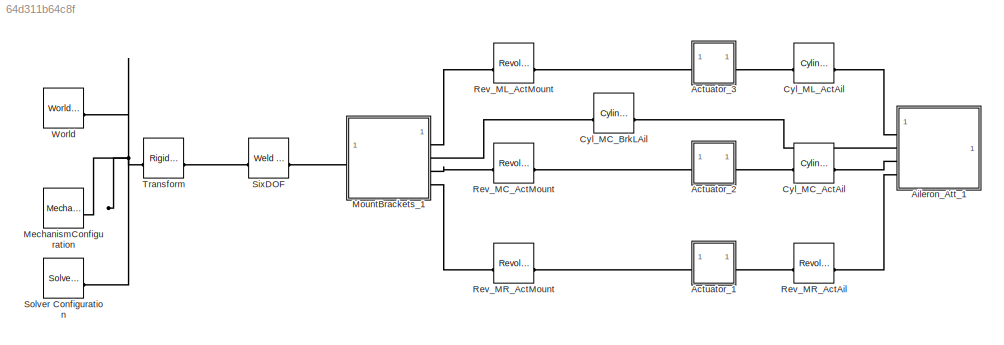
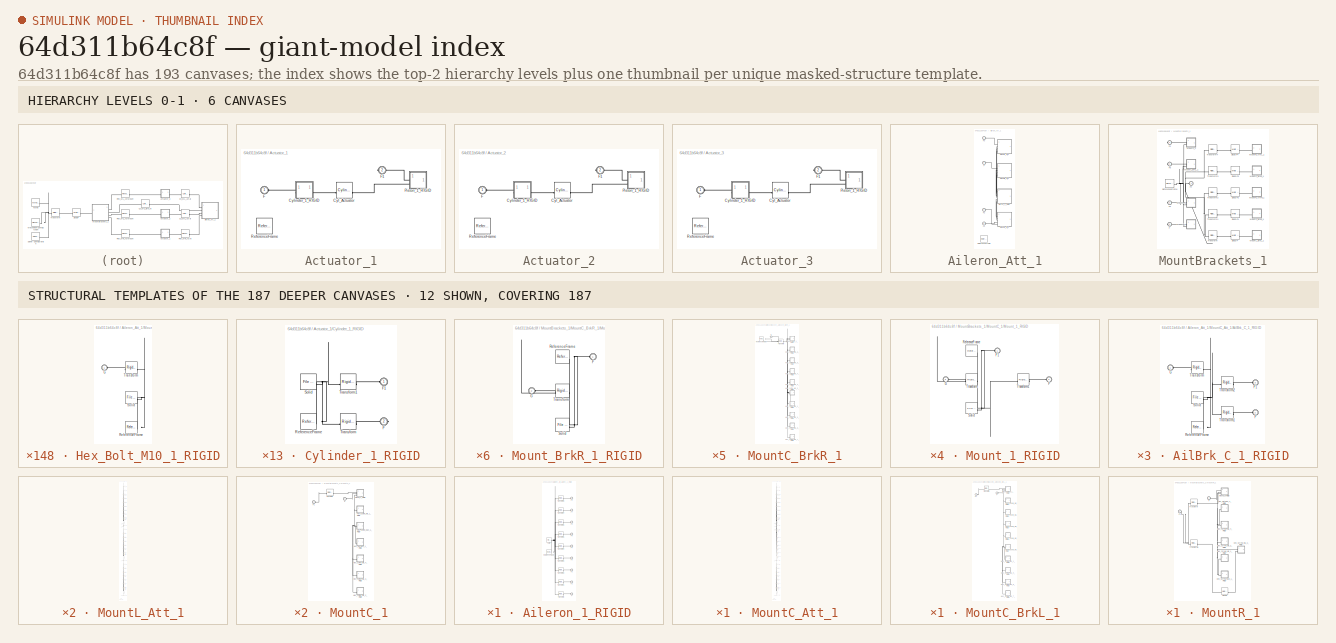
[diagram: thumbnail index - top-2 hierarchy levels (6 canvases) + 12 structural-template representatives of the remaining 187 canvases]
MODEL slx_64d311b64c8f
KIND model
CONFIG SolverName = VariableStepAuto
WORKSPACE source: external: MATLAB File  (data not in archive)
BLOCK [SubSystem] Actuator_1
BLOCK [Reference] Actuator_1/Cyl_Actuator  REF=sm_lib/Joints/Cylindrical
Joint
  SourceBlock = sm_lib/Joints/Cylindrical\nJoint
  SourceType = Cylindrical\nJoint
BLOCK [SubSystem] Actuator_1/Cylinder_1_RIGID
BLOCK [PMIOPort] Actuator_1/Cylinder_1_RIGID/F
  Port = 2
  Side = Right
BLOCK [PMIOPort] Actuator_1/Cylinder_1_RIGID/F1
  Side = Left
BLOCK [Reference] Actuator_1/Cylinder_1_RIGID/ReferenceFrame  REF=sm_lib/Frames and
Transforms/Reference
Frame
  SourceBlock = sm_lib/Frames and\nTransforms/Reference\nFrame
  SourceType = Reference\nFrame
BLOCK [Reference] Actuator_1/Cylinder_1_RIGID/Solid  REF=sm_lib/Body Elements/File Solid
  SourceBlock = sm_lib/Body Elements/File Solid
  SourceType = File Solid
BLOCK [Reference] Actuator_1/Cylinder_1_RIGID/Transform  REF=sm_lib/Frames and
Transforms/Rigid
Transform
  SourceBlock = sm_lib/Frames and\nTransforms/Rigid\nTransform
  SourceType = Rigid\nTransform
BLOCK [Reference] Actuator_1/Cylinder_1_RIGID/Transform1  REF=sm_lib/Frames and
Transforms/Rigid
Transform
  SourceBlock = sm_lib/Frames and\nTransforms/Rigid\nTransform
  SourceType = Rigid\nTransform
BLOCK [PMIOPort] Actuator_1/F
  Side = Left
BLOCK [PMIOPort] Actuator_1/F1
  Port = 2
  Side = Right
BLOCK [SubSystem] Actuator_1/Piston_1_RIGID
BLOCK [PMIOPort] Actuator_1/Piston_1_RIGID/F
  Port = 2
  Side = Left
BLOCK [PMIOPort] Actuator_1/Piston_1_RIGID/F1
  Side = Left
BLOCK [Reference] Actuator_1/Piston_1_RIGID/ReferenceFrame  REF=sm_lib/Frames and
Transforms/Reference
Frame
  SourceBlock = sm_lib/Frames and\nTransforms/Reference\nFrame
  SourceType = Reference\nFrame
BLOCK [Reference] Actuator_1/Piston_1_RIGID/Solid  REF=sm_lib/Body Elements/File Solid
  SourceBlock = sm_lib/Body Elements/File Solid
  SourceType = File Solid
BLOCK [Reference] Actuator_1/Piston_1_RIGID/Transform  REF=sm_lib/Frames and
Transforms/Rigid
Transform
  SourceBlock = sm_lib/Frames and\nTransforms/Rigid\nTransform
  SourceType = Rigid\nTransform
BLOCK [Reference] Actuator_1/Piston_1_RIGID/Transform1  REF=sm_lib/Frames and
Transforms/Rigid
Transform
  SourceBlock = sm_lib/Frames and\nTransforms/Rigid\nTransform
  SourceType = Rigid\nTransform
BLOCK [Reference] Actuator_1/ReferenceFrame  REF=sm_lib/Frames and
Transforms/Reference
Frame
  SourceBlock = sm_lib/Frames and\nTransforms/Reference\nFrame
  SourceType = Reference\nFrame
BLOCK [SubSystem] Actuator_2
BLOCK [Reference] Actuator_2/Cyl_Actuator  REF=sm_lib/Joints/Cylindrical
Joint
  SourceBlock = sm_lib/Joints/Cylindrical\nJoint
  SourceType = Cylindrical\nJoint
BLOCK [SubSystem] Actuator_2/Cylinder_1_RIGID
BLOCK [PMIOPort] Actuator_2/Cylinder_1_RIGID/F
  Port = 2
  Side = Right
BLOCK [PMIOPort] Actuator_2/Cylinder_1_RIGID/F1
  Side = Left
BLOCK [Reference] Actuator_2/Cylinder_1_RIGID/ReferenceFrame  REF=sm_lib/Frames and
Transforms/Reference
Frame
  SourceBlock = sm_lib/Frames and\nTransforms/Reference\nFrame
  SourceType = Reference\nFrame
BLOCK [Reference] Actuator_2/Cylinder_1_RIGID/Solid  REF=sm_lib/Body Elements/File Solid
  SourceBlock = sm_lib/Body Elements/File Solid
  SourceType = File Solid
BLOCK [Reference] Actuator_2/Cylinder_1_RIGID/Transform  REF=sm_lib/Frames and
Transforms/Rigid
Transform
  SourceBlock = sm_lib/Frames and\nTransforms/Rigid\nTransform
  SourceType = Rigid\nTransform
BLOCK [Reference] Actuator_2/Cylinder_1_RIGID/Transform1  REF=sm_lib/Frames and
Transforms/Rigid
Transform
  SourceBlock = sm_lib/Frames and\nTransforms/Rigid\nTransform
  SourceType = Rigid\nTransform
BLOCK [PMIOPort] Actuator_2/F
  Side = Left
BLOCK [PMIOPort] Actuator_2/F1
  Port = 2
  Side = Right
BLOCK [SubSystem] Actuator_2/Piston_1_RIGID
BLOCK [PMIOPort] Actuator_2/Piston_1_RIGID/F
  Port = 2
  Side = Left
BLOCK [PMIOPort] Actuator_2/Piston_1_RIGID/F1
  Side = Left
BLOCK [Reference] Actuator_2/Piston_1_RIGID/ReferenceFrame  REF=sm_lib/Frames and
Transforms/Reference
Frame
  SourceBlock = sm_lib/Frames and\nTransforms/Reference\nFrame
  SourceType = Reference\nFrame
BLOCK [Reference] Actuator_2/Piston_1_RIGID/Solid  REF=sm_lib/Body Elements/File Solid
  SourceBlock = sm_lib/Body Elements/File Solid
  SourceType = File Solid
BLOCK [Reference] Actuator_2/Piston_1_RIGID/Transform  REF=sm_lib/Frames and
Transforms/Rigid
Transform
  SourceBlock = sm_lib/Frames and\nTransforms/Rigid\nTransform
  SourceType = Rigid\nTransform
BLOCK [Reference] Actuator_2/Piston_1_RIGID/Transform1  REF=sm_lib/Frames and
Transforms/Rigid
Transform
  SourceBlock = sm_lib/Frames and\nTransforms/Rigid\nTransform
  SourceType = Rigid\nTransform
BLOCK [Reference] Actuator_2/ReferenceFrame  REF=sm_lib/Frames and
Transforms/Reference
Frame
  SourceBlock = sm_lib/Frames and\nTransforms/Reference\nFrame
  SourceType = Reference\nFrame
BLOCK [SubSystem] Actuator_3
BLOCK [Reference] Actuator_3/Cyl_Actuator  REF=sm_lib/Joints/Cylindrical
Joint
  SourceBlock = sm_lib/Joints/Cylindrical\nJoint
  SourceType = Cylindrical\nJoint
BLOCK [SubSystem] Actuator_3/Cylinder_1_RIGID
BLOCK [PMIOPort] Actuator_3/Cylinder_1_RIGID/F
  Port = 2
  Side = Right
BLOCK [PMIOPort] Actuator_3/Cylinder_1_RIGID/F1
  Side = Left
BLOCK [Reference] Actuator_3/Cylinder_1_RIGID/ReferenceFrame  REF=sm_lib/Frames and
Transforms/Reference
Frame
  SourceBlock = sm_lib/Frames and\nTransforms/Reference\nFrame
  SourceType = Reference\nFrame
BLOCK [Reference] Actuator_3/Cylinder_1_RIGID/Solid  REF=sm_lib/Body Elements/File Solid
  SourceBlock = sm_lib/Body Elements/File Solid
  SourceType = File Solid
BLOCK [Reference] Actuator_3/Cylinder_1_RIGID/Transform  REF=sm_lib/Frames and
Transforms/Rigid
Transform
  SourceBlock = sm_lib/Frames and\nTransforms/Rigid\nTransform
  SourceType = Rigid\nTransform
BLOCK [Reference] Actuator_3/Cylinder_1_RIGID/Transform1  REF=sm_lib/Frames and
Transforms/Rigid
Transform
  SourceBlock = sm_lib/Frames and\nTransforms/Rigid\nTransform
  SourceType = Rigid\nTransform
BLOCK [PMIOPort] Actuator_3/F
  Side = Left
BLOCK [PMIOPort] Actuator_3/F1
  Port = 2
  Side = Right
BLOCK [SubSystem] Actuator_3/Piston_1_RIGID
BLOCK [PMIOPort] Actuator_3/Piston_1_RIGID/F
  Port = 2
  Side = Left
BLOCK [PMIOPort] Actuator_3/Piston_1_RIGID/F1
  Side = Left
BLOCK [Reference] Actuator_3/Piston_1_RIGID/ReferenceFrame  REF=sm_lib/Frames and
Transforms/Reference
Frame
  SourceBlock = sm_lib/Frames and\nTransforms/Reference\nFrame
  SourceType = Reference\nFrame
BLOCK [Reference] Actuator_3/Piston_1_RIGID/Solid  REF=sm_lib/Body Elements/File Solid
  SourceBlock = sm_lib/Body Elements/File Solid
  SourceType = File Solid
BLOCK [Reference] Actuator_3/Piston_1_RIGID/Transform  REF=sm_lib/Frames and
Transforms/Rigid
Transform
  SourceBlock = sm_lib/Frames and\nTransforms/Rigid\nTransform
  SourceType = Rigid\nTransform
BLOCK [Reference] Actuator_3/Piston_1_RIGID/Transform1  REF=sm_lib/Frames and
Transforms/Rigid
Transform
  SourceBlock = sm_lib/Frames and\nTransforms/Rigid\nTransform
  SourceType = Rigid\nTransform
BLOCK [Reference] Actuator_3/ReferenceFrame  REF=sm_lib/Frames and
Transforms/Reference
Frame
  SourceBlock = sm_lib/Frames and\nTransforms/Reference\nFrame
  SourceType = Reference\nFrame
BLOCK [SubSystem] Aileron_Att_1
BLOCK [SubSystem] Aileron_Att_1/Aileron_1_RIGID
BLOCK [PMIOPort] Aileron_Att_1/Aileron_1_RIGID/F
  Port = 7
  Side = Left
BLOCK [PMIOPort] Aileron_Att_1/Aileron_1_RIGID/F1
  Port = 8
  Side = Left
BLOCK [PMIOPort] Aileron_Att_1/Aileron_1_RIGID/F2
  Port = 9
  Side = Left
BLOCK [PMIOPort] Aileron_Att_1/Aileron_1_RIGID/F3
  Port = 4
  Side = Left
BLOCK [PMIOPort] Aileron_Att_1/Aileron_1_RIGID/F4
  Port = 5
  Side = Left
BLOCK [PMIOPort] Aileron_Att_1/Aileron_1_RIGID/F5
  Port = 6
  Side = Left
BLOCK [PMIOPort] Aileron_Att_1/Aileron_1_RIGID/F6
  Side = Left
BLOCK [PMIOPort] Aileron_Att_1/Aileron_1_RIGID/F7
  Port = 2
  Side = Left
BLOCK [PMIOPort] Aileron_Att_1/Aileron_1_RIGID/F8
  Port = 3
  Side = Left
BLOCK [Reference] Aileron_Att_1/Aileron_1_RIGID/ReferenceFrame  REF=sm_lib/Frames and
Transforms/Reference
Frame
  SourceBlock = sm_lib/Frames and\nTransforms/Reference\nFrame
  SourceType = Reference\nFrame
BLOCK [Reference] Aileron_Att_1/Aileron_1_RIGID/Solid  REF=sm_lib/Body Elements/File Solid
  SourceBlock = sm_lib/Body Elements/File Solid
  SourceType = File Solid
BLOCK [Reference] Aileron_Att_1/Aileron_1_RIGID/Transform  REF=sm_lib/Frames and
Transforms/Rigid
Transform
  SourceBlock = sm_lib/Frames and\nTransforms/Rigid\nTransform
  SourceType = Rigid\nTransform
BLOCK [Reference] Aileron_Att_1/Aileron_1_RIGID/Transform1  REF=sm_lib/Frames and
Transforms/Rigid
Transform
  SourceBlock = sm_lib/Frames and\nTransforms/Rigid\nTransform
  SourceType = Rigid\nTransform
BLOCK [Reference] Aileron_Att_1/Aileron_1_RIGID/Transform2  REF=sm_lib/Frames and
Transforms/Rigid
Transform
  SourceBlock = sm_lib/Frames and\nTransforms/Rigid\nTransform
  SourceType = Rigid\nTransform
BLOCK [Reference] Aileron_Att_1/Aileron_1_RIGID/Transform3  REF=sm_lib/Frames and
Transforms/Rigid
Transform
  SourceBlock = sm_lib/Frames and\nTransforms/Rigid\nTransform
  SourceType = Rigid\nTransform
BLOCK [Reference] Aileron_Att_1/Aileron_1_RIGID/Transform4  REF=sm_lib/Frames and
Transforms/Rigid
Transform
  SourceBlock = sm_lib/Frames and\nTransforms/Rigid\nTransform
  SourceType = Rigid\nTransform
BLOCK [Reference] Aileron_Att_1/Aileron_1_RIGID/Transform5  REF=sm_lib/Frames and
Transforms/Rigid
Transform
  SourceBlock = sm_lib/Frames and\nTransforms/Rigid\nTransform
  SourceType = Rigid\nTransform
BLOCK [Reference] Aileron_Att_1/Aileron_1_RIGID/Transform6  REF=sm_lib/Frames and
Transforms/Rigid
Transform
  SourceBlock = sm_lib/Frames and\nTransforms/Rigid\nTransform
  SourceType = Rigid\nTransform
BLOCK [Reference] Aileron_Att_1/Aileron_1_RIGID/Transform7  REF=sm_lib/Frames and
Transforms/Rigid
Transform
  SourceBlock = sm_lib/Frames and\nTransforms/Rigid\nTransform
  SourceType = Rigid\nTransform
BLOCK [Reference] Aileron_Att_1/Aileron_1_RIGID/Transform8  REF=sm_lib/Frames and
Transforms/Rigid
Transform
  SourceBlock = sm_lib/Frames and\nTransforms/Rigid\nTransform
  SourceType = Rigid\nTransform
BLOCK [PMIOPort] Aileron_Att_1/F
  Port = 4
  Side = Left
BLOCK [PMIOPort] Aileron_Att_1/F1
  Port = 2
  Side = Left
BLOCK [PMIOPort] Aileron_Att_1/F2
  Port = 3
  Side = Left
BLOCK [PMIOPort] Aileron_Att_1/F3
  Side = Left
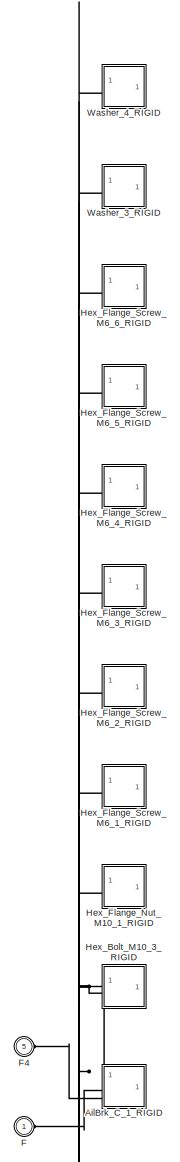
[diagram: Aileron_Att_1/MountC_Att_1 - part 1/3, full width, top band]
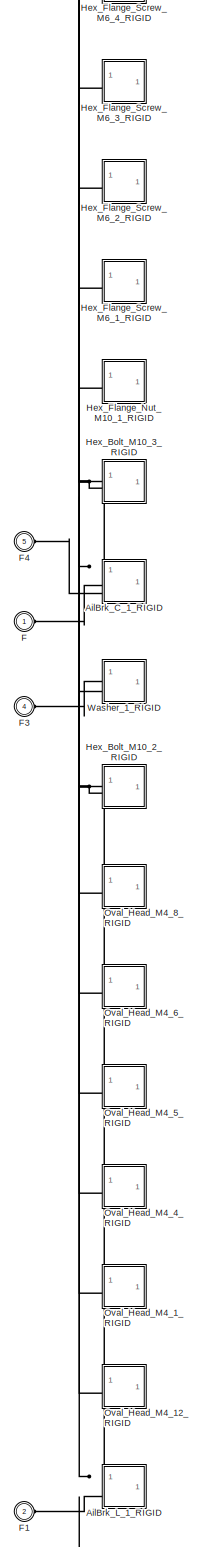
[diagram: Aileron_Att_1/MountC_Att_1 - part 2/3, full width, middle band]
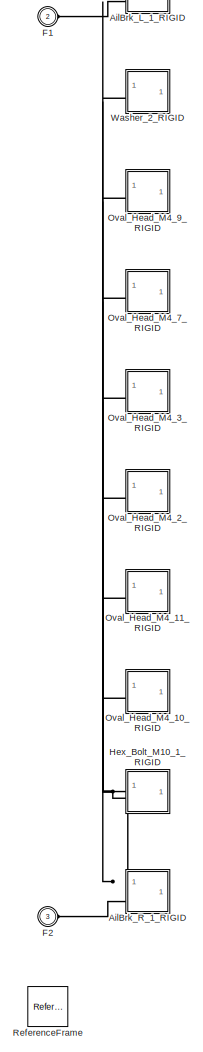
[diagram: Aileron_Att_1/MountC_Att_1 - part 3/3, full width, bottom band]
BLOCK [SubSystem] Aileron_Att_1/MountC_Att_1
BLOCK [SubSystem] Aileron_Att_1/MountC_Att_1/AilBrk_C_1_RIGID
BLOCK [PMIOPort] Aileron_Att_1/MountC_Att_1/AilBrk_C_1_RIGID/F
  Port = 2
  Side = Left
BLOCK [PMIOPort] Aileron_Att_1/MountC_Att_1/AilBrk_C_1_RIGID/F1
  Port = 3
  Side = Left
BLOCK [PMIOPort] Aileron_Att_1/MountC_Att_1/AilBrk_C_1_RIGID/G
  Side = Left
BLOCK [Reference] Aileron_Att_1/MountC_Att_1/AilBrk_C_1_RIGID/ReferenceFrame  REF=sm_lib/Frames and
Transforms/Reference
Frame
  SourceBlock = sm_lib/Frames and\nTransforms/Reference\nFrame
  SourceType = Reference\nFrame
BLOCK [Reference] Aileron_Att_1/MountC_Att_1/AilBrk_C_1_RIGID/Solid  REF=sm_lib/Body Elements/File Solid
  SourceBlock = sm_lib/Body Elements/File Solid
  SourceType = File Solid
BLOCK [Reference] Aileron_Att_1/MountC_Att_1/AilBrk_C_1_RIGID/Transform  REF=sm_lib/Frames and
Transforms/Rigid
Transform
  SourceBlock = sm_lib/Frames and\nTransforms/Rigid\nTransform
  SourceType = Rigid\nTransform
BLOCK [Reference] Aileron_Att_1/MountC_Att_1/AilBrk_C_1_RIGID/Transform1  REF=sm_lib/Frames and
Transforms/Rigid
Transform
  SourceBlock = sm_lib/Frames and\nTransforms/Rigid\nTransform
  SourceType = Rigid\nTransform
BLOCK [Reference] Aileron_Att_1/MountC_Att_1/AilBrk_C_1_RIGID/Transform2  REF=sm_lib/Frames and
Transforms/Rigid
Transform
  SourceBlock = sm_lib/Frames and\nTransforms/Rigid\nTransform
  SourceType = Rigid\nTransform
BLOCK [SubSystem] Aileron_Att_1/MountC_Att_1/AilBrk_L_1_RIGID
BLOCK [PMIOPort] Aileron_Att_1/MountC_Att_1/AilBrk_L_1_RIGID/F
  Port = 2
  Side = Left
BLOCK [PMIOPort] Aileron_Att_1/MountC_Att_1/AilBrk_L_1_RIGID/G
  Side = Left
BLOCK [Reference] Aileron_Att_1/MountC_Att_1/AilBrk_L_1_RIGID/ReferenceFrame  REF=sm_lib/Frames and
Transforms/Reference
Frame
  SourceBlock = sm_lib/Frames and\nTransforms/Reference\nFrame
  SourceType = Reference\nFrame
BLOCK [Reference] Aileron_Att_1/MountC_Att_1/AilBrk_L_1_RIGID/Solid  REF=sm_lib/Body Elements/File Solid
  SourceBlock = sm_lib/Body Elements/File Solid
  SourceType = File Solid
BLOCK [Reference] Aileron_Att_1/MountC_Att_1/AilBrk_L_1_RIGID/Transform  REF=sm_lib/Frames and
Transforms/Rigid
Transform
  SourceBlock = sm_lib/Frames and\nTransforms/Rigid\nTransform
  SourceType = Rigid\nTransform
BLOCK [Reference] Aileron_Att_1/MountC_Att_1/AilBrk_L_1_RIGID/Transform1  REF=sm_lib/Frames and
Transforms/Rigid
Transform
  SourceBlock = sm_lib/Frames and\nTransforms/Rigid\nTransform
  SourceType = Rigid\nTransform
BLOCK [SubSystem] Aileron_Att_1/MountC_Att_1/AilBrk_R_1_RIGID
BLOCK [PMIOPort] Aileron_Att_1/MountC_Att_1/AilBrk_R_1_RIGID/F
  Port = 2
  Side = Left
BLOCK [PMIOPort] Aileron_Att_1/MountC_Att_1/AilBrk_R_1_RIGID/G
  Side = Left
BLOCK [Reference] Aileron_Att_1/MountC_Att_1/AilBrk_R_1_RIGID/ReferenceFrame  REF=sm_lib/Frames and
Transforms/Reference
Frame
  SourceBlock = sm_lib/Frames and\nTransforms/Reference\nFrame
  SourceType = Reference\nFrame
BLOCK [Reference] Aileron_Att_1/MountC_Att_1/AilBrk_R_1_RIGID/Solid  REF=sm_lib/Body Elements/File Solid
  SourceBlock = sm_lib/Body Elements/File Solid
  SourceType = File Solid
BLOCK [Reference] Aileron_Att_1/MountC_Att_1/AilBrk_R_1_RIGID/Transform  REF=sm_lib/Frames and
Transforms/Rigid
Transform
  SourceBlock = sm_lib/Frames and\nTransforms/Rigid\nTransform
  SourceType = Rigid\nTransform
BLOCK [Reference] Aileron_Att_1/MountC_Att_1/AilBrk_R_1_RIGID/Transform1  REF=sm_lib/Frames and
Transforms/Rigid
Transform
  SourceBlock = sm_lib/Frames and\nTransforms/Rigid\nTransform
  SourceType = Rigid\nTransform
BLOCK [PMIOPort] Aileron_Att_1/MountC_Att_1/F
  Side = Left
BLOCK [PMIOPort] Aileron_Att_1/MountC_Att_1/F1
  Port = 2
  Side = Left
BLOCK [PMIOPort] Aileron_Att_1/MountC_Att_1/F2
  Port = 3
  Side = Left
BLOCK [PMIOPort] Aileron_Att_1/MountC_Att_1/F3
  Port = 4
  Side = Left
BLOCK [PMIOPort] Aileron_Att_1/MountC_Att_1/F4
  Port = 5
  Side = Left
BLOCK [SubSystem] Aileron_Att_1/MountC_Att_1/Hex_Bolt_M10_1_RIGID
BLOCK [PMIOPort] Aileron_Att_1/MountC_Att_1/Hex_Bolt_M10_1_RIGID/G
  Side = Left
BLOCK [Reference] Aileron_Att_1/MountC_Att_1/Hex_Bolt_M10_1_RIGID/ReferenceFrame  REF=sm_lib/Frames and
Transforms/Reference
Frame
  SourceBlock = sm_lib/Frames and\nTransforms/Reference\nFrame
  SourceType = Reference\nFrame
BLOCK [Reference] Aileron_Att_1/MountC_Att_1/Hex_Bolt_M10_1_RIGID/Solid  REF=sm_lib/Body Elements/File Solid
  SourceBlock = sm_lib/Body Elements/File Solid
  SourceType = File Solid
BLOCK [Reference] Aileron_Att_1/MountC_Att_1/Hex_Bolt_M10_1_RIGID/Transform  REF=sm_lib/Frames and
Transforms/Rigid
Transform
  SourceBlock = sm_lib/Frames and\nTransforms/Rigid\nTransform
  SourceType = Rigid\nTransform
BLOCK [SubSystem] Aileron_Att_1/MountC_Att_1/Hex_Bolt_M10_2_RIGID
BLOCK [PMIOPort] Aileron_Att_1/MountC_Att_1/Hex_Bolt_M10_2_RIGID/G
  Side = Left
BLOCK [Reference] Aileron_Att_1/MountC_Att_1/Hex_Bolt_M10_2_RIGID/ReferenceFrame  REF=sm_lib/Frames and
Transforms/Reference
Frame
  SourceBlock = sm_lib/Frames and\nTransforms/Reference\nFrame
  SourceType = Reference\nFrame
BLOCK [Reference] Aileron_Att_1/MountC_Att_1/Hex_Bolt_M10_2_RIGID/Solid  REF=sm_lib/Body Elements/File Solid
  SourceBlock = sm_lib/Body Elements/File Solid
  SourceType = File Solid
BLOCK [Reference] Aileron_Att_1/MountC_Att_1/Hex_Bolt_M10_2_RIGID/Transform  REF=sm_lib/Frames and
Transforms/Rigid
Transform
  SourceBlock = sm_lib/Frames and\nTransforms/Rigid\nTransform
  SourceType = Rigid\nTransform
BLOCK [SubSystem] Aileron_Att_1/MountC_Att_1/Hex_Bolt_M10_3_RIGID
BLOCK [PMIOPort] Aileron_Att_1/MountC_Att_1/Hex_Bolt_M10_3_RIGID/G
  Side = Left
BLOCK [Reference] Aileron_Att_1/MountC_Att_1/Hex_Bolt_M10_3_RIGID/ReferenceFrame  REF=sm_lib/Frames and
Transforms/Reference
Frame
  SourceBlock = sm_lib/Frames and\nTransforms/Reference\nFrame
  SourceType = Reference\nFrame
BLOCK [Reference] Aileron_Att_1/MountC_Att_1/Hex_Bolt_M10_3_RIGID/Solid  REF=sm_lib/Body Elements/File Solid
  SourceBlock = sm_lib/Body Elements/File Solid
  SourceType = File Solid
BLOCK [Reference] Aileron_Att_1/MountC_Att_1/Hex_Bolt_M10_3_RIGID/Transform  REF=sm_lib/Frames and
Transforms/Rigid
Transform
  SourceBlock = sm_lib/Frames and\nTransforms/Rigid\nTransform
  SourceType = Rigid\nTransform
BLOCK [SubSystem] Aileron_Att_1/MountC_Att_1/Hex_Flange_Nut_M10_1_RIGID
BLOCK [PMIOPort] Aileron_Att_1/MountC_Att_1/Hex_Flange_Nut_M10_1_RIGID/G
  Side = Left
BLOCK [Reference] Aileron_Att_1/MountC_Att_1/Hex_Flange_Nut_M10_1_RIGID/ReferenceFrame  REF=sm_lib/Frames and
Transforms/Reference
Frame
  SourceBlock = sm_lib/Frames and\nTransforms/Reference\nFrame
  SourceType = Reference\nFrame
BLOCK [Reference] Aileron_Att_1/MountC_Att_1/Hex_Flange_Nut_M10_1_RIGID/Solid  REF=sm_lib/Body Elements/File Solid
  SourceBlock = sm_lib/Body Elements/File Solid
  SourceType = File Solid
BLOCK [Reference] Aileron_Att_1/MountC_Att_1/Hex_Flange_Nut_M10_1_RIGID/Transform  REF=sm_lib/Frames and
Transforms/Rigid
Transform
  SourceBlock = sm_lib/Frames and\nTransforms/Rigid\nTransform
  SourceType = Rigid\nTransform
BLOCK [SubSystem] Aileron_Att_1/MountC_Att_1/Hex_Flange_Screw_M6_1_RIGID
BLOCK [PMIOPort] Aileron_Att_1/MountC_Att_1/Hex_Flange_Screw_M6_1_RIGID/G
  Side = Left
BLOCK [Reference] Aileron_Att_1/MountC_Att_1/Hex_Flange_Screw_M6_1_RIGID/ReferenceFrame  REF=sm_lib/Frames and
Transforms/Reference
Frame
  SourceBlock = sm_lib/Frames and\nTransforms/Reference\nFrame
  SourceType = Reference\nFrame
BLOCK [Reference] Aileron_Att_1/MountC_Att_1/Hex_Flange_Screw_M6_1_RIGID/Solid  REF=sm_lib/Body Elements/File Solid
  SourceBlock = sm_lib/Body Elements/File Solid
  SourceType = File Solid
BLOCK [Reference] Aileron_Att_1/MountC_Att_1/Hex_Flange_Screw_M6_1_RIGID/Transform  REF=sm_lib/Frames and
Transforms/Rigid
Transform
  SourceBlock = sm_lib/Frames and\nTransforms/Rigid\nTransform
  SourceType = Rigid\nTransform
BLOCK [SubSystem] Aileron_Att_1/MountC_Att_1/Hex_Flange_Screw_M6_2_RIGID
BLOCK [PMIOPort] Aileron_Att_1/MountC_Att_1/Hex_Flange_Screw_M6_2_RIGID/G
  Side = Left
BLOCK [Reference] Aileron_Att_1/MountC_Att_1/Hex_Flange_Screw_M6_2_RIGID/ReferenceFrame  REF=sm_lib/Frames and
Transforms/Reference
Frame
  SourceBlock = sm_lib/Frames and\nTransforms/Reference\nFrame
  SourceType = Reference\nFrame
BLOCK [Reference] Aileron_Att_1/MountC_Att_1/Hex_Flange_Screw_M6_2_RIGID/Solid  REF=sm_lib/Body Elements/File Solid
  SourceBlock = sm_lib/Body Elements/File Solid
  SourceType = File Solid
BLOCK [Reference] Aileron_Att_1/MountC_Att_1/Hex_Flange_Screw_M6_2_RIGID/Transform  REF=sm_lib/Frames and
Transforms/Rigid
Transform
  SourceBlock = sm_lib/Frames and\nTransforms/Rigid\nTransform
  SourceType = Rigid\nTransform
BLOCK [SubSystem] Aileron_Att_1/MountC_Att_1/Hex_Flange_Screw_M6_3_RIGID
BLOCK [PMIOPort] Aileron_Att_1/MountC_Att_1/Hex_Flange_Screw_M6_3_RIGID/G
  Side = Left
BLOCK [Reference] Aileron_Att_1/MountC_Att_1/Hex_Flange_Screw_M6_3_RIGID/ReferenceFrame  REF=sm_lib/Frames and
Transforms/Reference
Frame
  SourceBlock = sm_lib/Frames and\nTransforms/Reference\nFrame
  SourceType = Reference\nFrame
BLOCK [Reference] Aileron_Att_1/MountC_Att_1/Hex_Flange_Screw_M6_3_RIGID/Solid  REF=sm_lib/Body Elements/File Solid
  SourceBlock = sm_lib/Body Elements/File Solid
  SourceType = File Solid
BLOCK [Reference] Aileron_Att_1/MountC_Att_1/Hex_Flange_Screw_M6_3_RIGID/Transform  REF=sm_lib/Frames and
Transforms/Rigid
Transform
  SourceBlock = sm_lib/Frames and\nTransforms/Rigid\nTransform
  SourceType = Rigid\nTransform
BLOCK [SubSystem] Aileron_Att_1/MountC_Att_1/Hex_Flange_Screw_M6_4_RIGID
BLOCK [PMIOPort] Aileron_Att_1/MountC_Att_1/Hex_Flange_Screw_M6_4_RIGID/G
  Side = Left
BLOCK [Reference] Aileron_Att_1/MountC_Att_1/Hex_Flange_Screw_M6_4_RIGID/ReferenceFrame  REF=sm_lib/Frames and
Transforms/Reference
Frame
  SourceBlock = sm_lib/Frames and\nTransforms/Reference\nFrame
  SourceType = Reference\nFrame
BLOCK [Reference] Aileron_Att_1/MountC_Att_1/Hex_Flange_Screw_M6_4_RIGID/Solid  REF=sm_lib/Body Elements/File Solid
  SourceBlock = sm_lib/Body Elements/File Solid
  SourceType = File Solid
BLOCK [Reference] Aileron_Att_1/MountC_Att_1/Hex_Flange_Screw_M6_4_RIGID/Transform  REF=sm_lib/Frames and
Transforms/Rigid
Transform
  SourceBlock = sm_lib/Frames and\nTransforms/Rigid\nTransform
  SourceType = Rigid\nTransform
BLOCK [SubSystem] Aileron_Att_1/MountC_Att_1/Hex_Flange_Screw_M6_5_RIGID
BLOCK [PMIOPort] Aileron_Att_1/MountC_Att_1/Hex_Flange_Screw_M6_5_RIGID/G
  Side = Left
BLOCK [Reference] Aileron_Att_1/MountC_Att_1/Hex_Flange_Screw_M6_5_RIGID/ReferenceFrame  REF=sm_lib/Frames and
Transforms/Reference
Frame
  SourceBlock = sm_lib/Frames and\nTransforms/Reference\nFrame
  SourceType = Reference\nFrame
BLOCK [Reference] Aileron_Att_1/MountC_Att_1/Hex_Flange_Screw_M6_5_RIGID/Solid  REF=sm_lib/Body Elements/File Solid
  SourceBlock = sm_lib/Body Elements/File Solid
  SourceType = File Solid
BLOCK [Reference] Aileron_Att_1/MountC_Att_1/Hex_Flange_Screw_M6_5_RIGID/Transform  REF=sm_lib/Frames and
Transforms/Rigid
Transform
  SourceBlock = sm_lib/Frames and\nTransforms/Rigid\nTransform
  SourceType = Rigid\nTransform
BLOCK [SubSystem] Aileron_Att_1/MountC_Att_1/Hex_Flange_Screw_M6_6_RIGID
BLOCK [PMIOPort] Aileron_Att_1/MountC_Att_1/Hex_Flange_Screw_M6_6_RIGID/G
  Side = Left
BLOCK [Reference] Aileron_Att_1/MountC_Att_1/Hex_Flange_Screw_M6_6_RIGID/ReferenceFrame  REF=sm_lib/Frames and
Transforms/Reference
Frame
  SourceBlock = sm_lib/Frames and\nTransforms/Reference\nFrame
  SourceType = Reference\nFrame
BLOCK [Reference] Aileron_Att_1/MountC_Att_1/Hex_Flange_Screw_M6_6_RIGID/Solid  REF=sm_lib/Body Elements/File Solid
  SourceBlock = sm_lib/Body Elements/File Solid
  SourceType = File Solid
BLOCK [Reference] Aileron_Att_1/MountC_Att_1/Hex_Flange_Screw_M6_6_RIGID/Transform  REF=sm_lib/Frames and
Transforms/Rigid
Transform
  SourceBlock = sm_lib/Frames and\nTransforms/Rigid\nTransform
  SourceType = Rigid\nTransform
BLOCK [SubSystem] Aileron_Att_1/MountC_Att_1/Oval_Head_M4_10_RIGID
BLOCK [PMIOPort] Aileron_Att_1/MountC_Att_1/Oval_Head_M4_10_RIGID/G
  Side = Left
BLOCK [Reference] Aileron_Att_1/MountC_Att_1/Oval_Head_M4_10_RIGID/ReferenceFrame  REF=sm_lib/Frames and
Transforms/Reference
Frame
  SourceBlock = sm_lib/Frames and\nTransforms/Reference\nFrame
  SourceType = Reference\nFrame
BLOCK [Reference] Aileron_Att_1/MountC_Att_1/Oval_Head_M4_10_RIGID/Solid  REF=sm_lib/Body Elements/File Solid
  SourceBlock = sm_lib/Body Elements/File Solid
  SourceType = File Solid
BLOCK [Reference] Aileron_Att_1/MountC_Att_1/Oval_Head_M4_10_RIGID/Transform  REF=sm_lib/Frames and
Transforms/Rigid
Transform
  SourceBlock = sm_lib/Frames and\nTransforms/Rigid\nTransform
  SourceType = Rigid\nTransform
BLOCK [SubSystem] Aileron_Att_1/MountC_Att_1/Oval_Head_M4_11_RIGID
BLOCK [PMIOPort] Aileron_Att_1/MountC_Att_1/Oval_Head_M4_11_RIGID/G
  Side = Left
BLOCK [Reference] Aileron_Att_1/MountC_Att_1/Oval_Head_M4_11_RIGID/ReferenceFrame  REF=sm_lib/Frames and
Transforms/Reference
Frame
  SourceBlock = sm_lib/Frames and\nTransforms/Reference\nFrame
  SourceType = Reference\nFrame
BLOCK [Reference] Aileron_Att_1/MountC_Att_1/Oval_Head_M4_11_RIGID/Solid  REF=sm_lib/Body Elements/File Solid
  SourceBlock = sm_lib/Body Elements/File Solid
  SourceType = File Solid
BLOCK [Reference] Aileron_Att_1/MountC_Att_1/Oval_Head_M4_11_RIGID/Transform  REF=sm_lib/Frames and
Transforms/Rigid
Transform
  SourceBlock = sm_lib/Frames and\nTransforms/Rigid\nTransform
  SourceType = Rigid\nTransform
BLOCK [SubSystem] Aileron_Att_1/MountC_Att_1/Oval_Head_M4_12_RIGID
BLOCK [PMIOPort] Aileron_Att_1/MountC_Att_1/Oval_Head_M4_12_RIGID/G
  Side = Left
BLOCK [Reference] Aileron_Att_1/MountC_Att_1/Oval_Head_M4_12_RIGID/ReferenceFrame  REF=sm_lib/Frames and
Transforms/Reference
Frame
  SourceBlock = sm_lib/Frames and\nTransforms/Reference\nFrame
  SourceType = Reference\nFrame
BLOCK [Reference] Aileron_Att_1/MountC_Att_1/Oval_Head_M4_12_RIGID/Solid  REF=sm_lib/Body Elements/File Solid
  SourceBlock = sm_lib/Body Elements/File Solid
  SourceType = File Solid
BLOCK [Reference] Aileron_Att_1/MountC_Att_1/Oval_Head_M4_12_RIGID/Transform  REF=sm_lib/Frames and
Transforms/Rigid
Transform
  SourceBlock = sm_lib/Frames and\nTransforms/Rigid\nTransform
  SourceType = Rigid\nTransform
BLOCK [SubSystem] Aileron_Att_1/MountC_Att_1/Oval_Head_M4_1_RIGID
BLOCK [PMIOPort] Aileron_Att_1/MountC_Att_1/Oval_Head_M4_1_RIGID/G
  Side = Left
BLOCK [Reference] Aileron_Att_1/MountC_Att_1/Oval_Head_M4_1_RIGID/ReferenceFrame  REF=sm_lib/Frames and
Transforms/Reference
Frame
  SourceBlock = sm_lib/Frames and\nTransforms/Reference\nFrame
  SourceType = Reference\nFrame
BLOCK [Reference] Aileron_Att_1/MountC_Att_1/Oval_Head_M4_1_RIGID/Solid  REF=sm_lib/Body Elements/File Solid
  SourceBlock = sm_lib/Body Elements/File Solid
  SourceType = File Solid
BLOCK [Reference] Aileron_Att_1/MountC_Att_1/Oval_Head_M4_1_RIGID/Transform  REF=sm_lib/Frames and
Transforms/Rigid
Transform
  SourceBlock = sm_lib/Frames and\nTransforms/Rigid\nTransform
  SourceType = Rigid\nTransform
BLOCK [SubSystem] Aileron_Att_1/MountC_Att_1/Oval_Head_M4_2_RIGID
BLOCK [PMIOPort] Aileron_Att_1/MountC_Att_1/Oval_Head_M4_2_RIGID/G
  Side = Left
BLOCK [Reference] Aileron_Att_1/MountC_Att_1/Oval_Head_M4_2_RIGID/ReferenceFrame  REF=sm_lib/Frames and
Transforms/Reference
Frame
  SourceBlock = sm_lib/Frames and\nTransforms/Reference\nFrame
  SourceType = Reference\nFrame
BLOCK [Reference] Aileron_Att_1/MountC_Att_1/Oval_Head_M4_2_RIGID/Solid  REF=sm_lib/Body Elements/File Solid
  SourceBlock = sm_lib/Body Elements/File Solid
  SourceType = File Solid
BLOCK [Reference] Aileron_Att_1/MountC_Att_1/Oval_Head_M4_2_RIGID/Transform  REF=sm_lib/Frames and
Transforms/Rigid
Transform
  SourceBlock = sm_lib/Frames and\nTransforms/Rigid\nTransform
  SourceType = Rigid\nTransform
BLOCK [SubSystem] Aileron_Att_1/MountC_Att_1/Oval_Head_M4_3_RIGID
BLOCK [PMIOPort] Aileron_Att_1/MountC_Att_1/Oval_Head_M4_3_RIGID/G
  Side = Left
BLOCK [Reference] Aileron_Att_1/MountC_Att_1/Oval_Head_M4_3_RIGID/ReferenceFrame  REF=sm_lib/Frames and
Transforms/Reference
Frame
  SourceBlock = sm_lib/Frames and\nTransforms/Reference\nFrame
  SourceType = Reference\nFrame
BLOCK [Reference] Aileron_Att_1/MountC_Att_1/Oval_Head_M4_3_RIGID/Solid  REF=sm_lib/Body Elements/File Solid
  SourceBlock = sm_lib/Body Elements/File Solid
  SourceType = File Solid
BLOCK [Reference] Aileron_Att_1/MountC_Att_1/Oval_Head_M4_3_RIGID/Transform  REF=sm_lib/Frames and
Transforms/Rigid
Transform
  SourceBlock = sm_lib/Frames and\nTransforms/Rigid\nTransform
  SourceType = Rigid\nTransform
BLOCK [SubSystem] Aileron_Att_1/MountC_Att_1/Oval_Head_M4_4_RIGID
BLOCK [PMIOPort] Aileron_Att_1/MountC_Att_1/Oval_Head_M4_4_RIGID/G
  Side = Left
BLOCK [Reference] Aileron_Att_1/MountC_Att_1/Oval_Head_M4_4_RIGID/ReferenceFrame  REF=sm_lib/Frames and
Transforms/Reference
Frame
  SourceBlock = sm_lib/Frames and\nTransforms/Reference\nFrame
  SourceType = Reference\nFrame
BLOCK [Reference] Aileron_Att_1/MountC_Att_1/Oval_Head_M4_4_RIGID/Solid  REF=sm_lib/Body Elements/File Solid
  SourceBlock = sm_lib/Body Elements/File Solid
  SourceType = File Solid
BLOCK [Reference] Aileron_Att_1/MountC_Att_1/Oval_Head_M4_4_RIGID/Transform  REF=sm_lib/Frames and
Transforms/Rigid
Transform
  SourceBlock = sm_lib/Frames and\nTransforms/Rigid\nTransform
  SourceType = Rigid\nTransform
BLOCK [SubSystem] Aileron_Att_1/MountC_Att_1/Oval_Head_M4_5_RIGID
BLOCK [PMIOPort] Aileron_Att_1/MountC_Att_1/Oval_Head_M4_5_RIGID/G
  Side = Left
BLOCK [Reference] Aileron_Att_1/MountC_Att_1/Oval_Head_M4_5_RIGID/ReferenceFrame  REF=sm_lib/Frames and
Transforms/Reference
Frame
  SourceBlock = sm_lib/Frames and\nTransforms/Reference\nFrame
  SourceType = Reference\nFrame
BLOCK [Reference] Aileron_Att_1/MountC_Att_1/Oval_Head_M4_5_RIGID/Solid  REF=sm_lib/Body Elements/File Solid
  SourceBlock = sm_lib/Body Elements/File Solid
  SourceType = File Solid
BLOCK [Reference] Aileron_Att_1/MountC_Att_1/Oval_Head_M4_5_RIGID/Transform  REF=sm_lib/Frames and
Transforms/Rigid
Transform
  SourceBlock = sm_lib/Frames and\nTransforms/Rigid\nTransform
  SourceType = Rigid\nTransform
BLOCK [SubSystem] Aileron_Att_1/MountC_Att_1/Oval_Head_M4_6_RIGID
BLOCK [PMIOPort] Aileron_Att_1/MountC_Att_1/Oval_Head_M4_6_RIGID/G
  Side = Left
BLOCK [Reference] Aileron_Att_1/MountC_Att_1/Oval_Head_M4_6_RIGID/ReferenceFrame  REF=sm_lib/Frames and
Transforms/Reference
Frame
  SourceBlock = sm_lib/Frames and\nTransforms/Reference\nFrame
  SourceType = Reference\nFrame
BLOCK [Reference] Aileron_Att_1/MountC_Att_1/Oval_Head_M4_6_RIGID/Solid  REF=sm_lib/Body Elements/File Solid
  SourceBlock = sm_lib/Body Elements/File Solid
  SourceType = File Solid
BLOCK [Reference] Aileron_Att_1/MountC_Att_1/Oval_Head_M4_6_RIGID/Transform  REF=sm_lib/Frames and
Transforms/Rigid
Transform
  SourceBlock = sm_lib/Frames and\nTransforms/Rigid\nTransform
  SourceType = Rigid\nTransform
BLOCK [SubSystem] Aileron_Att_1/MountC_Att_1/Oval_Head_M4_7_RIGID
BLOCK [PMIOPort] Aileron_Att_1/MountC_Att_1/Oval_Head_M4_7_RIGID/G
  Side = Left
BLOCK [Reference] Aileron_Att_1/MountC_Att_1/Oval_Head_M4_7_RIGID/ReferenceFrame  REF=sm_lib/Frames and
Transforms/Reference
Frame
  SourceBlock = sm_lib/Frames and\nTransforms/Reference\nFrame
  SourceType = Reference\nFrame
BLOCK [Reference] Aileron_Att_1/MountC_Att_1/Oval_Head_M4_7_RIGID/Solid  REF=sm_lib/Body Elements/File Solid
  SourceBlock = sm_lib/Body Elements/File Solid
  SourceType = File Solid
BLOCK [Reference] Aileron_Att_1/MountC_Att_1/Oval_Head_M4_7_RIGID/Transform  REF=sm_lib/Frames and
Transforms/Rigid
Transform
  SourceBlock = sm_lib/Frames and\nTransforms/Rigid\nTransform
  SourceType = Rigid\nTransform
BLOCK [SubSystem] Aileron_Att_1/MountC_Att_1/Oval_Head_M4_8_RIGID
BLOCK [PMIOPort] Aileron_Att_1/MountC_Att_1/Oval_Head_M4_8_RIGID/G
  Side = Left
BLOCK [Reference] Aileron_Att_1/MountC_Att_1/Oval_Head_M4_8_RIGID/ReferenceFrame  REF=sm_lib/Frames and
Transforms/Reference
Frame
  SourceBlock = sm_lib/Frames and\nTransforms/Reference\nFrame
  SourceType = Reference\nFrame
BLOCK [Reference] Aileron_Att_1/MountC_Att_1/Oval_Head_M4_8_RIGID/Solid  REF=sm_lib/Body Elements/File Solid
  SourceBlock = sm_lib/Body Elements/File Solid
  SourceType = File Solid
BLOCK [Reference] Aileron_Att_1/MountC_Att_1/Oval_Head_M4_8_RIGID/Transform  REF=sm_lib/Frames and
Transforms/Rigid
Transform
  SourceBlock = sm_lib/Frames and\nTransforms/Rigid\nTransform
  SourceType = Rigid\nTransform
BLOCK [SubSystem] Aileron_Att_1/MountC_Att_1/Oval_Head_M4_9_RIGID
BLOCK [PMIOPort] Aileron_Att_1/MountC_Att_1/Oval_Head_M4_9_RIGID/G
  Side = Left
BLOCK [Reference] Aileron_Att_1/MountC_Att_1/Oval_Head_M4_9_RIGID/ReferenceFrame  REF=sm_lib/Frames and
Transforms/Reference
Frame
  SourceBlock = sm_lib/Frames and\nTransforms/Reference\nFrame
  SourceType = Reference\nFrame
BLOCK [Reference] Aileron_Att_1/MountC_Att_1/Oval_Head_M4_9_RIGID/Solid  REF=sm_lib/Body Elements/File Solid
  SourceBlock = sm_lib/Body Elements/File Solid
  SourceType = File Solid
BLOCK [Reference] Aileron_Att_1/MountC_Att_1/Oval_Head_M4_9_RIGID/Transform  REF=sm_lib/Frames and
Transforms/Rigid
Transform
  SourceBlock = sm_lib/Frames and\nTransforms/Rigid\nTransform
  SourceType = Rigid\nTransform
BLOCK [Reference] Aileron_Att_1/MountC_Att_1/ReferenceFrame  REF=sm_lib/Frames and
Transforms/Reference
Frame
  SourceBlock = sm_lib/Frames and\nTransforms/Reference\nFrame
  SourceType = Reference\nFrame
BLOCK [SubSystem] Aileron_Att_1/MountC_Att_1/Washer_1_RIGID
BLOCK [PMIOPort] Aileron_Att_1/MountC_Att_1/Washer_1_RIGID/F
  Side = Left
BLOCK [PMIOPort] Aileron_Att_1/MountC_Att_1/Washer_1_RIGID/G
  Port = 2
  Side = Left
BLOCK [Reference] Aileron_Att_1/MountC_Att_1/Washer_1_RIGID/ReferenceFrame  REF=sm_lib/Frames and
Transforms/Reference
Frame
  SourceBlock = sm_lib/Frames and\nTransforms/Reference\nFrame
  SourceType = Reference\nFrame
BLOCK [Reference] Aileron_Att_1/MountC_Att_1/Washer_1_RIGID/Solid  REF=sm_lib/Body Elements/File Solid
  SourceBlock = sm_lib/Body Elements/File Solid
  SourceType = File Solid
BLOCK [Reference] Aileron_Att_1/MountC_Att_1/Washer_1_RIGID/Transform  REF=sm_lib/Frames and
Transforms/Rigid
Transform
  SourceBlock = sm_lib/Frames and\nTransforms/Rigid\nTransform
  SourceType = Rigid\nTransform
BLOCK [Reference] Aileron_Att_1/MountC_Att_1/Washer_1_RIGID/Transform1  REF=sm_lib/Frames and
Transforms/Rigid
Transform
  SourceBlock = sm_lib/Frames and\nTransforms/Rigid\nTransform
  SourceType = Rigid\nTransform
BLOCK [SubSystem] Aileron_Att_1/MountC_Att_1/Washer_2_RIGID
BLOCK [PMIOPort] Aileron_Att_1/MountC_Att_1/Washer_2_RIGID/G
  Side = Left
BLOCK [Reference] Aileron_Att_1/MountC_Att_1/Washer_2_RIGID/ReferenceFrame  REF=sm_lib/Frames and
Transforms/Reference
Frame
  SourceBlock = sm_lib/Frames and\nTransforms/Reference\nFrame
  SourceType = Reference\nFrame
BLOCK [Reference] Aileron_Att_1/MountC_Att_1/Washer_2_RIGID/Solid  REF=sm_lib/Body Elements/File Solid
  SourceBlock = sm_lib/Body Elements/File Solid
  SourceType = File Solid
BLOCK [Reference] Aileron_Att_1/MountC_Att_1/Washer_2_RIGID/Transform  REF=sm_lib/Frames and
Transforms/Rigid
Transform
  SourceBlock = sm_lib/Frames and\nTransforms/Rigid\nTransform
  SourceType = Rigid\nTransform
BLOCK [SubSystem] Aileron_Att_1/MountC_Att_1/Washer_3_RIGID
BLOCK [PMIOPort] Aileron_Att_1/MountC_Att_1/Washer_3_RIGID/G
  Side = Left
BLOCK [Reference] Aileron_Att_1/MountC_Att_1/Washer_3_RIGID/ReferenceFrame  REF=sm_lib/Frames and
Transforms/Reference
Frame
  SourceBlock = sm_lib/Frames and\nTransforms/Reference\nFrame
  SourceType = Reference\nFrame
BLOCK [Reference] Aileron_Att_1/MountC_Att_1/Washer_3_RIGID/Solid  REF=sm_lib/Body Elements/File Solid
  SourceBlock = sm_lib/Body Elements/File Solid
  SourceType = File Solid
BLOCK [Reference] Aileron_Att_1/MountC_Att_1/Washer_3_RIGID/Transform  REF=sm_lib/Frames and
Transforms/Rigid
Transform
  SourceBlock = sm_lib/Frames and\nTransforms/Rigid\nTransform
  SourceType = Rigid\nTransform
BLOCK [SubSystem] Aileron_Att_1/MountC_Att_1/Washer_4_RIGID
BLOCK [PMIOPort] Aileron_Att_1/MountC_Att_1/Washer_4_RIGID/G
  Side = Left
BLOCK [Reference] Aileron_Att_1/MountC_Att_1/Washer_4_RIGID/ReferenceFrame  REF=sm_lib/Frames and
Transforms/Reference
Frame
  SourceBlock = sm_lib/Frames and\nTransforms/Reference\nFrame
  SourceType = Reference\nFrame
BLOCK [Reference] Aileron_Att_1/MountC_Att_1/Washer_4_RIGID/Solid  REF=sm_lib/Body Elements/File Solid
  SourceBlock = sm_lib/Body Elements/File Solid
  SourceType = File Solid
BLOCK [Reference] Aileron_Att_1/MountC_Att_1/Washer_4_RIGID/Transform  REF=sm_lib/Frames and
Transforms/Rigid
Transform
  SourceBlock = sm_lib/Frames and\nTransforms/Rigid\nTransform
  SourceType = Rigid\nTransform
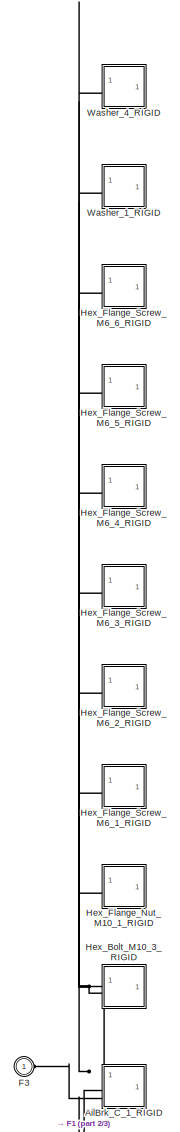
[diagram: Aileron_Att_1/MountL_Att_1 - part 1/3, full width, top band]
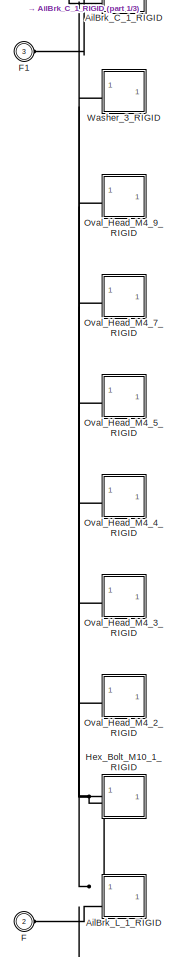
[diagram: Aileron_Att_1/MountL_Att_1 - part 2/3, full width, middle band]
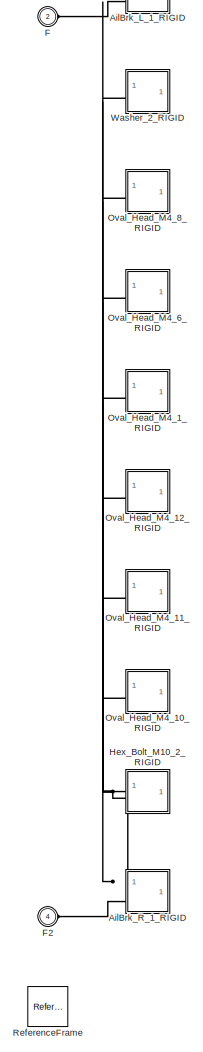
[diagram: Aileron_Att_1/MountL_Att_1 - part 3/3, full width, bottom band]
BLOCK [SubSystem] Aileron_Att_1/MountL_Att_1
BLOCK [SubSystem] Aileron_Att_1/MountL_Att_1/AilBrk_C_1_RIGID
BLOCK [PMIOPort] Aileron_Att_1/MountL_Att_1/AilBrk_C_1_RIGID/F
  Port = 2
  Side = Left
BLOCK [PMIOPort] Aileron_Att_1/MountL_Att_1/AilBrk_C_1_RIGID/F1
  Port = 3
  Side = Left
BLOCK [PMIOPort] Aileron_Att_1/MountL_Att_1/AilBrk_C_1_RIGID/G
  Side = Left
BLOCK [Reference] Aileron_Att_1/MountL_Att_1/AilBrk_C_1_RIGID/ReferenceFrame  REF=sm_lib/Frames and
Transforms/Reference
Frame
  SourceBlock = sm_lib/Frames and\nTransforms/Reference\nFrame
  SourceType = Reference\nFrame
BLOCK [Reference] Aileron_Att_1/MountL_Att_1/AilBrk_C_1_RIGID/Solid  REF=sm_lib/Body Elements/File Solid
  SourceBlock = sm_lib/Body Elements/File Solid
  SourceType = File Solid
BLOCK [Reference] Aileron_Att_1/MountL_Att_1/AilBrk_C_1_RIGID/Transform  REF=sm_lib/Frames and
Transforms/Rigid
Transform
  SourceBlock = sm_lib/Frames and\nTransforms/Rigid\nTransform
  SourceType = Rigid\nTransform
BLOCK [Reference] Aileron_Att_1/MountL_Att_1/AilBrk_C_1_RIGID/Transform1  REF=sm_lib/Frames and
Transforms/Rigid
Transform
  SourceBlock = sm_lib/Frames and\nTransforms/Rigid\nTransform
  SourceType = Rigid\nTransform
BLOCK [Reference] Aileron_Att_1/MountL_Att_1/AilBrk_C_1_RIGID/Transform2  REF=sm_lib/Frames and
Transforms/Rigid
Transform
  SourceBlock = sm_lib/Frames and\nTransforms/Rigid\nTransform
  SourceType = Rigid\nTransform
BLOCK [SubSystem] Aileron_Att_1/MountL_Att_1/AilBrk_L_1_RIGID
BLOCK [PMIOPort] Aileron_Att_1/MountL_Att_1/AilBrk_L_1_RIGID/F
  Port = 2
  Side = Left
BLOCK [PMIOPort] Aileron_Att_1/MountL_Att_1/AilBrk_L_1_RIGID/G
  Side = Left
BLOCK [Reference] Aileron_Att_1/MountL_Att_1/AilBrk_L_1_RIGID/ReferenceFrame  REF=sm_lib/Frames and
Transforms/Reference
Frame
  SourceBlock = sm_lib/Frames and\nTransforms/Reference\nFrame
  SourceType = Reference\nFrame
BLOCK [Reference] Aileron_Att_1/MountL_Att_1/AilBrk_L_1_RIGID/Solid  REF=sm_lib/Body Elements/File Solid
  SourceBlock = sm_lib/Body Elements/File Solid
  SourceType = File Solid
BLOCK [Reference] Aileron_Att_1/MountL_Att_1/AilBrk_L_1_RIGID/Transform  REF=sm_lib/Frames and
Transforms/Rigid
Transform
  SourceBlock = sm_lib/Frames and\nTransforms/Rigid\nTransform
  SourceType = Rigid\nTransform
BLOCK [Reference] Aileron_Att_1/MountL_Att_1/AilBrk_L_1_RIGID/Transform1  REF=sm_lib/Frames and
Transforms/Rigid
Transform
  SourceBlock = sm_lib/Frames and\nTransforms/Rigid\nTransform
  SourceType = Rigid\nTransform
BLOCK [SubSystem] Aileron_Att_1/MountL_Att_1/AilBrk_R_1_RIGID
BLOCK [PMIOPort] Aileron_Att_1/MountL_Att_1/AilBrk_R_1_RIGID/F
  Port = 2
  Side = Left
BLOCK [PMIOPort] Aileron_Att_1/MountL_Att_1/AilBrk_R_1_RIGID/G
  Side = Left
BLOCK [Reference] Aileron_Att_1/MountL_Att_1/AilBrk_R_1_RIGID/ReferenceFrame  REF=sm_lib/Frames and
Transforms/Reference
Frame
  SourceBlock = sm_lib/Frames and\nTransforms/Reference\nFrame
  SourceType = Reference\nFrame
BLOCK [Reference] Aileron_Att_1/MountL_Att_1/AilBrk_R_1_RIGID/Solid  REF=sm_lib/Body Elements/File Solid
  SourceBlock = sm_lib/Body Elements/File Solid
  SourceType = File Solid
BLOCK [Reference] Aileron_Att_1/MountL_Att_1/AilBrk_R_1_RIGID/Transform  REF=sm_lib/Frames and
Transforms/Rigid
Transform
  SourceBlock = sm_lib/Frames and\nTransforms/Rigid\nTransform
  SourceType = Rigid\nTransform
BLOCK [Reference] Aileron_Att_1/MountL_Att_1/AilBrk_R_1_RIGID/Transform1  REF=sm_lib/Frames and
Transforms/Rigid
Transform
  SourceBlock = sm_lib/Frames and\nTransforms/Rigid\nTransform
  SourceType = Rigid\nTransform
BLOCK [PMIOPort] Aileron_Att_1/MountL_Att_1/F
  Port = 2
  Side = Left
BLOCK [PMIOPort] Aileron_Att_1/MountL_Att_1/F1
  Port = 3
  Side = Left
BLOCK [PMIOPort] Aileron_Att_1/MountL_Att_1/F2
  Port = 4
  Side = Left
BLOCK [PMIOPort] Aileron_Att_1/MountL_Att_1/F3
  Side = Left
BLOCK [SubSystem] Aileron_Att_1/MountL_Att_1/Hex_Bolt_M10_1_RIGID
BLOCK [PMIOPort] Aileron_Att_1/MountL_Att_1/Hex_Bolt_M10_1_RIGID/G
  Side = Left
BLOCK [Reference] Aileron_Att_1/MountL_Att_1/Hex_Bolt_M10_1_RIGID/ReferenceFrame  REF=sm_lib/Frames and
Transforms/Reference
Frame
  SourceBlock = sm_lib/Frames and\nTransforms/Reference\nFrame
  SourceType = Reference\nFrame
BLOCK [Reference] Aileron_Att_1/MountL_Att_1/Hex_Bolt_M10_1_RIGID/Solid  REF=sm_lib/Body Elements/File Solid
  SourceBlock = sm_lib/Body Elements/File Solid
  SourceType = File Solid
BLOCK [Reference] Aileron_Att_1/MountL_Att_1/Hex_Bolt_M10_1_RIGID/Transform  REF=sm_lib/Frames and
Transforms/Rigid
Transform
  SourceBlock = sm_lib/Frames and\nTransforms/Rigid\nTransform
  SourceType = Rigid\nTransform
BLOCK [SubSystem] Aileron_Att_1/MountL_Att_1/Hex_Bolt_M10_2_RIGID
BLOCK [PMIOPort] Aileron_Att_1/MountL_Att_1/Hex_Bolt_M10_2_RIGID/G
  Side = Left
BLOCK [Reference] Aileron_Att_1/MountL_Att_1/Hex_Bolt_M10_2_RIGID/ReferenceFrame  REF=sm_lib/Frames and
Transforms/Reference
Frame
  SourceBlock = sm_lib/Frames and\nTransforms/Reference\nFrame
  SourceType = Reference\nFrame
BLOCK [Reference] Aileron_Att_1/MountL_Att_1/Hex_Bolt_M10_2_RIGID/Solid  REF=sm_lib/Body Elements/File Solid
  SourceBlock = sm_lib/Body Elements/File Solid
  SourceType = File Solid
BLOCK [Reference] Aileron_Att_1/MountL_Att_1/Hex_Bolt_M10_2_RIGID/Transform  REF=sm_lib/Frames and
Transforms/Rigid
Transform
  SourceBlock = sm_lib/Frames and\nTransforms/Rigid\nTransform
  SourceType = Rigid\nTransform
BLOCK [SubSystem] Aileron_Att_1/MountL_Att_1/Hex_Bolt_M10_3_RIGID
BLOCK [PMIOPort] Aileron_Att_1/MountL_Att_1/Hex_Bolt_M10_3_RIGID/G
  Side = Left
BLOCK [Reference] Aileron_Att_1/MountL_Att_1/Hex_Bolt_M10_3_RIGID/ReferenceFrame  REF=sm_lib/Frames and
Transforms/Reference
Frame
  SourceBlock = sm_lib/Frames and\nTransforms/Reference\nFrame
  SourceType = Reference\nFrame
BLOCK [Reference] Aileron_Att_1/MountL_Att_1/Hex_Bolt_M10_3_RIGID/Solid  REF=sm_lib/Body Elements/File Solid
  SourceBlock = sm_lib/Body Elements/File Solid
  SourceType = File Solid
BLOCK [Reference] Aileron_Att_1/MountL_Att_1/Hex_Bolt_M10_3_RIGID/Transform  REF=sm_lib/Frames and
Transforms/Rigid
Transform
  SourceBlock = sm_lib/Frames and\nTransforms/Rigid\nTransform
  SourceType = Rigid\nTransform
BLOCK [SubSystem] Aileron_Att_1/MountL_Att_1/Hex_Flange_Nut_M10_1_RIGID
BLOCK [PMIOPort] Aileron_Att_1/MountL_Att_1/Hex_Flange_Nut_M10_1_RIGID/G
  Side = Left
BLOCK [Reference] Aileron_Att_1/MountL_Att_1/Hex_Flange_Nut_M10_1_RIGID/ReferenceFrame  REF=sm_lib/Frames and
Transforms/Reference
Frame
  SourceBlock = sm_lib/Frames and\nTransforms/Reference\nFrame
  SourceType = Reference\nFrame
BLOCK [Reference] Aileron_Att_1/MountL_Att_1/Hex_Flange_Nut_M10_1_RIGID/Solid  REF=sm_lib/Body Elements/File Solid
  SourceBlock = sm_lib/Body Elements/File Solid
  SourceType = File Solid
BLOCK [Reference] Aileron_Att_1/MountL_Att_1/Hex_Flange_Nut_M10_1_RIGID/Transform  REF=sm_lib/Frames and
Transforms/Rigid
Transform
  SourceBlock = sm_lib/Frames and\nTransforms/Rigid\nTransform
  SourceType = Rigid\nTransform
BLOCK [SubSystem] Aileron_Att_1/MountL_Att_1/Hex_Flange_Screw_M6_1_RIGID
BLOCK [PMIOPort] Aileron_Att_1/MountL_Att_1/Hex_Flange_Screw_M6_1_RIGID/G
  Side = Left
BLOCK [Reference] Aileron_Att_1/MountL_Att_1/Hex_Flange_Screw_M6_1_RIGID/ReferenceFrame  REF=sm_lib/Frames and
Transforms/Reference
Frame
  SourceBlock = sm_lib/Frames and\nTransforms/Reference\nFrame
  SourceType = Reference\nFrame
BLOCK [Reference] Aileron_Att_1/MountL_Att_1/Hex_Flange_Screw_M6_1_RIGID/Solid  REF=sm_lib/Body Elements/File Solid
  SourceBlock = sm_lib/Body Elements/File Solid
  SourceType = File Solid
BLOCK [Reference] Aileron_Att_1/MountL_Att_1/Hex_Flange_Screw_M6_1_RIGID/Transform  REF=sm_lib/Frames and
Transforms/Rigid
Transform
  SourceBlock = sm_lib/Frames and\nTransforms/Rigid\nTransform
  SourceType = Rigid\nTransform
BLOCK [SubSystem] Aileron_Att_1/MountL_Att_1/Hex_Flange_Screw_M6_2_RIGID
BLOCK [PMIOPort] Aileron_Att_1/MountL_Att_1/Hex_Flange_Screw_M6_2_RIGID/G
  Side = Left
BLOCK [Reference] Aileron_Att_1/MountL_Att_1/Hex_Flange_Screw_M6_2_RIGID/ReferenceFrame  REF=sm_lib/Frames and
Transforms/Reference
Frame
  SourceBlock = sm_lib/Frames and\nTransforms/Reference\nFrame
  SourceType = Reference\nFrame
BLOCK [Reference] Aileron_Att_1/MountL_Att_1/Hex_Flange_Screw_M6_2_RIGID/Solid  REF=sm_lib/Body Elements/File Solid
  SourceBlock = sm_lib/Body Elements/File Solid
  SourceType = File Solid
BLOCK [Reference] Aileron_Att_1/MountL_Att_1/Hex_Flange_Screw_M6_2_RIGID/Transform  REF=sm_lib/Frames and
Transforms/Rigid
Transform
  SourceBlock = sm_lib/Frames and\nTransforms/Rigid\nTransform
  SourceType = Rigid\nTransform
BLOCK [SubSystem] Aileron_Att_1/MountL_Att_1/Hex_Flange_Screw_M6_3_RIGID
BLOCK [PMIOPort] Aileron_Att_1/MountL_Att_1/Hex_Flange_Screw_M6_3_RIGID/G
  Side = Left
BLOCK [Reference] Aileron_Att_1/MountL_Att_1/Hex_Flange_Screw_M6_3_RIGID/ReferenceFrame  REF=sm_lib/Frames and
Transforms/Reference
Frame
  SourceBlock = sm_lib/Frames and\nTransforms/Reference\nFrame
  SourceType = Reference\nFrame
BLOCK [Reference] Aileron_Att_1/MountL_Att_1/Hex_Flange_Screw_M6_3_RIGID/Solid  REF=sm_lib/Body Elements/File Solid
  SourceBlock = sm_lib/Body Elements/File Solid
  SourceType = File Solid
BLOCK [Reference] Aileron_Att_1/MountL_Att_1/Hex_Flange_Screw_M6_3_RIGID/Transform  REF=sm_lib/Frames and
Transforms/Rigid
Transform
  SourceBlock = sm_lib/Frames and\nTransforms/Rigid\nTransform
  SourceType = Rigid\nTransform
BLOCK [SubSystem] Aileron_Att_1/MountL_Att_1/Hex_Flange_Screw_M6_4_RIGID
BLOCK [PMIOPort] Aileron_Att_1/MountL_Att_1/Hex_Flange_Screw_M6_4_RIGID/G
  Side = Left
BLOCK [Reference] Aileron_Att_1/MountL_Att_1/Hex_Flange_Screw_M6_4_RIGID/ReferenceFrame  REF=sm_lib/Frames and
Transforms/Reference
Frame
  SourceBlock = sm_lib/Frames and\nTransforms/Reference\nFrame
  SourceType = Reference\nFrame
BLOCK [Reference] Aileron_Att_1/MountL_Att_1/Hex_Flange_Screw_M6_4_RIGID/Solid  REF=sm_lib/Body Elements/File Solid
  SourceBlock = sm_lib/Body Elements/File Solid
  SourceType = File Solid
BLOCK [Reference] Aileron_Att_1/MountL_Att_1/Hex_Flange_Screw_M6_4_RIGID/Transform  REF=sm_lib/Frames and
Transforms/Rigid
Transform
  SourceBlock = sm_lib/Frames and\nTransforms/Rigid\nTransform
  SourceType = Rigid\nTransform
BLOCK [SubSystem] Aileron_Att_1/MountL_Att_1/Hex_Flange_Screw_M6_5_RIGID
BLOCK [PMIOPort] Aileron_Att_1/MountL_Att_1/Hex_Flange_Screw_M6_5_RIGID/G
  Side = Left
BLOCK [Reference] Aileron_Att_1/MountL_Att_1/Hex_Flange_Screw_M6_5_RIGID/ReferenceFrame  REF=sm_lib/Frames and
Transforms/Reference
Frame
  SourceBlock = sm_lib/Frames and\nTransforms/Reference\nFrame
  SourceType = Reference\nFrame
BLOCK [Reference] Aileron_Att_1/MountL_Att_1/Hex_Flange_Screw_M6_5_RIGID/Solid  REF=sm_lib/Body Elements/File Solid
  SourceBlock = sm_lib/Body Elements/File Solid
  SourceType = File Solid
BLOCK [Reference] Aileron_Att_1/MountL_Att_1/Hex_Flange_Screw_M6_5_RIGID/Transform  REF=sm_lib/Frames and
Transforms/Rigid
Transform
  SourceBlock = sm_lib/Frames and\nTransforms/Rigid\nTransform
  SourceType = Rigid\nTransform
BLOCK [SubSystem] Aileron_Att_1/MountL_Att_1/Hex_Flange_Screw_M6_6_RIGID
BLOCK [PMIOPort] Aileron_Att_1/MountL_Att_1/Hex_Flange_Screw_M6_6_RIGID/G
  Side = Left
BLOCK [Reference] Aileron_Att_1/MountL_Att_1/Hex_Flange_Screw_M6_6_RIGID/ReferenceFrame  REF=sm_lib/Frames and
Transforms/Reference
Frame
  SourceBlock = sm_lib/Frames and\nTransforms/Reference\nFrame
  SourceType = Reference\nFrame
BLOCK [Reference] Aileron_Att_1/MountL_Att_1/Hex_Flange_Screw_M6_6_RIGID/Solid  REF=sm_lib/Body Elements/File Solid
  SourceBlock = sm_lib/Body Elements/File Solid
  SourceType = File Solid
BLOCK [Reference] Aileron_Att_1/MountL_Att_1/Hex_Flange_Screw_M6_6_RIGID/Transform  REF=sm_lib/Frames and
Transforms/Rigid
Transform
  SourceBlock = sm_lib/Frames and\nTransforms/Rigid\nTransform
  SourceType = Rigid\nTransform
BLOCK [SubSystem] Aileron_Att_1/MountL_Att_1/Oval_Head_M4_10_RIGID
BLOCK [PMIOPort] Aileron_Att_1/MountL_Att_1/Oval_Head_M4_10_RIGID/G
  Side = Left
BLOCK [Reference] Aileron_Att_1/MountL_Att_1/Oval_Head_M4_10_RIGID/ReferenceFrame  REF=sm_lib/Frames and
Transforms/Reference
Frame
  SourceBlock = sm_lib/Frames and\nTransforms/Reference\nFrame
  SourceType = Reference\nFrame
BLOCK [Reference] Aileron_Att_1/MountL_Att_1/Oval_Head_M4_10_RIGID/Solid  REF=sm_lib/Body Elements/File Solid
  SourceBlock = sm_lib/Body Elements/File Solid
  SourceType = File Solid
BLOCK [Reference] Aileron_Att_1/MountL_Att_1/Oval_Head_M4_10_RIGID/Transform  REF=sm_lib/Frames and
Transforms/Rigid
Transform
  SourceBlock = sm_lib/Frames and\nTransforms/Rigid\nTransform
  SourceType = Rigid\nTransform
BLOCK [SubSystem] Aileron_Att_1/MountL_Att_1/Oval_Head_M4_11_RIGID
BLOCK [PMIOPort] Aileron_Att_1/MountL_Att_1/Oval_Head_M4_11_RIGID/G
  Side = Left
BLOCK [Reference] Aileron_Att_1/MountL_Att_1/Oval_Head_M4_11_RIGID/ReferenceFrame  REF=sm_lib/Frames and
Transforms/Reference
Frame
  SourceBlock = sm_lib/Frames and\nTransforms/Reference\nFrame
  SourceType = Reference\nFrame
BLOCK [Reference] Aileron_Att_1/MountL_Att_1/Oval_Head_M4_11_RIGID/Solid  REF=sm_lib/Body Elements/File Solid
  SourceBlock = sm_lib/Body Elements/File Solid
  SourceType = File Solid
BLOCK [Reference] Aileron_Att_1/MountL_Att_1/Oval_Head_M4_11_RIGID/Transform  REF=sm_lib/Frames and
Transforms/Rigid
Transform
  SourceBlock = sm_lib/Frames and\nTransforms/Rigid\nTransform
  SourceType = Rigid\nTransform
BLOCK [SubSystem] Aileron_Att_1/MountL_Att_1/Oval_Head_M4_12_RIGID
BLOCK [PMIOPort] Aileron_Att_1/MountL_Att_1/Oval_Head_M4_12_RIGID/G
  Side = Left
BLOCK [Reference] Aileron_Att_1/MountL_Att_1/Oval_Head_M4_12_RIGID/ReferenceFrame  REF=sm_lib/Frames and
Transforms/Reference
Frame
  SourceBlock = sm_lib/Frames and\nTransforms/Reference\nFrame
  SourceType = Reference\nFrame
BLOCK [Reference] Aileron_Att_1/MountL_Att_1/Oval_Head_M4_12_RIGID/Solid  REF=sm_lib/Body Elements/File Solid
  SourceBlock = sm_lib/Body Elements/File Solid
  SourceType = File Solid
BLOCK [Reference] Aileron_Att_1/MountL_Att_1/Oval_Head_M4_12_RIGID/Transform  REF=sm_lib/Frames and
Transforms/Rigid
Transform
  SourceBlock = sm_lib/Frames and\nTransforms/Rigid\nTransform
  SourceType = Rigid\nTransform
BLOCK [SubSystem] Aileron_Att_1/MountL_Att_1/Oval_Head_M4_1_RIGID
BLOCK [PMIOPort] Aileron_Att_1/MountL_Att_1/Oval_Head_M4_1_RIGID/G
  Side = Left
BLOCK [Reference] Aileron_Att_1/MountL_Att_1/Oval_Head_M4_1_RIGID/ReferenceFrame  REF=sm_lib/Frames and
Transforms/Reference
Frame
  SourceBlock = sm_lib/Frames and\nTransforms/Reference\nFrame
  SourceType = Reference\nFrame
BLOCK [Reference] Aileron_Att_1/MountL_Att_1/Oval_Head_M4_1_RIGID/Solid  REF=sm_lib/Body Elements/File Solid
  SourceBlock = sm_lib/Body Elements/File Solid
  SourceType = File Solid
BLOCK [Reference] Aileron_Att_1/MountL_Att_1/Oval_Head_M4_1_RIGID/Transform  REF=sm_lib/Frames and
Transforms/Rigid
Transform
  SourceBlock = sm_lib/Frames and\nTransforms/Rigid\nTransform
  SourceType = Rigid\nTransform
BLOCK [SubSystem] Aileron_Att_1/MountL_Att_1/Oval_Head_M4_2_RIGID
BLOCK [PMIOPort] Aileron_Att_1/MountL_Att_1/Oval_Head_M4_2_RIGID/G
  Side = Left
BLOCK [Reference] Aileron_Att_1/MountL_Att_1/Oval_Head_M4_2_RIGID/ReferenceFrame  REF=sm_lib/Frames and
Transforms/Reference
Frame
  SourceBlock = sm_lib/Frames and\nTransforms/Reference\nFrame
  SourceType = Reference\nFrame
BLOCK [Reference] Aileron_Att_1/MountL_Att_1/Oval_Head_M4_2_RIGID/Solid  REF=sm_lib/Body Elements/File Solid
  SourceBlock = sm_lib/Body Elements/File Solid
  SourceType = File Solid
BLOCK [Reference] Aileron_Att_1/MountL_Att_1/Oval_Head_M4_2_RIGID/Transform  REF=sm_lib/Frames and
Transforms/Rigid
Transform
  SourceBlock = sm_lib/Frames and\nTransforms/Rigid\nTransform
  SourceType = Rigid\nTransform
BLOCK [SubSystem] Aileron_Att_1/MountL_Att_1/Oval_Head_M4_3_RIGID
BLOCK [PMIOPort] Aileron_Att_1/MountL_Att_1/Oval_Head_M4_3_RIGID/G
  Side = Left
BLOCK [Reference] Aileron_Att_1/MountL_Att_1/Oval_Head_M4_3_RIGID/ReferenceFrame  REF=sm_lib/Frames and
Transforms/Reference
Frame
  SourceBlock = sm_lib/Frames and\nTransforms/Reference\nFrame
  SourceType = Reference\nFrame
BLOCK [Reference] Aileron_Att_1/MountL_Att_1/Oval_Head_M4_3_RIGID/Solid  REF=sm_lib/Body Elements/File Solid
  SourceBlock = sm_lib/Body Elements/File Solid
  SourceType = File Solid
BLOCK [Reference] Aileron_Att_1/MountL_Att_1/Oval_Head_M4_3_RIGID/Transform  REF=sm_lib/Frames and
Transforms/Rigid
Transform
  SourceBlock = sm_lib/Frames and\nTransforms/Rigid\nTransform
  SourceType = Rigid\nTransform
BLOCK [SubSystem] Aileron_Att_1/MountL_Att_1/Oval_Head_M4_4_RIGID
BLOCK [PMIOPort] Aileron_Att_1/MountL_Att_1/Oval_Head_M4_4_RIGID/G
  Side = Left
BLOCK [Reference] Aileron_Att_1/MountL_Att_1/Oval_Head_M4_4_RIGID/ReferenceFrame  REF=sm_lib/Frames and
Transforms/Reference
Frame
  SourceBlock = sm_lib/Frames and\nTransforms/Reference\nFrame
  SourceType = Reference\nFrame
BLOCK [Reference] Aileron_Att_1/MountL_Att_1/Oval_Head_M4_4_RIGID/Solid  REF=sm_lib/Body Elements/File Solid
  SourceBlock = sm_lib/Body Elements/File Solid
  SourceType = File Solid
BLOCK [Reference] Aileron_Att_1/MountL_Att_1/Oval_Head_M4_4_RIGID/Transform  REF=sm_lib/Frames and
Transforms/Rigid
Transform
  SourceBlock = sm_lib/Frames and\nTransforms/Rigid\nTransform
  SourceType = Rigid\nTransform
BLOCK [SubSystem] Aileron_Att_1/MountL_Att_1/Oval_Head_M4_5_RIGID
BLOCK [PMIOPort] Aileron_Att_1/MountL_Att_1/Oval_Head_M4_5_RIGID/G
  Side = Left
BLOCK [Reference] Aileron_Att_1/MountL_Att_1/Oval_Head_M4_5_RIGID/ReferenceFrame  REF=sm_lib/Frames and
Transforms/Reference
Frame
  SourceBlock = sm_lib/Frames and\nTransforms/Reference\nFrame
  SourceType = Reference\nFrame
BLOCK [Reference] Aileron_Att_1/MountL_Att_1/Oval_Head_M4_5_RIGID/Solid  REF=sm_lib/Body Elements/File Solid
  SourceBlock = sm_lib/Body Elements/File Solid
  SourceType = File Solid
BLOCK [Reference] Aileron_Att_1/MountL_Att_1/Oval_Head_M4_5_RIGID/Transform  REF=sm_lib/Frames and
Transforms/Rigid
Transform
  SourceBlock = sm_lib/Frames and\nTransforms/Rigid\nTransform
  SourceType = Rigid\nTransform
BLOCK [SubSystem] Aileron_Att_1/MountL_Att_1/Oval_Head_M4_6_RIGID
BLOCK [PMIOPort] Aileron_Att_1/MountL_Att_1/Oval_Head_M4_6_RIGID/G
  Side = Left
BLOCK [Reference] Aileron_Att_1/MountL_Att_1/Oval_Head_M4_6_RIGID/ReferenceFrame  REF=sm_lib/Frames and
Transforms/Reference
Frame
  SourceBlock = sm_lib/Frames and\nTransforms/Reference\nFrame
  SourceType = Reference\nFrame
BLOCK [Reference] Aileron_Att_1/MountL_Att_1/Oval_Head_M4_6_RIGID/Solid  REF=sm_lib/Body Elements/File Solid
  SourceBlock = sm_lib/Body Elements/File Solid
  SourceType = File Solid
BLOCK [Reference] Aileron_Att_1/MountL_Att_1/Oval_Head_M4_6_RIGID/Transform  REF=sm_lib/Frames and
Transforms/Rigid
Transform
  SourceBlock = sm_lib/Frames and\nTransforms/Rigid\nTransform
  SourceType = Rigid\nTransform
BLOCK [SubSystem] Aileron_Att_1/MountL_Att_1/Oval_Head_M4_7_RIGID
BLOCK [PMIOPort] Aileron_Att_1/MountL_Att_1/Oval_Head_M4_7_RIGID/G
  Side = Left
BLOCK [Reference] Aileron_Att_1/MountL_Att_1/Oval_Head_M4_7_RIGID/ReferenceFrame  REF=sm_lib/Frames and
Transforms/Reference
Frame
  SourceBlock = sm_lib/Frames and\nTransforms/Reference\nFrame
  SourceType = Reference\nFrame
BLOCK [Reference] Aileron_Att_1/MountL_Att_1/Oval_Head_M4_7_RIGID/Solid  REF=sm_lib/Body Elements/File Solid
  SourceBlock = sm_lib/Body Elements/File Solid
  SourceType = File Solid
BLOCK [Reference] Aileron_Att_1/MountL_Att_1/Oval_Head_M4_7_RIGID/Transform  REF=sm_lib/Frames and
Transforms/Rigid
Transform
  SourceBlock = sm_lib/Frames and\nTransforms/Rigid\nTransform
  SourceType = Rigid\nTransform
BLOCK [SubSystem] Aileron_Att_1/MountL_Att_1/Oval_Head_M4_8_RIGID
BLOCK [PMIOPort] Aileron_Att_1/MountL_Att_1/Oval_Head_M4_8_RIGID/G
  Side = Left
BLOCK [Reference] Aileron_Att_1/MountL_Att_1/Oval_Head_M4_8_RIGID/ReferenceFrame  REF=sm_lib/Frames and
Transforms/Reference
Frame
  SourceBlock = sm_lib/Frames and\nTransforms/Reference\nFrame
  SourceType = Reference\nFrame
BLOCK [Reference] Aileron_Att_1/MountL_Att_1/Oval_Head_M4_8_RIGID/Solid  REF=sm_lib/Body Elements/File Solid
  SourceBlock = sm_lib/Body Elements/File Solid
  SourceType = File Solid
BLOCK [Reference] Aileron_Att_1/MountL_Att_1/Oval_Head_M4_8_RIGID/Transform  REF=sm_lib/Frames and
Transforms/Rigid
Transform
  SourceBlock = sm_lib/Frames and\nTransforms/Rigid\nTransform
  SourceType = Rigid\nTransform
BLOCK [SubSystem] Aileron_Att_1/MountL_Att_1/Oval_Head_M4_9_RIGID
BLOCK [PMIOPort] Aileron_Att_1/MountL_Att_1/Oval_Head_M4_9_RIGID/G
  Side = Left
BLOCK [Reference] Aileron_Att_1/MountL_Att_1/Oval_Head_M4_9_RIGID/ReferenceFrame  REF=sm_lib/Frames and
Transforms/Reference
Frame
  SourceBlock = sm_lib/Frames and\nTransforms/Reference\nFrame
  SourceType = Reference\nFrame
BLOCK [Reference] Aileron_Att_1/MountL_Att_1/Oval_Head_M4_9_RIGID/Solid  REF=sm_lib/Body Elements/File Solid
  SourceBlock = sm_lib/Body Elements/File Solid
  SourceType = File Solid
BLOCK [Reference] Aileron_Att_1/MountL_Att_1/Oval_Head_M4_9_RIGID/Transform  REF=sm_lib/Frames and
Transforms/Rigid
Transform
  SourceBlock = sm_lib/Frames and\nTransforms/Rigid\nTransform
  SourceType = Rigid\nTransform
BLOCK [Reference] Aileron_Att_1/MountL_Att_1/ReferenceFrame  REF=sm_lib/Frames and
Transforms/Reference
Frame
  SourceBlock = sm_lib/Frames and\nTransforms/Reference\nFrame
  SourceType = Reference\nFrame
BLOCK [SubSystem] Aileron_Att_1/MountL_Att_1/Washer_1_RIGID
BLOCK [PMIOPort] Aileron_Att_1/MountL_Att_1/Washer_1_RIGID/G
  Side = Left
BLOCK [Reference] Aileron_Att_1/MountL_Att_1/Washer_1_RIGID/ReferenceFrame  REF=sm_lib/Frames and
Transforms/Reference
Frame
  SourceBlock = sm_lib/Frames and\nTransforms/Reference\nFrame
  SourceType = Reference\nFrame
BLOCK [Reference] Aileron_Att_1/MountL_Att_1/Washer_1_RIGID/Solid  REF=sm_lib/Body Elements/File Solid
  SourceBlock = sm_lib/Body Elements/File Solid
  SourceType = File Solid
BLOCK [Reference] Aileron_Att_1/MountL_Att_1/Washer_1_RIGID/Transform  REF=sm_lib/Frames and
Transforms/Rigid
Transform
  SourceBlock = sm_lib/Frames and\nTransforms/Rigid\nTransform
  SourceType = Rigid\nTransform
BLOCK [SubSystem] Aileron_Att_1/MountL_Att_1/Washer_2_RIGID
BLOCK [PMIOPort] Aileron_Att_1/MountL_Att_1/Washer_2_RIGID/G
  Side = Left
BLOCK [Reference] Aileron_Att_1/MountL_Att_1/Washer_2_RIGID/ReferenceFrame  REF=sm_lib/Frames and
Transforms/Reference
Frame
  SourceBlock = sm_lib/Frames and\nTransforms/Reference\nFrame
  SourceType = Reference\nFrame
BLOCK [Reference] Aileron_Att_1/MountL_Att_1/Washer_2_RIGID/Solid  REF=sm_lib/Body Elements/File Solid
  SourceBlock = sm_lib/Body Elements/File Solid
  SourceType = File Solid
BLOCK [Reference] Aileron_Att_1/MountL_Att_1/Washer_2_RIGID/Transform  REF=sm_lib/Frames and
Transforms/Rigid
Transform
  SourceBlock = sm_lib/Frames and\nTransforms/Rigid\nTransform
  SourceType = Rigid\nTransform
BLOCK [SubSystem] Aileron_Att_1/MountL_Att_1/Washer_3_RIGID
BLOCK [PMIOPort] Aileron_Att_1/MountL_Att_1/Washer_3_RIGID/G
  Side = Left
BLOCK [Reference] Aileron_Att_1/MountL_Att_1/Washer_3_RIGID/ReferenceFrame  REF=sm_lib/Frames and
Transforms/Reference
Frame
  SourceBlock = sm_lib/Frames and\nTransforms/Reference\nFrame
  SourceType = Reference\nFrame
BLOCK [Reference] Aileron_Att_1/MountL_Att_1/Washer_3_RIGID/Solid  REF=sm_lib/Body Elements/File Solid
  SourceBlock = sm_lib/Body Elements/File Solid
  SourceType = File Solid
BLOCK [Reference] Aileron_Att_1/MountL_Att_1/Washer_3_RIGID/Transform  REF=sm_lib/Frames and
Transforms/Rigid
Transform
  SourceBlock = sm_lib/Frames and\nTransforms/Rigid\nTransform
  SourceType = Rigid\nTransform
BLOCK [SubSystem] Aileron_Att_1/MountL_Att_1/Washer_4_RIGID
BLOCK [PMIOPort] Aileron_Att_1/MountL_Att_1/Washer_4_RIGID/G
  Side = Left
BLOCK [Reference] Aileron_Att_1/MountL_Att_1/Washer_4_RIGID/ReferenceFrame  REF=sm_lib/Frames and
Transforms/Reference
Frame
  SourceBlock = sm_lib/Frames and\nTransforms/Reference\nFrame
  SourceType = Reference\nFrame
BLOCK [Reference] Aileron_Att_1/MountL_Att_1/Washer_4_RIGID/Solid  REF=sm_lib/Body Elements/File Solid
  SourceBlock = sm_lib/Body Elements/File Solid
  SourceType = File Solid
BLOCK [Reference] Aileron_Att_1/MountL_Att_1/Washer_4_RIGID/Transform  REF=sm_lib/Frames and
Transforms/Rigid
Transform
  SourceBlock = sm_lib/Frames and\nTransforms/Rigid\nTransform
  SourceType = Rigid\nTransform
BLOCK [SubSystem] Aileron_Att_1/MountR_Att_1
BLOCK [SubSystem] Aileron_Att_1/MountR_Att_1/AilBrk_C_1_RIGID
BLOCK [PMIOPort] Aileron_Att_1/MountR_Att_1/AilBrk_C_1_RIGID/F
  Port = 2
  Side = Left
BLOCK [PMIOPort] Aileron_Att_1/MountR_Att_1/AilBrk_C_1_RIGID/F1
  Port = 3
  Side = Left
BLOCK [PMIOPort] Aileron_Att_1/MountR_Att_1/AilBrk_C_1_RIGID/G
  Side = Left
BLOCK [Reference] Aileron_Att_1/MountR_Att_1/AilBrk_C_1_RIGID/ReferenceFrame  REF=sm_lib/Frames and
Transforms/Reference
Frame
  SourceBlock = sm_lib/Frames and\nTransforms/Reference\nFrame
  SourceType = Reference\nFrame
BLOCK [Reference] Aileron_Att_1/MountR_Att_1/AilBrk_C_1_RIGID/Solid  REF=sm_lib/Body Elements/File Solid
  SourceBlock = sm_lib/Body Elements/File Solid
  SourceType = File Solid
BLOCK [Reference] Aileron_Att_1/MountR_Att_1/AilBrk_C_1_RIGID/Transform  REF=sm_lib/Frames and
Transforms/Rigid
Transform
  SourceBlock = sm_lib/Frames and\nTransforms/Rigid\nTransform
  SourceType = Rigid\nTransform
BLOCK [Reference] Aileron_Att_1/MountR_Att_1/AilBrk_C_1_RIGID/Transform1  REF=sm_lib/Frames and
Transforms/Rigid
Transform
  SourceBlock = sm_lib/Frames and\nTransforms/Rigid\nTransform
  SourceType = Rigid\nTransform
BLOCK [Reference] Aileron_Att_1/MountR_Att_1/AilBrk_C_1_RIGID/Transform2  REF=sm_lib/Frames and
Transforms/Rigid
Transform
  SourceBlock = sm_lib/Frames and\nTransforms/Rigid\nTransform
  SourceType = Rigid\nTransform
BLOCK [SubSystem] Aileron_Att_1/MountR_Att_1/AilBrk_L_1_RIGID
BLOCK [PMIOPort] Aileron_Att_1/MountR_Att_1/AilBrk_L_1_RIGID/F
  Port = 2
  Side = Left
BLOCK [PMIOPort] Aileron_Att_1/MountR_Att_1/AilBrk_L_1_RIGID/G
  Side = Left
BLOCK [Reference] Aileron_Att_1/MountR_Att_1/AilBrk_L_1_RIGID/ReferenceFrame  REF=sm_lib/Frames and
Transforms/Reference
Frame
  SourceBlock = sm_lib/Frames and\nTransforms/Reference\nFrame
  SourceType = Reference\nFrame
BLOCK [Reference] Aileron_Att_1/MountR_Att_1/AilBrk_L_1_RIGID/Solid  REF=sm_lib/Body Elements/File Solid
  SourceBlock = sm_lib/Body Elements/File Solid
  SourceType = File Solid
BLOCK [Reference] Aileron_Att_1/MountR_Att_1/AilBrk_L_1_RIGID/Transform  REF=sm_lib/Frames and
Transforms/Rigid
Transform
  SourceBlock = sm_lib/Frames and\nTransforms/Rigid\nTransform
  SourceType = Rigid\nTransform
BLOCK [Reference] Aileron_Att_1/MountR_Att_1/AilBrk_L_1_RIGID/Transform1  REF=sm_lib/Frames and
Transforms/Rigid
Transform
  SourceBlock = sm_lib/Frames and\nTransforms/Rigid\nTransform
  SourceType = Rigid\nTransform
BLOCK [SubSystem] Aileron_Att_1/MountR_Att_1/AilBrk_R_1_RIGID
BLOCK [PMIOPort] Aileron_Att_1/MountR_Att_1/AilBrk_R_1_RIGID/F
  Port = 2
  Side = Left
BLOCK [PMIOPort] Aileron_Att_1/MountR_Att_1/AilBrk_R_1_RIGID/G
  Side = Left
BLOCK [Reference] Aileron_Att_1/MountR_Att_1/AilBrk_R_1_RIGID/ReferenceFrame  REF=sm_lib/Frames and
Transforms/Reference
Frame
  SourceBlock = sm_lib/Frames and\nTransforms/Reference\nFrame
  SourceType = Reference\nFrame
BLOCK [Reference] Aileron_Att_1/MountR_Att_1/AilBrk_R_1_RIGID/Solid  REF=sm_lib/Body Elements/File Solid
  SourceBlock = sm_lib/Body Elements/File Solid
  SourceType = File Solid
BLOCK [Reference] Aileron_Att_1/MountR_Att_1/AilBrk_R_1_RIGID/Transform  REF=sm_lib/Frames and
Transforms/Rigid
Transform
  SourceBlock = sm_lib/Frames and\nTransforms/Rigid\nTransform
  SourceType = Rigid\nTransform
BLOCK [Reference] Aileron_Att_1/MountR_Att_1/AilBrk_R_1_RIGID/Transform1  REF=sm_lib/Frames and
Transforms/Rigid
Transform
  SourceBlock = sm_lib/Frames and\nTransforms/Rigid\nTransform
  SourceType = Rigid\nTransform
BLOCK [PMIOPort] Aileron_Att_1/MountR_Att_1/F
  Port = 2
  Side = Left
BLOCK [PMIOPort] Aileron_Att_1/MountR_Att_1/F1
  Port = 3
  Side = Left
BLOCK [PMIOPort] Aileron_Att_1/MountR_Att_1/F2
  Port = 4
  Side = Left
BLOCK [PMIOPort] Aileron_Att_1/MountR_Att_1/F3
  Side = Left
BLOCK [SubSystem] Aileron_Att_1/MountR_Att_1/Hex_Bolt_M10_1_RIGID
BLOCK [PMIOPort] Aileron_Att_1/MountR_Att_1/Hex_Bolt_M10_1_RIGID/G
  Side = Left
BLOCK [Reference] Aileron_Att_1/MountR_Att_1/Hex_Bolt_M10_1_RIGID/ReferenceFrame  REF=sm_lib/Frames and
Transforms/Reference
Frame
  SourceBlock = sm_lib/Frames and\nTransforms/Reference\nFrame
  SourceType = Reference\nFrame
BLOCK [Reference] Aileron_Att_1/MountR_Att_1/Hex_Bolt_M10_1_RIGID/Solid  REF=sm_lib/Body Elements/File Solid
  SourceBlock = sm_lib/Body Elements/File Solid
  SourceType = File Solid
BLOCK [Reference] Aileron_Att_1/MountR_Att_1/Hex_Bolt_M10_1_RIGID/Transform  REF=sm_lib/Frames and
Transforms/Rigid
Transform
  SourceBlock = sm_lib/Frames and\nTransforms/Rigid\nTransform
  SourceType = Rigid\nTransform
BLOCK [SubSystem] Aileron_Att_1/MountR_Att_1/Hex_Bolt_M10_2_RIGID
BLOCK [PMIOPort] Aileron_Att_1/MountR_Att_1/Hex_Bolt_M10_2_RIGID/G
  Side = Left
BLOCK [Reference] Aileron_Att_1/MountR_Att_1/Hex_Bolt_M10_2_RIGID/ReferenceFrame  REF=sm_lib/Frames and
Transforms/Reference
Frame
  SourceBlock = sm_lib/Frames and\nTransforms/Reference\nFrame
  SourceType = Reference\nFrame
BLOCK [Reference] Aileron_Att_1/MountR_Att_1/Hex_Bolt_M10_2_RIGID/Solid  REF=sm_lib/Body Elements/File Solid
  SourceBlock = sm_lib/Body Elements/File Solid
  SourceType = File Solid
BLOCK [Reference] Aileron_Att_1/MountR_Att_1/Hex_Bolt_M10_2_RIGID/Transform  REF=sm_lib/Frames and
Transforms/Rigid
Transform
  SourceBlock = sm_lib/Frames and\nTransforms/Rigid\nTransform
  SourceType = Rigid\nTransform
BLOCK [SubSystem] Aileron_Att_1/MountR_Att_1/Hex_Bolt_M10_3_RIGID
BLOCK [PMIOPort] Aileron_Att_1/MountR_Att_1/Hex_Bolt_M10_3_RIGID/G
  Side = Left
BLOCK [Reference] Aileron_Att_1/MountR_Att_1/Hex_Bolt_M10_3_RIGID/ReferenceFrame  REF=sm_lib/Frames and
Transforms/Reference
Frame
  SourceBlock = sm_lib/Frames and\nTransforms/Reference\nFrame
  SourceType = Reference\nFrame
BLOCK [Reference] Aileron_Att_1/MountR_Att_1/Hex_Bolt_M10_3_RIGID/Solid  REF=sm_lib/Body Elements/File Solid
  SourceBlock = sm_lib/Body Elements/File Solid
  SourceType = File Solid
BLOCK [Reference] Aileron_Att_1/MountR_Att_1/Hex_Bolt_M10_3_RIGID/Transform  REF=sm_lib/Frames and
Transforms/Rigid
Transform
  SourceBlock = sm_lib/Frames and\nTransforms/Rigid\nTransform
  SourceType = Rigid\nTransform
BLOCK [SubSystem] Aileron_Att_1/MountR_Att_1/Hex_Flange_Nut_M10_1_RIGID
BLOCK [PMIOPort] Aileron_Att_1/MountR_Att_1/Hex_Flange_Nut_M10_1_RIGID/G
  Side = Left
BLOCK [Reference] Aileron_Att_1/MountR_Att_1/Hex_Flange_Nut_M10_1_RIGID/ReferenceFrame  REF=sm_lib/Frames and
Transforms/Reference
Frame
  SourceBlock = sm_lib/Frames and\nTransforms/Reference\nFrame
  SourceType = Reference\nFrame
BLOCK [Reference] Aileron_Att_1/MountR_Att_1/Hex_Flange_Nut_M10_1_RIGID/Solid  REF=sm_lib/Body Elements/File Solid
  SourceBlock = sm_lib/Body Elements/File Solid
  SourceType = File Solid
BLOCK [Reference] Aileron_Att_1/MountR_Att_1/Hex_Flange_Nut_M10_1_RIGID/Transform  REF=sm_lib/Frames and
Transforms/Rigid
Transform
  SourceBlock = sm_lib/Frames and\nTransforms/Rigid\nTransform
  SourceType = Rigid\nTransform
BLOCK [SubSystem] Aileron_Att_1/MountR_Att_1/Hex_Flange_Screw_M6_1_RIGID
BLOCK [PMIOPort] Aileron_Att_1/MountR_Att_1/Hex_Flange_Screw_M6_1_RIGID/G
  Side = Left
BLOCK [Reference] Aileron_Att_1/MountR_Att_1/Hex_Flange_Screw_M6_1_RIGID/ReferenceFrame  REF=sm_lib/Frames and
Transforms/Reference
Frame
  SourceBlock = sm_lib/Frames and\nTransforms/Reference\nFrame
  SourceType = Reference\nFrame
BLOCK [Reference] Aileron_Att_1/MountR_Att_1/Hex_Flange_Screw_M6_1_RIGID/Solid  REF=sm_lib/Body Elements/File Solid
  SourceBlock = sm_lib/Body Elements/File Solid
  SourceType = File Solid
BLOCK [Reference] Aileron_Att_1/MountR_Att_1/Hex_Flange_Screw_M6_1_RIGID/Transform  REF=sm_lib/Frames and
Transforms/Rigid
Transform
  SourceBlock = sm_lib/Frames and\nTransforms/Rigid\nTransform
  SourceType = Rigid\nTransform
BLOCK [SubSystem] Aileron_Att_1/MountR_Att_1/Hex_Flange_Screw_M6_2_RIGID
BLOCK [PMIOPort] Aileron_Att_1/MountR_Att_1/Hex_Flange_Screw_M6_2_RIGID/G
  Side = Left
BLOCK [Reference] Aileron_Att_1/MountR_Att_1/Hex_Flange_Screw_M6_2_RIGID/ReferenceFrame  REF=sm_lib/Frames and
Transforms/Reference
Frame
  SourceBlock = sm_lib/Frames and\nTransforms/Reference\nFrame
  SourceType = Reference\nFrame
BLOCK [Reference] Aileron_Att_1/MountR_Att_1/Hex_Flange_Screw_M6_2_RIGID/Solid  REF=sm_lib/Body Elements/File Solid
  SourceBlock = sm_lib/Body Elements/File Solid
  SourceType = File Solid
BLOCK [Reference] Aileron_Att_1/MountR_Att_1/Hex_Flange_Screw_M6_2_RIGID/Transform  REF=sm_lib/Frames and
Transforms/Rigid
Transform
  SourceBlock = sm_lib/Frames and\nTransforms/Rigid\nTransform
  SourceType = Rigid\nTransform
BLOCK [SubSystem] Aileron_Att_1/MountR_Att_1/Hex_Flange_Screw_M6_3_RIGID
BLOCK [PMIOPort] Aileron_Att_1/MountR_Att_1/Hex_Flange_Screw_M6_3_RIGID/G
  Side = Left
BLOCK [Reference] Aileron_Att_1/MountR_Att_1/Hex_Flange_Screw_M6_3_RIGID/ReferenceFrame  REF=sm_lib/Frames and
Transforms/Reference
Frame
  SourceBlock = sm_lib/Frames and\nTransforms/Reference\nFrame
  SourceType = Reference\nFrame
BLOCK [Reference] Aileron_Att_1/MountR_Att_1/Hex_Flange_Screw_M6_3_RIGID/Solid  REF=sm_lib/Body Elements/File Solid
  SourceBlock = sm_lib/Body Elements/File Solid
  SourceType = File Solid
BLOCK [Reference] Aileron_Att_1/MountR_Att_1/Hex_Flange_Screw_M6_3_RIGID/Transform  REF=sm_lib/Frames and
Transforms/Rigid
Transform
  SourceBlock = sm_lib/Frames and\nTransforms/Rigid\nTransform
  SourceType = Rigid\nTransform
BLOCK [SubSystem] Aileron_Att_1/MountR_Att_1/Hex_Flange_Screw_M6_4_RIGID
BLOCK [PMIOPort] Aileron_Att_1/MountR_Att_1/Hex_Flange_Screw_M6_4_RIGID/G
  Side = Left
BLOCK [Reference] Aileron_Att_1/MountR_Att_1/Hex_Flange_Screw_M6_4_RIGID/ReferenceFrame  REF=sm_lib/Frames and
Transforms/Reference
Frame
  SourceBlock = sm_lib/Frames and\nTransforms/Reference\nFrame
  SourceType = Reference\nFrame
BLOCK [Reference] Aileron_Att_1/MountR_Att_1/Hex_Flange_Screw_M6_4_RIGID/Solid  REF=sm_lib/Body Elements/File Solid
  SourceBlock = sm_lib/Body Elements/File Solid
  SourceType = File Solid
BLOCK [Reference] Aileron_Att_1/MountR_Att_1/Hex_Flange_Screw_M6_4_RIGID/Transform  REF=sm_lib/Frames and
Transforms/Rigid
Transform
  SourceBlock = sm_lib/Frames and\nTransforms/Rigid\nTransform
  SourceType = Rigid\nTransform
BLOCK [SubSystem] Aileron_Att_1/MountR_Att_1/Hex_Flange_Screw_M6_5_RIGID
BLOCK [PMIOPort] Aileron_Att_1/MountR_Att_1/Hex_Flange_Screw_M6_5_RIGID/G
  Side = Left
BLOCK [Reference] Aileron_Att_1/MountR_Att_1/Hex_Flange_Screw_M6_5_RIGID/ReferenceFrame  REF=sm_lib/Frames and
Transforms/Reference
Frame
  SourceBlock = sm_lib/Frames and\nTransforms/Reference\nFrame
  SourceType = Reference\nFrame
BLOCK [Reference] Aileron_Att_1/MountR_Att_1/Hex_Flange_Screw_M6_5_RIGID/Solid  REF=sm_lib/Body Elements/File Solid
  SourceBlock = sm_lib/Body Elements/File Solid
  SourceType = File Solid
BLOCK [Reference] Aileron_Att_1/MountR_Att_1/Hex_Flange_Screw_M6_5_RIGID/Transform  REF=sm_lib/Frames and
Transforms/Rigid
Transform
  SourceBlock = sm_lib/Frames and\nTransforms/Rigid\nTransform
  SourceType = Rigid\nTransform
BLOCK [SubSystem] Aileron_Att_1/MountR_Att_1/Hex_Flange_Screw_M6_6_RIGID
BLOCK [PMIOPort] Aileron_Att_1/MountR_Att_1/Hex_Flange_Screw_M6_6_RIGID/G
  Side = Left
BLOCK [Reference] Aileron_Att_1/MountR_Att_1/Hex_Flange_Screw_M6_6_RIGID/ReferenceFrame  REF=sm_lib/Frames and
Transforms/Reference
Frame
  SourceBlock = sm_lib/Frames and\nTransforms/Reference\nFrame
  SourceType = Reference\nFrame
BLOCK [Reference] Aileron_Att_1/MountR_Att_1/Hex_Flange_Screw_M6_6_RIGID/Solid  REF=sm_lib/Body Elements/File Solid
  SourceBlock = sm_lib/Body Elements/File Solid
  SourceType = File Solid
BLOCK [Reference] Aileron_Att_1/MountR_Att_1/Hex_Flange_Screw_M6_6_RIGID/Transform  REF=sm_lib/Frames and
Transforms/Rigid
Transform
  SourceBlock = sm_lib/Frames and\nTransforms/Rigid\nTransform
  SourceType = Rigid\nTransform
BLOCK [SubSystem] Aileron_Att_1/MountR_Att_1/Oval_Head_M4_10_RIGID
BLOCK [PMIOPort] Aileron_Att_1/MountR_Att_1/Oval_Head_M4_10_RIGID/G
  Side = Left
BLOCK [Reference] Aileron_Att_1/MountR_Att_1/Oval_Head_M4_10_RIGID/ReferenceFrame  REF=sm_lib/Frames and
Transforms/Reference
Frame
  SourceBlock = sm_lib/Frames and\nTransforms/Reference\nFrame
  SourceType = Reference\nFrame
BLOCK [Reference] Aileron_Att_1/MountR_Att_1/Oval_Head_M4_10_RIGID/Solid  REF=sm_lib/Body Elements/File Solid
  SourceBlock = sm_lib/Body Elements/File Solid
  SourceType = File Solid
BLOCK [Reference] Aileron_Att_1/MountR_Att_1/Oval_Head_M4_10_RIGID/Transform  REF=sm_lib/Frames and
Transforms/Rigid
Transform
  SourceBlock = sm_lib/Frames and\nTransforms/Rigid\nTransform
  SourceType = Rigid\nTransform
BLOCK [SubSystem] Aileron_Att_1/MountR_Att_1/Oval_Head_M4_11_RIGID
BLOCK [PMIOPort] Aileron_Att_1/MountR_Att_1/Oval_Head_M4_11_RIGID/G
  Side = Left
BLOCK [Reference] Aileron_Att_1/MountR_Att_1/Oval_Head_M4_11_RIGID/ReferenceFrame  REF=sm_lib/Frames and
Transforms/Reference
Frame
  SourceBlock = sm_lib/Frames and\nTransforms/Reference\nFrame
  SourceType = Reference\nFrame
BLOCK [Reference] Aileron_Att_1/MountR_Att_1/Oval_Head_M4_11_RIGID/Solid  REF=sm_lib/Body Elements/File Solid
  SourceBlock = sm_lib/Body Elements/File Solid
  SourceType = File Solid
BLOCK [Reference] Aileron_Att_1/MountR_Att_1/Oval_Head_M4_11_RIGID/Transform  REF=sm_lib/Frames and
Transforms/Rigid
Transform
  SourceBlock = sm_lib/Frames and\nTransforms/Rigid\nTransform
  SourceType = Rigid\nTransform
BLOCK [SubSystem] Aileron_Att_1/MountR_Att_1/Oval_Head_M4_12_RIGID
BLOCK [PMIOPort] Aileron_Att_1/MountR_Att_1/Oval_Head_M4_12_RIGID/G
  Side = Left
BLOCK [Reference] Aileron_Att_1/MountR_Att_1/Oval_Head_M4_12_RIGID/ReferenceFrame  REF=sm_lib/Frames and
Transforms/Reference
Frame
  SourceBlock = sm_lib/Frames and\nTransforms/Reference\nFrame
  SourceType = Reference\nFrame
BLOCK [Reference] Aileron_Att_1/MountR_Att_1/Oval_Head_M4_12_RIGID/Solid  REF=sm_lib/Body Elements/File Solid
  SourceBlock = sm_lib/Body Elements/File Solid
  SourceType = File Solid
BLOCK [Reference] Aileron_Att_1/MountR_Att_1/Oval_Head_M4_12_RIGID/Transform  REF=sm_lib/Frames and
Transforms/Rigid
Transform
  SourceBlock = sm_lib/Frames and\nTransforms/Rigid\nTransform
  SourceType = Rigid\nTransform
BLOCK [SubSystem] Aileron_Att_1/MountR_Att_1/Oval_Head_M4_1_RIGID
BLOCK [PMIOPort] Aileron_Att_1/MountR_Att_1/Oval_Head_M4_1_RIGID/G
  Side = Left
BLOCK [Reference] Aileron_Att_1/MountR_Att_1/Oval_Head_M4_1_RIGID/ReferenceFrame  REF=sm_lib/Frames and
Transforms/Reference
Frame
  SourceBlock = sm_lib/Frames and\nTransforms/Reference\nFrame
  SourceType = Reference\nFrame
BLOCK [Reference] Aileron_Att_1/MountR_Att_1/Oval_Head_M4_1_RIGID/Solid  REF=sm_lib/Body Elements/File Solid
  SourceBlock = sm_lib/Body Elements/File Solid
  SourceType = File Solid
BLOCK [Reference] Aileron_Att_1/MountR_Att_1/Oval_Head_M4_1_RIGID/Transform  REF=sm_lib/Frames and
Transforms/Rigid
Transform
  SourceBlock = sm_lib/Frames and\nTransforms/Rigid\nTransform
  SourceType = Rigid\nTransform
BLOCK [SubSystem] Aileron_Att_1/MountR_Att_1/Oval_Head_M4_2_RIGID
BLOCK [PMIOPort] Aileron_Att_1/MountR_Att_1/Oval_Head_M4_2_RIGID/G
  Side = Left
BLOCK [Reference] Aileron_Att_1/MountR_Att_1/Oval_Head_M4_2_RIGID/ReferenceFrame  REF=sm_lib/Frames and
Transforms/Reference
Frame
  SourceBlock = sm_lib/Frames and\nTransforms/Reference\nFrame
  SourceType = Reference\nFrame
BLOCK [Reference] Aileron_Att_1/MountR_Att_1/Oval_Head_M4_2_RIGID/Solid  REF=sm_lib/Body Elements/File Solid
  SourceBlock = sm_lib/Body Elements/File Solid
  SourceType = File Solid
BLOCK [Reference] Aileron_Att_1/MountR_Att_1/Oval_Head_M4_2_RIGID/Transform  REF=sm_lib/Frames and
Transforms/Rigid
Transform
  SourceBlock = sm_lib/Frames and\nTransforms/Rigid\nTransform
  SourceType = Rigid\nTransform
BLOCK [SubSystem] Aileron_Att_1/MountR_Att_1/Oval_Head_M4_3_RIGID
BLOCK [PMIOPort] Aileron_Att_1/MountR_Att_1/Oval_Head_M4_3_RIGID/G
  Side = Left
BLOCK [Reference] Aileron_Att_1/MountR_Att_1/Oval_Head_M4_3_RIGID/ReferenceFrame  REF=sm_lib/Frames and
Transforms/Reference
Frame
  SourceBlock = sm_lib/Frames and\nTransforms/Reference\nFrame
  SourceType = Reference\nFrame
BLOCK [Reference] Aileron_Att_1/MountR_Att_1/Oval_Head_M4_3_RIGID/Solid  REF=sm_lib/Body Elements/File Solid
  SourceBlock = sm_lib/Body Elements/File Solid
  SourceType = File Solid
BLOCK [Reference] Aileron_Att_1/MountR_Att_1/Oval_Head_M4_3_RIGID/Transform  REF=sm_lib/Frames and
Transforms/Rigid
Transform
  SourceBlock = sm_lib/Frames and\nTransforms/Rigid\nTransform
  SourceType = Rigid\nTransform
BLOCK [SubSystem] Aileron_Att_1/MountR_Att_1/Oval_Head_M4_4_RIGID
BLOCK [PMIOPort] Aileron_Att_1/MountR_Att_1/Oval_Head_M4_4_RIGID/G
  Side = Left
BLOCK [Reference] Aileron_Att_1/MountR_Att_1/Oval_Head_M4_4_RIGID/ReferenceFrame  REF=sm_lib/Frames and
Transforms/Reference
Frame
  SourceBlock = sm_lib/Frames and\nTransforms/Reference\nFrame
  SourceType = Reference\nFrame
BLOCK [Reference] Aileron_Att_1/MountR_Att_1/Oval_Head_M4_4_RIGID/Solid  REF=sm_lib/Body Elements/File Solid
  SourceBlock = sm_lib/Body Elements/File Solid
  SourceType = File Solid
BLOCK [Reference] Aileron_Att_1/MountR_Att_1/Oval_Head_M4_4_RIGID/Transform  REF=sm_lib/Frames and
Transforms/Rigid
Transform
  SourceBlock = sm_lib/Frames and\nTransforms/Rigid\nTransform
  SourceType = Rigid\nTransform
BLOCK [SubSystem] Aileron_Att_1/MountR_Att_1/Oval_Head_M4_5_RIGID
BLOCK [PMIOPort] Aileron_Att_1/MountR_Att_1/Oval_Head_M4_5_RIGID/G
  Side = Left
BLOCK [Reference] Aileron_Att_1/MountR_Att_1/Oval_Head_M4_5_RIGID/ReferenceFrame  REF=sm_lib/Frames and
Transforms/Reference
Frame
  SourceBlock = sm_lib/Frames and\nTransforms/Reference\nFrame
  SourceType = Reference\nFrame
BLOCK [Reference] Aileron_Att_1/MountR_Att_1/Oval_Head_M4_5_RIGID/Solid  REF=sm_lib/Body Elements/File Solid
  SourceBlock = sm_lib/Body Elements/File Solid
  SourceType = File Solid
BLOCK [Reference] Aileron_Att_1/MountR_Att_1/Oval_Head_M4_5_RIGID/Transform  REF=sm_lib/Frames and
Transforms/Rigid
Transform
  SourceBlock = sm_lib/Frames and\nTransforms/Rigid\nTransform
  SourceType = Rigid\nTransform
BLOCK [SubSystem] Aileron_Att_1/MountR_Att_1/Oval_Head_M4_6_RIGID
BLOCK [PMIOPort] Aileron_Att_1/MountR_Att_1/Oval_Head_M4_6_RIGID/G
  Side = Left
BLOCK [Reference] Aileron_Att_1/MountR_Att_1/Oval_Head_M4_6_RIGID/ReferenceFrame  REF=sm_lib/Frames and
Transforms/Reference
Frame
  SourceBlock = sm_lib/Frames and\nTransforms/Reference\nFrame
  SourceType = Reference\nFrame
BLOCK [Reference] Aileron_Att_1/MountR_Att_1/Oval_Head_M4_6_RIGID/Solid  REF=sm_lib/Body Elements/File Solid
  SourceBlock = sm_lib/Body Elements/File Solid
  SourceType = File Solid
BLOCK [Reference] Aileron_Att_1/MountR_Att_1/Oval_Head_M4_6_RIGID/Transform  REF=sm_lib/Frames and
Transforms/Rigid
Transform
  SourceBlock = sm_lib/Frames and\nTransforms/Rigid\nTransform
  SourceType = Rigid\nTransform
BLOCK [SubSystem] Aileron_Att_1/MountR_Att_1/Oval_Head_M4_7_RIGID
BLOCK [PMIOPort] Aileron_Att_1/MountR_Att_1/Oval_Head_M4_7_RIGID/G
  Side = Left
BLOCK [Reference] Aileron_Att_1/MountR_Att_1/Oval_Head_M4_7_RIGID/ReferenceFrame  REF=sm_lib/Frames and
Transforms/Reference
Frame
  SourceBlock = sm_lib/Frames and\nTransforms/Reference\nFrame
  SourceType = Reference\nFrame
BLOCK [Reference] Aileron_Att_1/MountR_Att_1/Oval_Head_M4_7_RIGID/Solid  REF=sm_lib/Body Elements/File Solid
  SourceBlock = sm_lib/Body Elements/File Solid
  SourceType = File Solid
BLOCK [Reference] Aileron_Att_1/MountR_Att_1/Oval_Head_M4_7_RIGID/Transform  REF=sm_lib/Frames and
Transforms/Rigid
Transform
  SourceBlock = sm_lib/Frames and\nTransforms/Rigid\nTransform
  SourceType = Rigid\nTransform
BLOCK [SubSystem] Aileron_Att_1/MountR_Att_1/Oval_Head_M4_8_RIGID
BLOCK [PMIOPort] Aileron_Att_1/MountR_Att_1/Oval_Head_M4_8_RIGID/G
  Side = Left
BLOCK [Reference] Aileron_Att_1/MountR_Att_1/Oval_Head_M4_8_RIGID/ReferenceFrame  REF=sm_lib/Frames and
Transforms/Reference
Frame
  SourceBlock = sm_lib/Frames and\nTransforms/Reference\nFrame
  SourceType = Reference\nFrame
BLOCK [Reference] Aileron_Att_1/MountR_Att_1/Oval_Head_M4_8_RIGID/Solid  REF=sm_lib/Body Elements/File Solid
  SourceBlock = sm_lib/Body Elements/File Solid
  SourceType = File Solid
BLOCK [Reference] Aileron_Att_1/MountR_Att_1/Oval_Head_M4_8_RIGID/Transform  REF=sm_lib/Frames and
Transforms/Rigid
Transform
  SourceBlock = sm_lib/Frames and\nTransforms/Rigid\nTransform
  SourceType = Rigid\nTransform
BLOCK [SubSystem] Aileron_Att_1/MountR_Att_1/Oval_Head_M4_9_RIGID
BLOCK [PMIOPort] Aileron_Att_1/MountR_Att_1/Oval_Head_M4_9_RIGID/G
  Side = Left
BLOCK [Reference] Aileron_Att_1/MountR_Att_1/Oval_Head_M4_9_RIGID/ReferenceFrame  REF=sm_lib/Frames and
Transforms/Reference
Frame
  SourceBlock = sm_lib/Frames and\nTransforms/Reference\nFrame
  SourceType = Reference\nFrame
BLOCK [Reference] Aileron_Att_1/MountR_Att_1/Oval_Head_M4_9_RIGID/Solid  REF=sm_lib/Body Elements/File Solid
  SourceBlock = sm_lib/Body Elements/File Solid
  SourceType = File Solid
BLOCK [Reference] Aileron_Att_1/MountR_Att_1/Oval_Head_M4_9_RIGID/Transform  REF=sm_lib/Frames and
Transforms/Rigid
Transform
  SourceBlock = sm_lib/Frames and\nTransforms/Rigid\nTransform
  SourceType = Rigid\nTransform
BLOCK [Reference] Aileron_Att_1/MountR_Att_1/ReferenceFrame  REF=sm_lib/Frames and
Transforms/Reference
Frame
  SourceBlock = sm_lib/Frames and\nTransforms/Reference\nFrame
  SourceType = Reference\nFrame
BLOCK [SubSystem] Aileron_Att_1/MountR_Att_1/Washer_1_RIGID
BLOCK [PMIOPort] Aileron_Att_1/MountR_Att_1/Washer_1_RIGID/G
  Side = Left
BLOCK [Reference] Aileron_Att_1/MountR_Att_1/Washer_1_RIGID/ReferenceFrame  REF=sm_lib/Frames and
Transforms/Reference
Frame
  SourceBlock = sm_lib/Frames and\nTransforms/Reference\nFrame
  SourceType = Reference\nFrame
BLOCK [Reference] Aileron_Att_1/MountR_Att_1/Washer_1_RIGID/Solid  REF=sm_lib/Body Elements/File Solid
  SourceBlock = sm_lib/Body Elements/File Solid
  SourceType = File Solid
BLOCK [Reference] Aileron_Att_1/MountR_Att_1/Washer_1_RIGID/Transform  REF=sm_lib/Frames and
Transforms/Rigid
Transform
  SourceBlock = sm_lib/Frames and\nTransforms/Rigid\nTransform
  SourceType = Rigid\nTransform
BLOCK [SubSystem] Aileron_Att_1/MountR_Att_1/Washer_2_RIGID
BLOCK [PMIOPort] Aileron_Att_1/MountR_Att_1/Washer_2_RIGID/G
  Side = Left
BLOCK [Reference] Aileron_Att_1/MountR_Att_1/Washer_2_RIGID/ReferenceFrame  REF=sm_lib/Frames and
Transforms/Reference
Frame
  SourceBlock = sm_lib/Frames and\nTransforms/Reference\nFrame
  SourceType = Reference\nFrame
BLOCK [Reference] Aileron_Att_1/MountR_Att_1/Washer_2_RIGID/Solid  REF=sm_lib/Body Elements/File Solid
  SourceBlock = sm_lib/Body Elements/File Solid
  SourceType = File Solid
BLOCK [Reference] Aileron_Att_1/MountR_Att_1/Washer_2_RIGID/Transform  REF=sm_lib/Frames and
Transforms/Rigid
Transform
  SourceBlock = sm_lib/Frames and\nTransforms/Rigid\nTransform
  SourceType = Rigid\nTransform
BLOCK [SubSystem] Aileron_Att_1/MountR_Att_1/Washer_3_RIGID
BLOCK [PMIOPort] Aileron_Att_1/MountR_Att_1/Washer_3_RIGID/G
  Side = Left
BLOCK [Reference] Aileron_Att_1/MountR_Att_1/Washer_3_RIGID/ReferenceFrame  REF=sm_lib/Frames and
Transforms/Reference
Frame
  SourceBlock = sm_lib/Frames and\nTransforms/Reference\nFrame
  SourceType = Reference\nFrame
BLOCK [Reference] Aileron_Att_1/MountR_Att_1/Washer_3_RIGID/Solid  REF=sm_lib/Body Elements/File Solid
  SourceBlock = sm_lib/Body Elements/File Solid
  SourceType = File Solid
BLOCK [Reference] Aileron_Att_1/MountR_Att_1/Washer_3_RIGID/Transform  REF=sm_lib/Frames and
Transforms/Rigid
Transform
  SourceBlock = sm_lib/Frames and\nTransforms/Rigid\nTransform
  SourceType = Rigid\nTransform
BLOCK [SubSystem] Aileron_Att_1/MountR_Att_1/Washer_4_RIGID
BLOCK [PMIOPort] Aileron_Att_1/MountR_Att_1/Washer_4_RIGID/G
  Side = Left
BLOCK [Reference] Aileron_Att_1/MountR_Att_1/Washer_4_RIGID/ReferenceFrame  REF=sm_lib/Frames and
Transforms/Reference
Frame
  SourceBlock = sm_lib/Frames and\nTransforms/Reference\nFrame
  SourceType = Reference\nFrame
BLOCK [Reference] Aileron_Att_1/MountR_Att_1/Washer_4_RIGID/Solid  REF=sm_lib/Body Elements/File Solid
  SourceBlock = sm_lib/Body Elements/File Solid
  SourceType = File Solid
BLOCK [Reference] Aileron_Att_1/MountR_Att_1/Washer_4_RIGID/Transform  REF=sm_lib/Frames and
Transforms/Rigid
Transform
  SourceBlock = sm_lib/Frames and\nTransforms/Rigid\nTransform
  SourceType = Rigid\nTransform
BLOCK [Reference] Aileron_Att_1/ReferenceFrame  REF=sm_lib/Frames and
Transforms/Reference
Frame
  SourceBlock = sm_lib/Frames and\nTransforms/Reference\nFrame
  SourceType = Reference\nFrame
BLOCK [Reference] Cyl_MC_ActAil  REF=sm_lib/Joints/Cylindrical
Joint
  SourceBlock = sm_lib/Joints/Cylindrical\nJoint
  SourceType = Cylindrical\nJoint
BLOCK [Reference] Cyl_MC_BrkLAil  REF=sm_lib/Joints/Cylindrical
Joint
  SourceBlock = sm_lib/Joints/Cylindrical\nJoint
  SourceType = Cylindrical\nJoint
BLOCK [Reference] Cyl_ML_ActAil  REF=sm_lib/Joints/Cylindrical
Joint
  SourceBlock = sm_lib/Joints/Cylindrical\nJoint
  SourceType = Cylindrical\nJoint
BLOCK [Reference] MechanismConfiguration  REF=sm_lib/Utilities/Mechanism
Configuration
  SourceBlock = sm_lib/Utilities/Mechanism\nConfiguration
  SourceType = Mechanism\nConfiguration
BLOCK [SubSystem] MountBrackets_1
BLOCK [PMIOPort] MountBrackets_1/F
  Port = 5
  Side = Right
BLOCK [PMIOPort] MountBrackets_1/F1
  Port = 4
  Side = Right
BLOCK [PMIOPort] MountBrackets_1/F2
  Port = 2
  Side = Right
BLOCK [PMIOPort] MountBrackets_1/F3
  Port = 3
  Side = Right
BLOCK [PMIOPort] MountBrackets_1/F4
  Side = Left
BLOCK [SubSystem] MountBrackets_1/MountC_1
BLOCK [PMIOPort] MountBrackets_1/MountC_1/F
  Side = Left
BLOCK [PMIOPort] MountBrackets_1/MountC_1/F1
  Port = 2
  Side = Left
BLOCK [SubSystem] MountBrackets_1/MountC_1/Hex_Nut_M10_1_RIGID
BLOCK [PMIOPort] MountBrackets_1/MountC_1/Hex_Nut_M10_1_RIGID/G
  Side = Left
BLOCK [Reference] MountBrackets_1/MountC_1/Hex_Nut_M10_1_RIGID/ReferenceFrame  REF=sm_lib/Frames and
Transforms/Reference
Frame
  SourceBlock = sm_lib/Frames and\nTransforms/Reference\nFrame
  SourceType = Reference\nFrame
BLOCK [Reference] MountBrackets_1/MountC_1/Hex_Nut_M10_1_RIGID/Solid  REF=sm_lib/Body Elements/File Solid
  SourceBlock = sm_lib/Body Elements/File Solid
  SourceType = File Solid
BLOCK [Reference] MountBrackets_1/MountC_1/Hex_Nut_M10_1_RIGID/Transform  REF=sm_lib/Frames and
Transforms/Rigid
Transform
  SourceBlock = sm_lib/Frames and\nTransforms/Rigid\nTransform
  SourceType = Rigid\nTransform
BLOCK [SubSystem] MountBrackets_1/MountC_1/Hex_Screw_M10_1_RIGID
BLOCK [PMIOPort] MountBrackets_1/MountC_1/Hex_Screw_M10_1_RIGID/G
  Side = Left
BLOCK [Reference] MountBrackets_1/MountC_1/Hex_Screw_M10_1_RIGID/ReferenceFrame  REF=sm_lib/Frames and
Transforms/Reference
Frame
  SourceBlock = sm_lib/Frames and\nTransforms/Reference\nFrame
  SourceType = Reference\nFrame
BLOCK [Reference] MountBrackets_1/MountC_1/Hex_Screw_M10_1_RIGID/Solid  REF=sm_lib/Body Elements/File Solid
  SourceBlock = sm_lib/Body Elements/File Solid
  SourceType = File Solid
BLOCK [Reference] MountBrackets_1/MountC_1/Hex_Screw_M10_1_RIGID/Transform  REF=sm_lib/Frames and
Transforms/Rigid
Transform
  SourceBlock = sm_lib/Frames and\nTransforms/Rigid\nTransform
  SourceType = Rigid\nTransform
BLOCK [SubSystem] MountBrackets_1/MountC_1/Hex_Screw_M5_1_RIGID
BLOCK [PMIOPort] MountBrackets_1/MountC_1/Hex_Screw_M5_1_RIGID/G
  Side = Left
BLOCK [Reference] MountBrackets_1/MountC_1/Hex_Screw_M5_1_RIGID/ReferenceFrame  REF=sm_lib/Frames and
Transforms/Reference
Frame
  SourceBlock = sm_lib/Frames and\nTransforms/Reference\nFrame
  SourceType = Reference\nFrame
BLOCK [Reference] MountBrackets_1/MountC_1/Hex_Screw_M5_1_RIGID/Solid  REF=sm_lib/Body Elements/File Solid
  SourceBlock = sm_lib/Body Elements/File Solid
  SourceType = File Solid
BLOCK [Reference] MountBrackets_1/MountC_1/Hex_Screw_M5_1_RIGID/Transform  REF=sm_lib/Frames and
Transforms/Rigid
Transform
  SourceBlock = sm_lib/Frames and\nTransforms/Rigid\nTransform
  SourceType = Rigid\nTransform
BLOCK [SubSystem] MountBrackets_1/MountC_1/Hex_Screw_M5_2_RIGID
BLOCK [PMIOPort] MountBrackets_1/MountC_1/Hex_Screw_M5_2_RIGID/G
  Side = Left
BLOCK [Reference] MountBrackets_1/MountC_1/Hex_Screw_M5_2_RIGID/ReferenceFrame  REF=sm_lib/Frames and
Transforms/Reference
Frame
  SourceBlock = sm_lib/Frames and\nTransforms/Reference\nFrame
  SourceType = Reference\nFrame
BLOCK [Reference] MountBrackets_1/MountC_1/Hex_Screw_M5_2_RIGID/Solid  REF=sm_lib/Body Elements/File Solid
  SourceBlock = sm_lib/Body Elements/File Solid
  SourceType = File Solid
BLOCK [Reference] MountBrackets_1/MountC_1/Hex_Screw_M5_2_RIGID/Transform  REF=sm_lib/Frames and
Transforms/Rigid
Transform
  SourceBlock = sm_lib/Frames and\nTransforms/Rigid\nTransform
  SourceType = Rigid\nTransform
BLOCK [SubSystem] MountBrackets_1/MountC_1/Hex_Screw_M5_3_RIGID
BLOCK [PMIOPort] MountBrackets_1/MountC_1/Hex_Screw_M5_3_RIGID/G
  Side = Left
BLOCK [Reference] MountBrackets_1/MountC_1/Hex_Screw_M5_3_RIGID/ReferenceFrame  REF=sm_lib/Frames and
Transforms/Reference
Frame
  SourceBlock = sm_lib/Frames and\nTransforms/Reference\nFrame
  SourceType = Reference\nFrame
BLOCK [Reference] MountBrackets_1/MountC_1/Hex_Screw_M5_3_RIGID/Solid  REF=sm_lib/Body Elements/File Solid
  SourceBlock = sm_lib/Body Elements/File Solid
  SourceType = File Solid
BLOCK [Reference] MountBrackets_1/MountC_1/Hex_Screw_M5_3_RIGID/Transform  REF=sm_lib/Frames and
Transforms/Rigid
Transform
  SourceBlock = sm_lib/Frames and\nTransforms/Rigid\nTransform
  SourceType = Rigid\nTransform
BLOCK [SubSystem] MountBrackets_1/MountC_1/Hex_Screw_M5_4_RIGID
BLOCK [PMIOPort] MountBrackets_1/MountC_1/Hex_Screw_M5_4_RIGID/G
  Side = Left
BLOCK [Reference] MountBrackets_1/MountC_1/Hex_Screw_M5_4_RIGID/ReferenceFrame  REF=sm_lib/Frames and
Transforms/Reference
Frame
  SourceBlock = sm_lib/Frames and\nTransforms/Reference\nFrame
  SourceType = Reference\nFrame
BLOCK [Reference] MountBrackets_1/MountC_1/Hex_Screw_M5_4_RIGID/Solid  REF=sm_lib/Body Elements/File Solid
  SourceBlock = sm_lib/Body Elements/File Solid
  SourceType = File Solid
BLOCK [Reference] MountBrackets_1/MountC_1/Hex_Screw_M5_4_RIGID/Transform  REF=sm_lib/Frames and
Transforms/Rigid
Transform
  SourceBlock = sm_lib/Frames and\nTransforms/Rigid\nTransform
  SourceType = Rigid\nTransform
BLOCK [SubSystem] MountBrackets_1/MountC_1/Mount_1_RIGID
BLOCK [PMIOPort] MountBrackets_1/MountC_1/Mount_1_RIGID/F
  Port = 2
  Side = Left
BLOCK [PMIOPort] MountBrackets_1/MountC_1/Mount_1_RIGID/F1
  Side = Left
BLOCK [PMIOPort] MountBrackets_1/MountC_1/Mount_1_RIGID/G
  Port = 3
  Side = Left
BLOCK [Reference] MountBrackets_1/MountC_1/Mount_1_RIGID/ReferenceFrame  REF=sm_lib/Frames and
Transforms/Reference
Frame
  SourceBlock = sm_lib/Frames and\nTransforms/Reference\nFrame
  SourceType = Reference\nFrame
BLOCK [Reference] MountBrackets_1/MountC_1/Mount_1_RIGID/Solid  REF=sm_lib/Body Elements/File Solid
  SourceBlock = sm_lib/Body Elements/File Solid
  SourceType = File Solid
BLOCK [Reference] MountBrackets_1/MountC_1/Mount_1_RIGID/Transform  REF=sm_lib/Frames and
Transforms/Rigid
Transform
  SourceBlock = sm_lib/Frames and\nTransforms/Rigid\nTransform
  SourceType = Rigid\nTransform
BLOCK [Reference] MountBrackets_1/MountC_1/Mount_1_RIGID/Transform1  REF=sm_lib/Frames and
Transforms/Rigid
Transform
  SourceBlock = sm_lib/Frames and\nTransforms/Rigid\nTransform
  SourceType = Rigid\nTransform
BLOCK [Reference] MountBrackets_1/MountC_1/Transform  REF=sm_lib/Frames and
Transforms/Rigid
Transform
  SourceBlock = sm_lib/Frames and\nTransforms/Rigid\nTransform
  SourceType = Rigid\nTransform
BLOCK [SubSystem] MountBrackets_1/MountC_BrkL_1
BLOCK [PMIOPort] MountBrackets_1/MountC_BrkL_1/F
  Side = Left
BLOCK [PMIOPort] MountBrackets_1/MountC_BrkL_1/F1
  Port = 2
  Side = Left
BLOCK [SubSystem] MountBrackets_1/MountC_BrkL_1/Hex_Screw_M5_1_RIGID
BLOCK [PMIOPort] MountBrackets_1/MountC_BrkL_1/Hex_Screw_M5_1_RIGID/G
  Side = Left
BLOCK [Reference] MountBrackets_1/MountC_BrkL_1/Hex_Screw_M5_1_RIGID/ReferenceFrame  REF=sm_lib/Frames and
Transforms/Reference
Frame
  SourceBlock = sm_lib/Frames and\nTransforms/Reference\nFrame
  SourceType = Reference\nFrame
BLOCK [Reference] MountBrackets_1/MountC_BrkL_1/Hex_Screw_M5_1_RIGID/Solid  REF=sm_lib/Body Elements/File Solid
  SourceBlock = sm_lib/Body Elements/File Solid
  SourceType = File Solid
BLOCK [Reference] MountBrackets_1/MountC_BrkL_1/Hex_Screw_M5_1_RIGID/Transform  REF=sm_lib/Frames and
Transforms/Rigid
Transform
  SourceBlock = sm_lib/Frames and\nTransforms/Rigid\nTransform
  SourceType = Rigid\nTransform
BLOCK [SubSystem] MountBrackets_1/MountC_BrkL_1/Hex_Screw_M5_2_RIGID
BLOCK [PMIOPort] MountBrackets_1/MountC_BrkL_1/Hex_Screw_M5_2_RIGID/G
  Side = Left
BLOCK [Reference] MountBrackets_1/MountC_BrkL_1/Hex_Screw_M5_2_RIGID/ReferenceFrame  REF=sm_lib/Frames and
Transforms/Reference
Frame
  SourceBlock = sm_lib/Frames and\nTransforms/Reference\nFrame
  SourceType = Reference\nFrame
BLOCK [Reference] MountBrackets_1/MountC_BrkL_1/Hex_Screw_M5_2_RIGID/Solid  REF=sm_lib/Body Elements/File Solid
  SourceBlock = sm_lib/Body Elements/File Solid
  SourceType = File Solid
BLOCK [Reference] MountBrackets_1/MountC_BrkL_1/Hex_Screw_M5_2_RIGID/Transform  REF=sm_lib/Frames and
Transforms/Rigid
Transform
  SourceBlock = sm_lib/Frames and\nTransforms/Rigid\nTransform
  SourceType = Rigid\nTransform
BLOCK [SubSystem] MountBrackets_1/MountC_BrkL_1/Hex_Screw_M5_3_RIGID
BLOCK [PMIOPort] MountBrackets_1/MountC_BrkL_1/Hex_Screw_M5_3_RIGID/G
  Side = Left
BLOCK [Reference] MountBrackets_1/MountC_BrkL_1/Hex_Screw_M5_3_RIGID/ReferenceFrame  REF=sm_lib/Frames and
Transforms/Reference
Frame
  SourceBlock = sm_lib/Frames and\nTransforms/Reference\nFrame
  SourceType = Reference\nFrame
BLOCK [Reference] MountBrackets_1/MountC_BrkL_1/Hex_Screw_M5_3_RIGID/Solid  REF=sm_lib/Body Elements/File Solid
  SourceBlock = sm_lib/Body Elements/File Solid
  SourceType = File Solid
BLOCK [Reference] MountBrackets_1/MountC_BrkL_1/Hex_Screw_M5_3_RIGID/Transform  REF=sm_lib/Frames and
Transforms/Rigid
Transform
  SourceBlock = sm_lib/Frames and\nTransforms/Rigid\nTransform
  SourceType = Rigid\nTransform
BLOCK [SubSystem] MountBrackets_1/MountC_BrkL_1/Hex_Screw_M5_4_RIGID
BLOCK [PMIOPort] MountBrackets_1/MountC_BrkL_1/Hex_Screw_M5_4_RIGID/G
  Side = Left
BLOCK [Reference] MountBrackets_1/MountC_BrkL_1/Hex_Screw_M5_4_RIGID/ReferenceFrame  REF=sm_lib/Frames and
Transforms/Reference
Frame
  SourceBlock = sm_lib/Frames and\nTransforms/Reference\nFrame
  SourceType = Reference\nFrame
BLOCK [Reference] MountBrackets_1/MountC_BrkL_1/Hex_Screw_M5_4_RIGID/Solid  REF=sm_lib/Body Elements/File Solid
  SourceBlock = sm_lib/Body Elements/File Solid
  SourceType = File Solid
BLOCK [Reference] MountBrackets_1/MountC_BrkL_1/Hex_Screw_M5_4_RIGID/Transform  REF=sm_lib/Frames and
Transforms/Rigid
Transform
  SourceBlock = sm_lib/Frames and\nTransforms/Rigid\nTransform
  SourceType = Rigid\nTransform
BLOCK [SubSystem] MountBrackets_1/MountC_BrkL_1/Hex_Screw_M5_5_RIGID
BLOCK [PMIOPort] MountBrackets_1/MountC_BrkL_1/Hex_Screw_M5_5_RIGID/G
  Side = Left
BLOCK [Reference] MountBrackets_1/MountC_BrkL_1/Hex_Screw_M5_5_RIGID/ReferenceFrame  REF=sm_lib/Frames and
Transforms/Reference
Frame
  SourceBlock = sm_lib/Frames and\nTransforms/Reference\nFrame
  SourceType = Reference\nFrame
BLOCK [Reference] MountBrackets_1/MountC_BrkL_1/Hex_Screw_M5_5_RIGID/Solid  REF=sm_lib/Body Elements/File Solid
  SourceBlock = sm_lib/Body Elements/File Solid
  SourceType = File Solid
BLOCK [Reference] MountBrackets_1/MountC_BrkL_1/Hex_Screw_M5_5_RIGID/Transform  REF=sm_lib/Frames and
Transforms/Rigid
Transform
  SourceBlock = sm_lib/Frames and\nTransforms/Rigid\nTransform
  SourceType = Rigid\nTransform
BLOCK [SubSystem] MountBrackets_1/MountC_BrkL_1/Hex_Screw_M5_6_RIGID
BLOCK [PMIOPort] MountBrackets_1/MountC_BrkL_1/Hex_Screw_M5_6_RIGID/G
  Side = Left
BLOCK [Reference] MountBrackets_1/MountC_BrkL_1/Hex_Screw_M5_6_RIGID/ReferenceFrame  REF=sm_lib/Frames and
Transforms/Reference
Frame
  SourceBlock = sm_lib/Frames and\nTransforms/Reference\nFrame
  SourceType = Reference\nFrame
BLOCK [Reference] MountBrackets_1/MountC_BrkL_1/Hex_Screw_M5_6_RIGID/Solid  REF=sm_lib/Body Elements/File Solid
  SourceBlock = sm_lib/Body Elements/File Solid
  SourceType = File Solid
BLOCK [Reference] MountBrackets_1/MountC_BrkL_1/Hex_Screw_M5_6_RIGID/Transform  REF=sm_lib/Frames and
Transforms/Rigid
Transform
  SourceBlock = sm_lib/Frames and\nTransforms/Rigid\nTransform
  SourceType = Rigid\nTransform
BLOCK [SubSystem] MountBrackets_1/MountC_BrkL_1/Hex_Screw_M5_7_RIGID
BLOCK [PMIOPort] MountBrackets_1/MountC_BrkL_1/Hex_Screw_M5_7_RIGID/G
  Side = Left
BLOCK [Reference] MountBrackets_1/MountC_BrkL_1/Hex_Screw_M5_7_RIGID/ReferenceFrame  REF=sm_lib/Frames and
Transforms/Reference
Frame
  SourceBlock = sm_lib/Frames and\nTransforms/Reference\nFrame
  SourceType = Reference\nFrame
BLOCK [Reference] MountBrackets_1/MountC_BrkL_1/Hex_Screw_M5_7_RIGID/Solid  REF=sm_lib/Body Elements/File Solid
  SourceBlock = sm_lib/Body Elements/File Solid
  SourceType = File Solid
BLOCK [Reference] MountBrackets_1/MountC_BrkL_1/Hex_Screw_M5_7_RIGID/Transform  REF=sm_lib/Frames and
Transforms/Rigid
Transform
  SourceBlock = sm_lib/Frames and\nTransforms/Rigid\nTransform
  SourceType = Rigid\nTransform
BLOCK [SubSystem] MountBrackets_1/MountC_BrkL_1/Hex_Screw_M5_8_RIGID
BLOCK [PMIOPort] MountBrackets_1/MountC_BrkL_1/Hex_Screw_M5_8_RIGID/G
  Side = Left
BLOCK [Reference] MountBrackets_1/MountC_BrkL_1/Hex_Screw_M5_8_RIGID/ReferenceFrame  REF=sm_lib/Frames and
Transforms/Reference
Frame
  SourceBlock = sm_lib/Frames and\nTransforms/Reference\nFrame
  SourceType = Reference\nFrame
BLOCK [Reference] MountBrackets_1/MountC_BrkL_1/Hex_Screw_M5_8_RIGID/Solid  REF=sm_lib/Body Elements/File Solid
  SourceBlock = sm_lib/Body Elements/File Solid
  SourceType = File Solid
BLOCK [Reference] MountBrackets_1/MountC_BrkL_1/Hex_Screw_M5_8_RIGID/Transform  REF=sm_lib/Frames and
Transforms/Rigid
Transform
  SourceBlock = sm_lib/Frames and\nTransforms/Rigid\nTransform
  SourceType = Rigid\nTransform
BLOCK [SubSystem] MountBrackets_1/MountC_BrkL_1/Hex_Screw_M5_9_RIGID
BLOCK [PMIOPort] MountBrackets_1/MountC_BrkL_1/Hex_Screw_M5_9_RIGID/G
  Side = Left
BLOCK [Reference] MountBrackets_1/MountC_BrkL_1/Hex_Screw_M5_9_RIGID/ReferenceFrame  REF=sm_lib/Frames and
Transforms/Reference
Frame
  SourceBlock = sm_lib/Frames and\nTransforms/Reference\nFrame
  SourceType = Reference\nFrame
BLOCK [Reference] MountBrackets_1/MountC_BrkL_1/Hex_Screw_M5_9_RIGID/Solid  REF=sm_lib/Body Elements/File Solid
  SourceBlock = sm_lib/Body Elements/File Solid
  SourceType = File Solid
BLOCK [Reference] MountBrackets_1/MountC_BrkL_1/Hex_Screw_M5_9_RIGID/Transform  REF=sm_lib/Frames and
Transforms/Rigid
Transform
  SourceBlock = sm_lib/Frames and\nTransforms/Rigid\nTransform
  SourceType = Rigid\nTransform
BLOCK [SubSystem] MountBrackets_1/MountC_BrkL_1/Mount_BrkL_1_RIGID
BLOCK [PMIOPort] MountBrackets_1/MountC_BrkL_1/Mount_BrkL_1_RIGID/F
  Port = 2
  Side = Left
BLOCK [PMIOPort] MountBrackets_1/MountC_BrkL_1/Mount_BrkL_1_RIGID/F1
  Side = Left
BLOCK [PMIOPort] MountBrackets_1/MountC_BrkL_1/Mount_BrkL_1_RIGID/G
  Port = 3
  Side = Left
BLOCK [Reference] MountBrackets_1/MountC_BrkL_1/Mount_BrkL_1_RIGID/ReferenceFrame  REF=sm_lib/Frames and
Transforms/Reference
Frame
  SourceBlock = sm_lib/Frames and\nTransforms/Reference\nFrame
  SourceType = Reference\nFrame
BLOCK [Reference] MountBrackets_1/MountC_BrkL_1/Mount_BrkL_1_RIGID/Solid  REF=sm_lib/Body Elements/File Solid
  SourceBlock = sm_lib/Body Elements/File Solid
  SourceType = File Solid
BLOCK [Reference] MountBrackets_1/MountC_BrkL_1/Mount_BrkL_1_RIGID/Transform  REF=sm_lib/Frames and
Transforms/Rigid
Transform
  SourceBlock = sm_lib/Frames and\nTransforms/Rigid\nTransform
  SourceType = Rigid\nTransform
BLOCK [Reference] MountBrackets_1/MountC_BrkL_1/Mount_BrkL_1_RIGID/Transform1  REF=sm_lib/Frames and
Transforms/Rigid
Transform
  SourceBlock = sm_lib/Frames and\nTransforms/Rigid\nTransform
  SourceType = Rigid\nTransform
BLOCK [Reference] MountBrackets_1/MountC_BrkL_1/Transform  REF=sm_lib/Frames and
Transforms/Rigid
Transform
  SourceBlock = sm_lib/Frames and\nTransforms/Rigid\nTransform
  SourceType = Rigid\nTransform
BLOCK [SubSystem] MountBrackets_1/MountC_BrkR_1
BLOCK [PMIOPort] MountBrackets_1/MountC_BrkR_1/F
  Side = Left
BLOCK [SubSystem] MountBrackets_1/MountC_BrkR_1/Hex_Screw_M5_1_RIGID
BLOCK [PMIOPort] MountBrackets_1/MountC_BrkR_1/Hex_Screw_M5_1_RIGID/G
  Side = Left
BLOCK [Reference] MountBrackets_1/MountC_BrkR_1/Hex_Screw_M5_1_RIGID/ReferenceFrame  REF=sm_lib/Frames and
Transforms/Reference
Frame
  SourceBlock = sm_lib/Frames and\nTransforms/Reference\nFrame
  SourceType = Reference\nFrame
BLOCK [Reference] MountBrackets_1/MountC_BrkR_1/Hex_Screw_M5_1_RIGID/Solid  REF=sm_lib/Body Elements/File Solid
  SourceBlock = sm_lib/Body Elements/File Solid
  SourceType = File Solid
BLOCK [Reference] MountBrackets_1/MountC_BrkR_1/Hex_Screw_M5_1_RIGID/Transform  REF=sm_lib/Frames and
Transforms/Rigid
Transform
  SourceBlock = sm_lib/Frames and\nTransforms/Rigid\nTransform
  SourceType = Rigid\nTransform
BLOCK [SubSystem] MountBrackets_1/MountC_BrkR_1/Hex_Screw_M5_2_RIGID
BLOCK [PMIOPort] MountBrackets_1/MountC_BrkR_1/Hex_Screw_M5_2_RIGID/G
  Side = Left
BLOCK [Reference] MountBrackets_1/MountC_BrkR_1/Hex_Screw_M5_2_RIGID/ReferenceFrame  REF=sm_lib/Frames and
Transforms/Reference
Frame
  SourceBlock = sm_lib/Frames and\nTransforms/Reference\nFrame
  SourceType = Reference\nFrame
BLOCK [Reference] MountBrackets_1/MountC_BrkR_1/Hex_Screw_M5_2_RIGID/Solid  REF=sm_lib/Body Elements/File Solid
  SourceBlock = sm_lib/Body Elements/File Solid
  SourceType = File Solid
BLOCK [Reference] MountBrackets_1/MountC_BrkR_1/Hex_Screw_M5_2_RIGID/Transform  REF=sm_lib/Frames and
Transforms/Rigid
Transform
  SourceBlock = sm_lib/Frames and\nTransforms/Rigid\nTransform
  SourceType = Rigid\nTransform
BLOCK [SubSystem] MountBrackets_1/MountC_BrkR_1/Hex_Screw_M5_3_RIGID
BLOCK [PMIOPort] MountBrackets_1/MountC_BrkR_1/Hex_Screw_M5_3_RIGID/G
  Side = Left
BLOCK [Reference] MountBrackets_1/MountC_BrkR_1/Hex_Screw_M5_3_RIGID/ReferenceFrame  REF=sm_lib/Frames and
Transforms/Reference
Frame
  SourceBlock = sm_lib/Frames and\nTransforms/Reference\nFrame
  SourceType = Reference\nFrame
BLOCK [Reference] MountBrackets_1/MountC_BrkR_1/Hex_Screw_M5_3_RIGID/Solid  REF=sm_lib/Body Elements/File Solid
  SourceBlock = sm_lib/Body Elements/File Solid
  SourceType = File Solid
BLOCK [Reference] MountBrackets_1/MountC_BrkR_1/Hex_Screw_M5_3_RIGID/Transform  REF=sm_lib/Frames and
Transforms/Rigid
Transform
  SourceBlock = sm_lib/Frames and\nTransforms/Rigid\nTransform
  SourceType = Rigid\nTransform
BLOCK [SubSystem] MountBrackets_1/MountC_BrkR_1/Hex_Screw_M5_4_RIGID
BLOCK [PMIOPort] MountBrackets_1/MountC_BrkR_1/Hex_Screw_M5_4_RIGID/G
  Side = Left
BLOCK [Reference] MountBrackets_1/MountC_BrkR_1/Hex_Screw_M5_4_RIGID/ReferenceFrame  REF=sm_lib/Frames and
Transforms/Reference
Frame
  SourceBlock = sm_lib/Frames and\nTransforms/Reference\nFrame
  SourceType = Reference\nFrame
BLOCK [Reference] MountBrackets_1/MountC_BrkR_1/Hex_Screw_M5_4_RIGID/Solid  REF=sm_lib/Body Elements/File Solid
  SourceBlock = sm_lib/Body Elements/File Solid
  SourceType = File Solid
BLOCK [Reference] MountBrackets_1/MountC_BrkR_1/Hex_Screw_M5_4_RIGID/Transform  REF=sm_lib/Frames and
Transforms/Rigid
Transform
  SourceBlock = sm_lib/Frames and\nTransforms/Rigid\nTransform
  SourceType = Rigid\nTransform
BLOCK [SubSystem] MountBrackets_1/MountC_BrkR_1/Hex_Screw_M5_5_RIGID
BLOCK [PMIOPort] MountBrackets_1/MountC_BrkR_1/Hex_Screw_M5_5_RIGID/G
  Side = Left
BLOCK [Reference] MountBrackets_1/MountC_BrkR_1/Hex_Screw_M5_5_RIGID/ReferenceFrame  REF=sm_lib/Frames and
Transforms/Reference
Frame
  SourceBlock = sm_lib/Frames and\nTransforms/Reference\nFrame
  SourceType = Reference\nFrame
BLOCK [Reference] MountBrackets_1/MountC_BrkR_1/Hex_Screw_M5_5_RIGID/Solid  REF=sm_lib/Body Elements/File Solid
  SourceBlock = sm_lib/Body Elements/File Solid
  SourceType = File Solid
BLOCK [Reference] MountBrackets_1/MountC_BrkR_1/Hex_Screw_M5_5_RIGID/Transform  REF=sm_lib/Frames and
Transforms/Rigid
Transform
  SourceBlock = sm_lib/Frames and\nTransforms/Rigid\nTransform
  SourceType = Rigid\nTransform
BLOCK [SubSystem] MountBrackets_1/MountC_BrkR_1/Hex_Screw_M5_6_RIGID
BLOCK [PMIOPort] MountBrackets_1/MountC_BrkR_1/Hex_Screw_M5_6_RIGID/G
  Side = Left
BLOCK [Reference] MountBrackets_1/MountC_BrkR_1/Hex_Screw_M5_6_RIGID/ReferenceFrame  REF=sm_lib/Frames and
Transforms/Reference
Frame
  SourceBlock = sm_lib/Frames and\nTransforms/Reference\nFrame
  SourceType = Reference\nFrame
BLOCK [Reference] MountBrackets_1/MountC_BrkR_1/Hex_Screw_M5_6_RIGID/Solid  REF=sm_lib/Body Elements/File Solid
  SourceBlock = sm_lib/Body Elements/File Solid
  SourceType = File Solid
BLOCK [Reference] MountBrackets_1/MountC_BrkR_1/Hex_Screw_M5_6_RIGID/Transform  REF=sm_lib/Frames and
Transforms/Rigid
Transform
  SourceBlock = sm_lib/Frames and\nTransforms/Rigid\nTransform
  SourceType = Rigid\nTransform
BLOCK [SubSystem] MountBrackets_1/MountC_BrkR_1/Hex_Screw_M5_7_RIGID
BLOCK [PMIOPort] MountBrackets_1/MountC_BrkR_1/Hex_Screw_M5_7_RIGID/G
  Side = Left
BLOCK [Reference] MountBrackets_1/MountC_BrkR_1/Hex_Screw_M5_7_RIGID/ReferenceFrame  REF=sm_lib/Frames and
Transforms/Reference
Frame
  SourceBlock = sm_lib/Frames and\nTransforms/Reference\nFrame
  SourceType = Reference\nFrame
BLOCK [Reference] MountBrackets_1/MountC_BrkR_1/Hex_Screw_M5_7_RIGID/Solid  REF=sm_lib/Body Elements/File Solid
  SourceBlock = sm_lib/Body Elements/File Solid
  SourceType = File Solid
BLOCK [Reference] MountBrackets_1/MountC_BrkR_1/Hex_Screw_M5_7_RIGID/Transform  REF=sm_lib/Frames and
Transforms/Rigid
Transform
  SourceBlock = sm_lib/Frames and\nTransforms/Rigid\nTransform
  SourceType = Rigid\nTransform
BLOCK [SubSystem] MountBrackets_1/MountC_BrkR_1/Hex_Screw_M5_8_RIGID
BLOCK [PMIOPort] MountBrackets_1/MountC_BrkR_1/Hex_Screw_M5_8_RIGID/G
  Side = Left
BLOCK [Reference] MountBrackets_1/MountC_BrkR_1/Hex_Screw_M5_8_RIGID/ReferenceFrame  REF=sm_lib/Frames and
Transforms/Reference
Frame
  SourceBlock = sm_lib/Frames and\nTransforms/Reference\nFrame
  SourceType = Reference\nFrame
BLOCK [Reference] MountBrackets_1/MountC_BrkR_1/Hex_Screw_M5_8_RIGID/Solid  REF=sm_lib/Body Elements/File Solid
  SourceBlock = sm_lib/Body Elements/File Solid
  SourceType = File Solid
BLOCK [Reference] MountBrackets_1/MountC_BrkR_1/Hex_Screw_M5_8_RIGID/Transform  REF=sm_lib/Frames and
Transforms/Rigid
Transform
  SourceBlock = sm_lib/Frames and\nTransforms/Rigid\nTransform
  SourceType = Rigid\nTransform
BLOCK [SubSystem] MountBrackets_1/MountC_BrkR_1/Hex_Screw_M5_9_RIGID
BLOCK [PMIOPort] MountBrackets_1/MountC_BrkR_1/Hex_Screw_M5_9_RIGID/G
  Side = Left
BLOCK [Reference] MountBrackets_1/MountC_BrkR_1/Hex_Screw_M5_9_RIGID/ReferenceFrame  REF=sm_lib/Frames and
Transforms/Reference
Frame
  SourceBlock = sm_lib/Frames and\nTransforms/Reference\nFrame
  SourceType = Reference\nFrame
BLOCK [Reference] MountBrackets_1/MountC_BrkR_1/Hex_Screw_M5_9_RIGID/Solid  REF=sm_lib/Body Elements/File Solid
  SourceBlock = sm_lib/Body Elements/File Solid
  SourceType = File Solid
BLOCK [Reference] MountBrackets_1/MountC_BrkR_1/Hex_Screw_M5_9_RIGID/Transform  REF=sm_lib/Frames and
Transforms/Rigid
Transform
  SourceBlock = sm_lib/Frames and\nTransforms/Rigid\nTransform
  SourceType = Rigid\nTransform
BLOCK [SubSystem] MountBrackets_1/MountC_BrkR_1/Mount_BrkR_1_RIGID
BLOCK [PMIOPort] MountBrackets_1/MountC_BrkR_1/Mount_BrkR_1_RIGID/F
  Side = Left
BLOCK [PMIOPort] MountBrackets_1/MountC_BrkR_1/Mount_BrkR_1_RIGID/G
  Port = 2
  Side = Left
BLOCK [Reference] MountBrackets_1/MountC_BrkR_1/Mount_BrkR_1_RIGID/ReferenceFrame  REF=sm_lib/Frames and
Transforms/Reference
Frame
  SourceBlock = sm_lib/Frames and\nTransforms/Reference\nFrame
  SourceType = Reference\nFrame
BLOCK [Reference] MountBrackets_1/MountC_BrkR_1/Mount_BrkR_1_RIGID/Solid  REF=sm_lib/Body Elements/File Solid
  SourceBlock = sm_lib/Body Elements/File Solid
  SourceType = File Solid
BLOCK [Reference] MountBrackets_1/MountC_BrkR_1/Mount_BrkR_1_RIGID/Transform  REF=sm_lib/Frames and
Transforms/Rigid
Transform
  SourceBlock = sm_lib/Frames and\nTransforms/Rigid\nTransform
  SourceType = Rigid\nTransform
BLOCK [Reference] MountBrackets_1/MountC_BrkR_1/ReferenceFrame  REF=sm_lib/Frames and
Transforms/Reference
Frame
  SourceBlock = sm_lib/Frames and\nTransforms/Reference\nFrame
  SourceType = Reference\nFrame
BLOCK [Reference] MountBrackets_1/MountC_BrkR_1/Transform  REF=sm_lib/Frames and
Transforms/Rigid
Transform
  SourceBlock = sm_lib/Frames and\nTransforms/Rigid\nTransform
  SourceType = Rigid\nTransform
BLOCK [SubSystem] MountBrackets_1/MountL_1
BLOCK [PMIOPort] MountBrackets_1/MountL_1/F
  Side = Left
BLOCK [PMIOPort] MountBrackets_1/MountL_1/F1
  Port = 2
  Side = Left
BLOCK [SubSystem] MountBrackets_1/MountL_1/Hex_Nut_M10_1_RIGID
BLOCK [PMIOPort] MountBrackets_1/MountL_1/Hex_Nut_M10_1_RIGID/G
  Side = Left
BLOCK [Reference] MountBrackets_1/MountL_1/Hex_Nut_M10_1_RIGID/ReferenceFrame  REF=sm_lib/Frames and
Transforms/Reference
Frame
  SourceBlock = sm_lib/Frames and\nTransforms/Reference\nFrame
  SourceType = Reference\nFrame
BLOCK [Reference] MountBrackets_1/MountL_1/Hex_Nut_M10_1_RIGID/Solid  REF=sm_lib/Body Elements/File Solid
  SourceBlock = sm_lib/Body Elements/File Solid
  SourceType = File Solid
BLOCK [Reference] MountBrackets_1/MountL_1/Hex_Nut_M10_1_RIGID/Transform  REF=sm_lib/Frames and
Transforms/Rigid
Transform
  SourceBlock = sm_lib/Frames and\nTransforms/Rigid\nTransform
  SourceType = Rigid\nTransform
BLOCK [SubSystem] MountBrackets_1/MountL_1/Hex_Screw_M10_1_RIGID
BLOCK [PMIOPort] MountBrackets_1/MountL_1/Hex_Screw_M10_1_RIGID/G
  Side = Left
BLOCK [Reference] MountBrackets_1/MountL_1/Hex_Screw_M10_1_RIGID/ReferenceFrame  REF=sm_lib/Frames and
Transforms/Reference
Frame
  SourceBlock = sm_lib/Frames and\nTransforms/Reference\nFrame
  SourceType = Reference\nFrame
BLOCK [Reference] MountBrackets_1/MountL_1/Hex_Screw_M10_1_RIGID/Solid  REF=sm_lib/Body Elements/File Solid
  SourceBlock = sm_lib/Body Elements/File Solid
  SourceType = File Solid
BLOCK [Reference] MountBrackets_1/MountL_1/Hex_Screw_M10_1_RIGID/Transform  REF=sm_lib/Frames and
Transforms/Rigid
Transform
  SourceBlock = sm_lib/Frames and\nTransforms/Rigid\nTransform
  SourceType = Rigid\nTransform
BLOCK [SubSystem] MountBrackets_1/MountL_1/Hex_Screw_M5_1_RIGID
BLOCK [PMIOPort] MountBrackets_1/MountL_1/Hex_Screw_M5_1_RIGID/G
  Side = Left
BLOCK [Reference] MountBrackets_1/MountL_1/Hex_Screw_M5_1_RIGID/ReferenceFrame  REF=sm_lib/Frames and
Transforms/Reference
Frame
  SourceBlock = sm_lib/Frames and\nTransforms/Reference\nFrame
  SourceType = Reference\nFrame
BLOCK [Reference] MountBrackets_1/MountL_1/Hex_Screw_M5_1_RIGID/Solid  REF=sm_lib/Body Elements/File Solid
  SourceBlock = sm_lib/Body Elements/File Solid
  SourceType = File Solid
BLOCK [Reference] MountBrackets_1/MountL_1/Hex_Screw_M5_1_RIGID/Transform  REF=sm_lib/Frames and
Transforms/Rigid
Transform
  SourceBlock = sm_lib/Frames and\nTransforms/Rigid\nTransform
  SourceType = Rigid\nTransform
BLOCK [SubSystem] MountBrackets_1/MountL_1/Hex_Screw_M5_2_RIGID
BLOCK [PMIOPort] MountBrackets_1/MountL_1/Hex_Screw_M5_2_RIGID/G
  Side = Left
BLOCK [Reference] MountBrackets_1/MountL_1/Hex_Screw_M5_2_RIGID/ReferenceFrame  REF=sm_lib/Frames and
Transforms/Reference
Frame
  SourceBlock = sm_lib/Frames and\nTransforms/Reference\nFrame
  SourceType = Reference\nFrame
BLOCK [Reference] MountBrackets_1/MountL_1/Hex_Screw_M5_2_RIGID/Solid  REF=sm_lib/Body Elements/File Solid
  SourceBlock = sm_lib/Body Elements/File Solid
  SourceType = File Solid
BLOCK [Reference] MountBrackets_1/MountL_1/Hex_Screw_M5_2_RIGID/Transform  REF=sm_lib/Frames and
Transforms/Rigid
Transform
  SourceBlock = sm_lib/Frames and\nTransforms/Rigid\nTransform
  SourceType = Rigid\nTransform
BLOCK [SubSystem] MountBrackets_1/MountL_1/Hex_Screw_M5_3_RIGID
BLOCK [PMIOPort] MountBrackets_1/MountL_1/Hex_Screw_M5_3_RIGID/G
  Side = Left
BLOCK [Reference] MountBrackets_1/MountL_1/Hex_Screw_M5_3_RIGID/ReferenceFrame  REF=sm_lib/Frames and
Transforms/Reference
Frame
  SourceBlock = sm_lib/Frames and\nTransforms/Reference\nFrame
  SourceType = Reference\nFrame
BLOCK [Reference] MountBrackets_1/MountL_1/Hex_Screw_M5_3_RIGID/Solid  REF=sm_lib/Body Elements/File Solid
  SourceBlock = sm_lib/Body Elements/File Solid
  SourceType = File Solid
BLOCK [Reference] MountBrackets_1/MountL_1/Hex_Screw_M5_3_RIGID/Transform  REF=sm_lib/Frames and
Transforms/Rigid
Transform
  SourceBlock = sm_lib/Frames and\nTransforms/Rigid\nTransform
  SourceType = Rigid\nTransform
BLOCK [SubSystem] MountBrackets_1/MountL_1/Hex_Screw_M5_4_RIGID
BLOCK [PMIOPort] MountBrackets_1/MountL_1/Hex_Screw_M5_4_RIGID/G
  Side = Left
BLOCK [Reference] MountBrackets_1/MountL_1/Hex_Screw_M5_4_RIGID/ReferenceFrame  REF=sm_lib/Frames and
Transforms/Reference
Frame
  SourceBlock = sm_lib/Frames and\nTransforms/Reference\nFrame
  SourceType = Reference\nFrame
BLOCK [Reference] MountBrackets_1/MountL_1/Hex_Screw_M5_4_RIGID/Solid  REF=sm_lib/Body Elements/File Solid
  SourceBlock = sm_lib/Body Elements/File Solid
  SourceType = File Solid
BLOCK [Reference] MountBrackets_1/MountL_1/Hex_Screw_M5_4_RIGID/Transform  REF=sm_lib/Frames and
Transforms/Rigid
Transform
  SourceBlock = sm_lib/Frames and\nTransforms/Rigid\nTransform
  SourceType = Rigid\nTransform
BLOCK [SubSystem] MountBrackets_1/MountL_1/Mount_1_RIGID
BLOCK [PMIOPort] MountBrackets_1/MountL_1/Mount_1_RIGID/F
  Port = 2
  Side = Left
BLOCK [PMIOPort] MountBrackets_1/MountL_1/Mount_1_RIGID/F1
  Side = Left
BLOCK [PMIOPort] MountBrackets_1/MountL_1/Mount_1_RIGID/G
  Port = 3
  Side = Left
BLOCK [Reference] MountBrackets_1/MountL_1/Mount_1_RIGID/ReferenceFrame  REF=sm_lib/Frames and
Transforms/Reference
Frame
  SourceBlock = sm_lib/Frames and\nTransforms/Reference\nFrame
  SourceType = Reference\nFrame
BLOCK [Reference] MountBrackets_1/MountL_1/Mount_1_RIGID/Solid  REF=sm_lib/Body Elements/File Solid
  SourceBlock = sm_lib/Body Elements/File Solid
  SourceType = File Solid
BLOCK [Reference] MountBrackets_1/MountL_1/Mount_1_RIGID/Transform  REF=sm_lib/Frames and
Transforms/Rigid
Transform
  SourceBlock = sm_lib/Frames and\nTransforms/Rigid\nTransform
  SourceType = Rigid\nTransform
BLOCK [Reference] MountBrackets_1/MountL_1/Mount_1_RIGID/Transform1  REF=sm_lib/Frames and
Transforms/Rigid
Transform
  SourceBlock = sm_lib/Frames and\nTransforms/Rigid\nTransform
  SourceType = Rigid\nTransform
BLOCK [Reference] MountBrackets_1/MountL_1/Transform  REF=sm_lib/Frames and
Transforms/Rigid
Transform
  SourceBlock = sm_lib/Frames and\nTransforms/Rigid\nTransform
  SourceType = Rigid\nTransform
BLOCK [SubSystem] MountBrackets_1/MountL_BrkL_1
BLOCK [PMIOPort] MountBrackets_1/MountL_BrkL_1/F
  Side = Left
BLOCK [SubSystem] MountBrackets_1/MountL_BrkL_1/Hex_Screw_M5_1_RIGID
BLOCK [PMIOPort] MountBrackets_1/MountL_BrkL_1/Hex_Screw_M5_1_RIGID/G
  Side = Left
BLOCK [Reference] MountBrackets_1/MountL_BrkL_1/Hex_Screw_M5_1_RIGID/ReferenceFrame  REF=sm_lib/Frames and
Transforms/Reference
Frame
  SourceBlock = sm_lib/Frames and\nTransforms/Reference\nFrame
  SourceType = Reference\nFrame
BLOCK [Reference] MountBrackets_1/MountL_BrkL_1/Hex_Screw_M5_1_RIGID/Solid  REF=sm_lib/Body Elements/File Solid
  SourceBlock = sm_lib/Body Elements/File Solid
  SourceType = File Solid
BLOCK [Reference] MountBrackets_1/MountL_BrkL_1/Hex_Screw_M5_1_RIGID/Transform  REF=sm_lib/Frames and
Transforms/Rigid
Transform
  SourceBlock = sm_lib/Frames and\nTransforms/Rigid\nTransform
  SourceType = Rigid\nTransform
BLOCK [SubSystem] MountBrackets_1/MountL_BrkL_1/Hex_Screw_M5_2_RIGID
BLOCK [PMIOPort] MountBrackets_1/MountL_BrkL_1/Hex_Screw_M5_2_RIGID/G
  Side = Left
BLOCK [Reference] MountBrackets_1/MountL_BrkL_1/Hex_Screw_M5_2_RIGID/ReferenceFrame  REF=sm_lib/Frames and
Transforms/Reference
Frame
  SourceBlock = sm_lib/Frames and\nTransforms/Reference\nFrame
  SourceType = Reference\nFrame
BLOCK [Reference] MountBrackets_1/MountL_BrkL_1/Hex_Screw_M5_2_RIGID/Solid  REF=sm_lib/Body Elements/File Solid
  SourceBlock = sm_lib/Body Elements/File Solid
  SourceType = File Solid
BLOCK [Reference] MountBrackets_1/MountL_BrkL_1/Hex_Screw_M5_2_RIGID/Transform  REF=sm_lib/Frames and
Transforms/Rigid
Transform
  SourceBlock = sm_lib/Frames and\nTransforms/Rigid\nTransform
  SourceType = Rigid\nTransform
BLOCK [SubSystem] MountBrackets_1/MountL_BrkL_1/Hex_Screw_M5_3_RIGID
BLOCK [PMIOPort] MountBrackets_1/MountL_BrkL_1/Hex_Screw_M5_3_RIGID/G
  Side = Left
BLOCK [Reference] MountBrackets_1/MountL_BrkL_1/Hex_Screw_M5_3_RIGID/ReferenceFrame  REF=sm_lib/Frames and
Transforms/Reference
Frame
  SourceBlock = sm_lib/Frames and\nTransforms/Reference\nFrame
  SourceType = Reference\nFrame
BLOCK [Reference] MountBrackets_1/MountL_BrkL_1/Hex_Screw_M5_3_RIGID/Solid  REF=sm_lib/Body Elements/File Solid
  SourceBlock = sm_lib/Body Elements/File Solid
  SourceType = File Solid
BLOCK [Reference] MountBrackets_1/MountL_BrkL_1/Hex_Screw_M5_3_RIGID/Transform  REF=sm_lib/Frames and
Transforms/Rigid
Transform
  SourceBlock = sm_lib/Frames and\nTransforms/Rigid\nTransform
  SourceType = Rigid\nTransform
BLOCK [SubSystem] MountBrackets_1/MountL_BrkL_1/Hex_Screw_M5_4_RIGID
BLOCK [PMIOPort] MountBrackets_1/MountL_BrkL_1/Hex_Screw_M5_4_RIGID/G
  Side = Left
BLOCK [Reference] MountBrackets_1/MountL_BrkL_1/Hex_Screw_M5_4_RIGID/ReferenceFrame  REF=sm_lib/Frames and
Transforms/Reference
Frame
  SourceBlock = sm_lib/Frames and\nTransforms/Reference\nFrame
  SourceType = Reference\nFrame
BLOCK [Reference] MountBrackets_1/MountL_BrkL_1/Hex_Screw_M5_4_RIGID/Solid  REF=sm_lib/Body Elements/File Solid
  SourceBlock = sm_lib/Body Elements/File Solid
  SourceType = File Solid
BLOCK [Reference] MountBrackets_1/MountL_BrkL_1/Hex_Screw_M5_4_RIGID/Transform  REF=sm_lib/Frames and
Transforms/Rigid
Transform
  SourceBlock = sm_lib/Frames and\nTransforms/Rigid\nTransform
  SourceType = Rigid\nTransform
BLOCK [SubSystem] MountBrackets_1/MountL_BrkL_1/Hex_Screw_M5_5_RIGID
BLOCK [PMIOPort] MountBrackets_1/MountL_BrkL_1/Hex_Screw_M5_5_RIGID/G
  Side = Left
BLOCK [Reference] MountBrackets_1/MountL_BrkL_1/Hex_Screw_M5_5_RIGID/ReferenceFrame  REF=sm_lib/Frames and
Transforms/Reference
Frame
  SourceBlock = sm_lib/Frames and\nTransforms/Reference\nFrame
  SourceType = Reference\nFrame
BLOCK [Reference] MountBrackets_1/MountL_BrkL_1/Hex_Screw_M5_5_RIGID/Solid  REF=sm_lib/Body Elements/File Solid
  SourceBlock = sm_lib/Body Elements/File Solid
  SourceType = File Solid
BLOCK [Reference] MountBrackets_1/MountL_BrkL_1/Hex_Screw_M5_5_RIGID/Transform  REF=sm_lib/Frames and
Transforms/Rigid
Transform
  SourceBlock = sm_lib/Frames and\nTransforms/Rigid\nTransform
  SourceType = Rigid\nTransform
BLOCK [SubSystem] MountBrackets_1/MountL_BrkL_1/Hex_Screw_M5_6_RIGID
BLOCK [PMIOPort] MountBrackets_1/MountL_BrkL_1/Hex_Screw_M5_6_RIGID/G
  Side = Left
BLOCK [Reference] MountBrackets_1/MountL_BrkL_1/Hex_Screw_M5_6_RIGID/ReferenceFrame  REF=sm_lib/Frames and
Transforms/Reference
Frame
  SourceBlock = sm_lib/Frames and\nTransforms/Reference\nFrame
  SourceType = Reference\nFrame
BLOCK [Reference] MountBrackets_1/MountL_BrkL_1/Hex_Screw_M5_6_RIGID/Solid  REF=sm_lib/Body Elements/File Solid
  SourceBlock = sm_lib/Body Elements/File Solid
  SourceType = File Solid
BLOCK [Reference] MountBrackets_1/MountL_BrkL_1/Hex_Screw_M5_6_RIGID/Transform  REF=sm_lib/Frames and
Transforms/Rigid
Transform
  SourceBlock = sm_lib/Frames and\nTransforms/Rigid\nTransform
  SourceType = Rigid\nTransform
BLOCK [SubSystem] MountBrackets_1/MountL_BrkL_1/Hex_Screw_M5_7_RIGID
BLOCK [PMIOPort] MountBrackets_1/MountL_BrkL_1/Hex_Screw_M5_7_RIGID/G
  Side = Left
BLOCK [Reference] MountBrackets_1/MountL_BrkL_1/Hex_Screw_M5_7_RIGID/ReferenceFrame  REF=sm_lib/Frames and
Transforms/Reference
Frame
  SourceBlock = sm_lib/Frames and\nTransforms/Reference\nFrame
  SourceType = Reference\nFrame
BLOCK [Reference] MountBrackets_1/MountL_BrkL_1/Hex_Screw_M5_7_RIGID/Solid  REF=sm_lib/Body Elements/File Solid
  SourceBlock = sm_lib/Body Elements/File Solid
  SourceType = File Solid
BLOCK [Reference] MountBrackets_1/MountL_BrkL_1/Hex_Screw_M5_7_RIGID/Transform  REF=sm_lib/Frames and
Transforms/Rigid
Transform
  SourceBlock = sm_lib/Frames and\nTransforms/Rigid\nTransform
  SourceType = Rigid\nTransform
BLOCK [SubSystem] MountBrackets_1/MountL_BrkL_1/Hex_Screw_M5_8_RIGID
BLOCK [PMIOPort] MountBrackets_1/MountL_BrkL_1/Hex_Screw_M5_8_RIGID/G
  Side = Left
BLOCK [Reference] MountBrackets_1/MountL_BrkL_1/Hex_Screw_M5_8_RIGID/ReferenceFrame  REF=sm_lib/Frames and
Transforms/Reference
Frame
  SourceBlock = sm_lib/Frames and\nTransforms/Reference\nFrame
  SourceType = Reference\nFrame
BLOCK [Reference] MountBrackets_1/MountL_BrkL_1/Hex_Screw_M5_8_RIGID/Solid  REF=sm_lib/Body Elements/File Solid
  SourceBlock = sm_lib/Body Elements/File Solid
  SourceType = File Solid
BLOCK [Reference] MountBrackets_1/MountL_BrkL_1/Hex_Screw_M5_8_RIGID/Transform  REF=sm_lib/Frames and
Transforms/Rigid
Transform
  SourceBlock = sm_lib/Frames and\nTransforms/Rigid\nTransform
  SourceType = Rigid\nTransform
BLOCK [SubSystem] MountBrackets_1/MountL_BrkL_1/Hex_Screw_M5_9_RIGID
BLOCK [PMIOPort] MountBrackets_1/MountL_BrkL_1/Hex_Screw_M5_9_RIGID/G
  Side = Left
BLOCK [Reference] MountBrackets_1/MountL_BrkL_1/Hex_Screw_M5_9_RIGID/ReferenceFrame  REF=sm_lib/Frames and
Transforms/Reference
Frame
  SourceBlock = sm_lib/Frames and\nTransforms/Reference\nFrame
  SourceType = Reference\nFrame
BLOCK [Reference] MountBrackets_1/MountL_BrkL_1/Hex_Screw_M5_9_RIGID/Solid  REF=sm_lib/Body Elements/File Solid
  SourceBlock = sm_lib/Body Elements/File Solid
  SourceType = File Solid
BLOCK [Reference] MountBrackets_1/MountL_BrkL_1/Hex_Screw_M5_9_RIGID/Transform  REF=sm_lib/Frames and
Transforms/Rigid
Transform
  SourceBlock = sm_lib/Frames and\nTransforms/Rigid\nTransform
  SourceType = Rigid\nTransform
BLOCK [SubSystem] MountBrackets_1/MountL_BrkL_1/Mount_BrkL_1_RIGID
BLOCK [PMIOPort] MountBrackets_1/MountL_BrkL_1/Mount_BrkL_1_RIGID/F
  Side = Left
BLOCK [PMIOPort] MountBrackets_1/MountL_BrkL_1/Mount_BrkL_1_RIGID/G
  Port = 2
  Side = Left
BLOCK [Reference] MountBrackets_1/MountL_BrkL_1/Mount_BrkL_1_RIGID/ReferenceFrame  REF=sm_lib/Frames and
Transforms/Reference
Frame
  SourceBlock = sm_lib/Frames and\nTransforms/Reference\nFrame
  SourceType = Reference\nFrame
BLOCK [Reference] MountBrackets_1/MountL_BrkL_1/Mount_BrkL_1_RIGID/Solid  REF=sm_lib/Body Elements/File Solid
  SourceBlock = sm_lib/Body Elements/File Solid
  SourceType = File Solid
BLOCK [Reference] MountBrackets_1/MountL_BrkL_1/Mount_BrkL_1_RIGID/Transform  REF=sm_lib/Frames and
Transforms/Rigid
Transform
  SourceBlock = sm_lib/Frames and\nTransforms/Rigid\nTransform
  SourceType = Rigid\nTransform
BLOCK [Reference] MountBrackets_1/MountL_BrkL_1/ReferenceFrame  REF=sm_lib/Frames and
Transforms/Reference
Frame
  SourceBlock = sm_lib/Frames and\nTransforms/Reference\nFrame
  SourceType = Reference\nFrame
BLOCK [Reference] MountBrackets_1/MountL_BrkL_1/Transform  REF=sm_lib/Frames and
Transforms/Rigid
Transform
  SourceBlock = sm_lib/Frames and\nTransforms/Rigid\nTransform
  SourceType = Rigid\nTransform
BLOCK [SubSystem] MountBrackets_1/MountL_BrkR_1
BLOCK [PMIOPort] MountBrackets_1/MountL_BrkR_1/F
  Side = Left
BLOCK [SubSystem] MountBrackets_1/MountL_BrkR_1/Hex_Screw_M5_1_RIGID
BLOCK [PMIOPort] MountBrackets_1/MountL_BrkR_1/Hex_Screw_M5_1_RIGID/G
  Side = Left
BLOCK [Reference] MountBrackets_1/MountL_BrkR_1/Hex_Screw_M5_1_RIGID/ReferenceFrame  REF=sm_lib/Frames and
Transforms/Reference
Frame
  SourceBlock = sm_lib/Frames and\nTransforms/Reference\nFrame
  SourceType = Reference\nFrame
BLOCK [Reference] MountBrackets_1/MountL_BrkR_1/Hex_Screw_M5_1_RIGID/Solid  REF=sm_lib/Body Elements/File Solid
  SourceBlock = sm_lib/Body Elements/File Solid
  SourceType = File Solid
BLOCK [Reference] MountBrackets_1/MountL_BrkR_1/Hex_Screw_M5_1_RIGID/Transform  REF=sm_lib/Frames and
Transforms/Rigid
Transform
  SourceBlock = sm_lib/Frames and\nTransforms/Rigid\nTransform
  SourceType = Rigid\nTransform
BLOCK [SubSystem] MountBrackets_1/MountL_BrkR_1/Hex_Screw_M5_2_RIGID
BLOCK [PMIOPort] MountBrackets_1/MountL_BrkR_1/Hex_Screw_M5_2_RIGID/G
  Side = Left
BLOCK [Reference] MountBrackets_1/MountL_BrkR_1/Hex_Screw_M5_2_RIGID/ReferenceFrame  REF=sm_lib/Frames and
Transforms/Reference
Frame
  SourceBlock = sm_lib/Frames and\nTransforms/Reference\nFrame
  SourceType = Reference\nFrame
BLOCK [Reference] MountBrackets_1/MountL_BrkR_1/Hex_Screw_M5_2_RIGID/Solid  REF=sm_lib/Body Elements/File Solid
  SourceBlock = sm_lib/Body Elements/File Solid
  SourceType = File Solid
BLOCK [Reference] MountBrackets_1/MountL_BrkR_1/Hex_Screw_M5_2_RIGID/Transform  REF=sm_lib/Frames and
Transforms/Rigid
Transform
  SourceBlock = sm_lib/Frames and\nTransforms/Rigid\nTransform
  SourceType = Rigid\nTransform
BLOCK [SubSystem] MountBrackets_1/MountL_BrkR_1/Hex_Screw_M5_3_RIGID
BLOCK [PMIOPort] MountBrackets_1/MountL_BrkR_1/Hex_Screw_M5_3_RIGID/G
  Side = Left
BLOCK [Reference] MountBrackets_1/MountL_BrkR_1/Hex_Screw_M5_3_RIGID/ReferenceFrame  REF=sm_lib/Frames and
Transforms/Reference
Frame
  SourceBlock = sm_lib/Frames and\nTransforms/Reference\nFrame
  SourceType = Reference\nFrame
BLOCK [Reference] MountBrackets_1/MountL_BrkR_1/Hex_Screw_M5_3_RIGID/Solid  REF=sm_lib/Body Elements/File Solid
  SourceBlock = sm_lib/Body Elements/File Solid
  SourceType = File Solid
BLOCK [Reference] MountBrackets_1/MountL_BrkR_1/Hex_Screw_M5_3_RIGID/Transform  REF=sm_lib/Frames and
Transforms/Rigid
Transform
  SourceBlock = sm_lib/Frames and\nTransforms/Rigid\nTransform
  SourceType = Rigid\nTransform
BLOCK [SubSystem] MountBrackets_1/MountL_BrkR_1/Hex_Screw_M5_4_RIGID
BLOCK [PMIOPort] MountBrackets_1/MountL_BrkR_1/Hex_Screw_M5_4_RIGID/G
  Side = Left
BLOCK [Reference] MountBrackets_1/MountL_BrkR_1/Hex_Screw_M5_4_RIGID/ReferenceFrame  REF=sm_lib/Frames and
Transforms/Reference
Frame
  SourceBlock = sm_lib/Frames and\nTransforms/Reference\nFrame
  SourceType = Reference\nFrame
BLOCK [Reference] MountBrackets_1/MountL_BrkR_1/Hex_Screw_M5_4_RIGID/Solid  REF=sm_lib/Body Elements/File Solid
  SourceBlock = sm_lib/Body Elements/File Solid
  SourceType = File Solid
BLOCK [Reference] MountBrackets_1/MountL_BrkR_1/Hex_Screw_M5_4_RIGID/Transform  REF=sm_lib/Frames and
Transforms/Rigid
Transform
  SourceBlock = sm_lib/Frames and\nTransforms/Rigid\nTransform
  SourceType = Rigid\nTransform
BLOCK [SubSystem] MountBrackets_1/MountL_BrkR_1/Hex_Screw_M5_5_RIGID
BLOCK [PMIOPort] MountBrackets_1/MountL_BrkR_1/Hex_Screw_M5_5_RIGID/G
  Side = Left
BLOCK [Reference] MountBrackets_1/MountL_BrkR_1/Hex_Screw_M5_5_RIGID/ReferenceFrame  REF=sm_lib/Frames and
Transforms/Reference
Frame
  SourceBlock = sm_lib/Frames and\nTransforms/Reference\nFrame
  SourceType = Reference\nFrame
BLOCK [Reference] MountBrackets_1/MountL_BrkR_1/Hex_Screw_M5_5_RIGID/Solid  REF=sm_lib/Body Elements/File Solid
  SourceBlock = sm_lib/Body Elements/File Solid
  SourceType = File Solid
BLOCK [Reference] MountBrackets_1/MountL_BrkR_1/Hex_Screw_M5_5_RIGID/Transform  REF=sm_lib/Frames and
Transforms/Rigid
Transform
  SourceBlock = sm_lib/Frames and\nTransforms/Rigid\nTransform
  SourceType = Rigid\nTransform
BLOCK [SubSystem] MountBrackets_1/MountL_BrkR_1/Hex_Screw_M5_6_RIGID
BLOCK [PMIOPort] MountBrackets_1/MountL_BrkR_1/Hex_Screw_M5_6_RIGID/G
  Side = Left
BLOCK [Reference] MountBrackets_1/MountL_BrkR_1/Hex_Screw_M5_6_RIGID/ReferenceFrame  REF=sm_lib/Frames and
Transforms/Reference
Frame
  SourceBlock = sm_lib/Frames and\nTransforms/Reference\nFrame
  SourceType = Reference\nFrame
BLOCK [Reference] MountBrackets_1/MountL_BrkR_1/Hex_Screw_M5_6_RIGID/Solid  REF=sm_lib/Body Elements/File Solid
  SourceBlock = sm_lib/Body Elements/File Solid
  SourceType = File Solid
BLOCK [Reference] MountBrackets_1/MountL_BrkR_1/Hex_Screw_M5_6_RIGID/Transform  REF=sm_lib/Frames and
Transforms/Rigid
Transform
  SourceBlock = sm_lib/Frames and\nTransforms/Rigid\nTransform
  SourceType = Rigid\nTransform
BLOCK [SubSystem] MountBrackets_1/MountL_BrkR_1/Hex_Screw_M5_7_RIGID
BLOCK [PMIOPort] MountBrackets_1/MountL_BrkR_1/Hex_Screw_M5_7_RIGID/G
  Side = Left
BLOCK [Reference] MountBrackets_1/MountL_BrkR_1/Hex_Screw_M5_7_RIGID/ReferenceFrame  REF=sm_lib/Frames and
Transforms/Reference
Frame
  SourceBlock = sm_lib/Frames and\nTransforms/Reference\nFrame
  SourceType = Reference\nFrame
BLOCK [Reference] MountBrackets_1/MountL_BrkR_1/Hex_Screw_M5_7_RIGID/Solid  REF=sm_lib/Body Elements/File Solid
  SourceBlock = sm_lib/Body Elements/File Solid
  SourceType = File Solid
BLOCK [Reference] MountBrackets_1/MountL_BrkR_1/Hex_Screw_M5_7_RIGID/Transform  REF=sm_lib/Frames and
Transforms/Rigid
Transform
  SourceBlock = sm_lib/Frames and\nTransforms/Rigid\nTransform
  SourceType = Rigid\nTransform
BLOCK [SubSystem] MountBrackets_1/MountL_BrkR_1/Hex_Screw_M5_8_RIGID
BLOCK [PMIOPort] MountBrackets_1/MountL_BrkR_1/Hex_Screw_M5_8_RIGID/G
  Side = Left
BLOCK [Reference] MountBrackets_1/MountL_BrkR_1/Hex_Screw_M5_8_RIGID/ReferenceFrame  REF=sm_lib/Frames and
Transforms/Reference
Frame
  SourceBlock = sm_lib/Frames and\nTransforms/Reference\nFrame
  SourceType = Reference\nFrame
BLOCK [Reference] MountBrackets_1/MountL_BrkR_1/Hex_Screw_M5_8_RIGID/Solid  REF=sm_lib/Body Elements/File Solid
  SourceBlock = sm_lib/Body Elements/File Solid
  SourceType = File Solid
BLOCK [Reference] MountBrackets_1/MountL_BrkR_1/Hex_Screw_M5_8_RIGID/Transform  REF=sm_lib/Frames and
Transforms/Rigid
Transform
  SourceBlock = sm_lib/Frames and\nTransforms/Rigid\nTransform
  SourceType = Rigid\nTransform
BLOCK [SubSystem] MountBrackets_1/MountL_BrkR_1/Hex_Screw_M5_9_RIGID
BLOCK [PMIOPort] MountBrackets_1/MountL_BrkR_1/Hex_Screw_M5_9_RIGID/G
  Side = Left
BLOCK [Reference] MountBrackets_1/MountL_BrkR_1/Hex_Screw_M5_9_RIGID/ReferenceFrame  REF=sm_lib/Frames and
Transforms/Reference
Frame
  SourceBlock = sm_lib/Frames and\nTransforms/Reference\nFrame
  SourceType = Reference\nFrame
BLOCK [Reference] MountBrackets_1/MountL_BrkR_1/Hex_Screw_M5_9_RIGID/Solid  REF=sm_lib/Body Elements/File Solid
  SourceBlock = sm_lib/Body Elements/File Solid
  SourceType = File Solid
BLOCK [Reference] MountBrackets_1/MountL_BrkR_1/Hex_Screw_M5_9_RIGID/Transform  REF=sm_lib/Frames and
Transforms/Rigid
Transform
  SourceBlock = sm_lib/Frames and\nTransforms/Rigid\nTransform
  SourceType = Rigid\nTransform
BLOCK [SubSystem] MountBrackets_1/MountL_BrkR_1/Mount_BrkR_1_RIGID
BLOCK [PMIOPort] MountBrackets_1/MountL_BrkR_1/Mount_BrkR_1_RIGID/F
  Side = Left
BLOCK [PMIOPort] MountBrackets_1/MountL_BrkR_1/Mount_BrkR_1_RIGID/G
  Port = 2
  Side = Left
BLOCK [Reference] MountBrackets_1/MountL_BrkR_1/Mount_BrkR_1_RIGID/ReferenceFrame  REF=sm_lib/Frames and
Transforms/Reference
Frame
  SourceBlock = sm_lib/Frames and\nTransforms/Reference\nFrame
  SourceType = Reference\nFrame
BLOCK [Reference] MountBrackets_1/MountL_BrkR_1/Mount_BrkR_1_RIGID/Solid  REF=sm_lib/Body Elements/File Solid
  SourceBlock = sm_lib/Body Elements/File Solid
  SourceType = File Solid
BLOCK [Reference] MountBrackets_1/MountL_BrkR_1/Mount_BrkR_1_RIGID/Transform  REF=sm_lib/Frames and
Transforms/Rigid
Transform
  SourceBlock = sm_lib/Frames and\nTransforms/Rigid\nTransform
  SourceType = Rigid\nTransform
BLOCK [Reference] MountBrackets_1/MountL_BrkR_1/ReferenceFrame  REF=sm_lib/Frames and
Transforms/Reference
Frame
  SourceBlock = sm_lib/Frames and\nTransforms/Reference\nFrame
  SourceType = Reference\nFrame
BLOCK [Reference] MountBrackets_1/MountL_BrkR_1/Transform  REF=sm_lib/Frames and
Transforms/Rigid
Transform
  SourceBlock = sm_lib/Frames and\nTransforms/Rigid\nTransform
  SourceType = Rigid\nTransform
BLOCK [SubSystem] MountBrackets_1/MountR_1
BLOCK [PMIOPort] MountBrackets_1/MountR_1/F
  Side = Left
BLOCK [PMIOPort] MountBrackets_1/MountR_1/F1
  Port = 2
  Side = Left
BLOCK [SubSystem] MountBrackets_1/MountR_1/Hex_Nut_M10_1_RIGID
BLOCK [PMIOPort] MountBrackets_1/MountR_1/Hex_Nut_M10_1_RIGID/G
  Side = Left
BLOCK [Reference] MountBrackets_1/MountR_1/Hex_Nut_M10_1_RIGID/ReferenceFrame  REF=sm_lib/Frames and
Transforms/Reference
Frame
  SourceBlock = sm_lib/Frames and\nTransforms/Reference\nFrame
  SourceType = Reference\nFrame
BLOCK [Reference] MountBrackets_1/MountR_1/Hex_Nut_M10_1_RIGID/Solid  REF=sm_lib/Body Elements/File Solid
  SourceBlock = sm_lib/Body Elements/File Solid
  SourceType = File Solid
BLOCK [Reference] MountBrackets_1/MountR_1/Hex_Nut_M10_1_RIGID/Transform  REF=sm_lib/Frames and
Transforms/Rigid
Transform
  SourceBlock = sm_lib/Frames and\nTransforms/Rigid\nTransform
  SourceType = Rigid\nTransform
BLOCK [SubSystem] MountBrackets_1/MountR_1/Hex_Screw_M10_1_RIGID
BLOCK [PMIOPort] MountBrackets_1/MountR_1/Hex_Screw_M10_1_RIGID/G
  Side = Left
BLOCK [Reference] MountBrackets_1/MountR_1/Hex_Screw_M10_1_RIGID/ReferenceFrame  REF=sm_lib/Frames and
Transforms/Reference
Frame
  SourceBlock = sm_lib/Frames and\nTransforms/Reference\nFrame
  SourceType = Reference\nFrame
BLOCK [Reference] MountBrackets_1/MountR_1/Hex_Screw_M10_1_RIGID/Solid  REF=sm_lib/Body Elements/File Solid
  SourceBlock = sm_lib/Body Elements/File Solid
  SourceType = File Solid
BLOCK [Reference] MountBrackets_1/MountR_1/Hex_Screw_M10_1_RIGID/Transform  REF=sm_lib/Frames and
Transforms/Rigid
Transform
  SourceBlock = sm_lib/Frames and\nTransforms/Rigid\nTransform
  SourceType = Rigid\nTransform
BLOCK [SubSystem] MountBrackets_1/MountR_1/Hex_Screw_M5_1_RIGID
BLOCK [PMIOPort] MountBrackets_1/MountR_1/Hex_Screw_M5_1_RIGID/G
  Side = Left
BLOCK [Reference] MountBrackets_1/MountR_1/Hex_Screw_M5_1_RIGID/ReferenceFrame  REF=sm_lib/Frames and
Transforms/Reference
Frame
  SourceBlock = sm_lib/Frames and\nTransforms/Reference\nFrame
  SourceType = Reference\nFrame
BLOCK [Reference] MountBrackets_1/MountR_1/Hex_Screw_M5_1_RIGID/Solid  REF=sm_lib/Body Elements/File Solid
  SourceBlock = sm_lib/Body Elements/File Solid
  SourceType = File Solid
BLOCK [Reference] MountBrackets_1/MountR_1/Hex_Screw_M5_1_RIGID/Transform  REF=sm_lib/Frames and
Transforms/Rigid
Transform
  SourceBlock = sm_lib/Frames and\nTransforms/Rigid\nTransform
  SourceType = Rigid\nTransform
BLOCK [SubSystem] MountBrackets_1/MountR_1/Hex_Screw_M5_2_RIGID
BLOCK [PMIOPort] MountBrackets_1/MountR_1/Hex_Screw_M5_2_RIGID/G
  Side = Left
BLOCK [Reference] MountBrackets_1/MountR_1/Hex_Screw_M5_2_RIGID/ReferenceFrame  REF=sm_lib/Frames and
Transforms/Reference
Frame
  SourceBlock = sm_lib/Frames and\nTransforms/Reference\nFrame
  SourceType = Reference\nFrame
BLOCK [Reference] MountBrackets_1/MountR_1/Hex_Screw_M5_2_RIGID/Solid  REF=sm_lib/Body Elements/File Solid
  SourceBlock = sm_lib/Body Elements/File Solid
  SourceType = File Solid
BLOCK [Reference] MountBrackets_1/MountR_1/Hex_Screw_M5_2_RIGID/Transform  REF=sm_lib/Frames and
Transforms/Rigid
Transform
  SourceBlock = sm_lib/Frames and\nTransforms/Rigid\nTransform
  SourceType = Rigid\nTransform
BLOCK [SubSystem] MountBrackets_1/MountR_1/Hex_Screw_M5_3_RIGID
BLOCK [PMIOPort] MountBrackets_1/MountR_1/Hex_Screw_M5_3_RIGID/F
  Port = 2
  Side = Left
BLOCK [PMIOPort] MountBrackets_1/MountR_1/Hex_Screw_M5_3_RIGID/G
  Side = Left
BLOCK [Reference] MountBrackets_1/MountR_1/Hex_Screw_M5_3_RIGID/ReferenceFrame  REF=sm_lib/Frames and
Transforms/Reference
Frame
  SourceBlock = sm_lib/Frames and\nTransforms/Reference\nFrame
  SourceType = Reference\nFrame
BLOCK [Reference] MountBrackets_1/MountR_1/Hex_Screw_M5_3_RIGID/Solid  REF=sm_lib/Body Elements/File Solid
  SourceBlock = sm_lib/Body Elements/File Solid
  SourceType = File Solid
BLOCK [Reference] MountBrackets_1/MountR_1/Hex_Screw_M5_3_RIGID/Transform  REF=sm_lib/Frames and
Transforms/Rigid
Transform
  SourceBlock = sm_lib/Frames and\nTransforms/Rigid\nTransform
  SourceType = Rigid\nTransform
BLOCK [SubSystem] MountBrackets_1/MountR_1/Hex_Screw_M5_4_RIGID
BLOCK [PMIOPort] MountBrackets_1/MountR_1/Hex_Screw_M5_4_RIGID/G
  Side = Left
BLOCK [Reference] MountBrackets_1/MountR_1/Hex_Screw_M5_4_RIGID/ReferenceFrame  REF=sm_lib/Frames and
Transforms/Reference
Frame
  SourceBlock = sm_lib/Frames and\nTransforms/Reference\nFrame
  SourceType = Reference\nFrame
BLOCK [Reference] MountBrackets_1/MountR_1/Hex_Screw_M5_4_RIGID/Solid  REF=sm_lib/Body Elements/File Solid
  SourceBlock = sm_lib/Body Elements/File Solid
  SourceType = File Solid
BLOCK [Reference] MountBrackets_1/MountR_1/Hex_Screw_M5_4_RIGID/Transform  REF=sm_lib/Frames and
Transforms/Rigid
Transform
  SourceBlock = sm_lib/Frames and\nTransforms/Rigid\nTransform
  SourceType = Rigid\nTransform
BLOCK [SubSystem] MountBrackets_1/MountR_1/Mount_1_RIGID
BLOCK [PMIOPort] MountBrackets_1/MountR_1/Mount_1_RIGID/F
  Side = Left
BLOCK [PMIOPort] MountBrackets_1/MountR_1/Mount_1_RIGID/F1
  Port = 2
  Side = Left
BLOCK [PMIOPort] MountBrackets_1/MountR_1/Mount_1_RIGID/G
  Port = 3
  Side = Left
BLOCK [Reference] MountBrackets_1/MountR_1/Mount_1_RIGID/ReferenceFrame  REF=sm_lib/Frames and
Transforms/Reference
Frame
  SourceBlock = sm_lib/Frames and\nTransforms/Reference\nFrame
  SourceType = Reference\nFrame
BLOCK [Reference] MountBrackets_1/MountR_1/Mount_1_RIGID/Solid  REF=sm_lib/Body Elements/File Solid
  SourceBlock = sm_lib/Body Elements/File Solid
  SourceType = File Solid
BLOCK [Reference] MountBrackets_1/MountR_1/Mount_1_RIGID/Transform  REF=sm_lib/Frames and
Transforms/Rigid
Transform
  SourceBlock = sm_lib/Frames and\nTransforms/Rigid\nTransform
  SourceType = Rigid\nTransform
BLOCK [Reference] MountBrackets_1/MountR_1/Mount_1_RIGID/Transform1  REF=sm_lib/Frames and
Transforms/Rigid
Transform
  SourceBlock = sm_lib/Frames and\nTransforms/Rigid\nTransform
  SourceType = Rigid\nTransform
BLOCK [Reference] MountBrackets_1/MountR_1/SixDOF  REF=sm_lib/Joints/Weld Joint
  SourceBlock = sm_lib/Joints/Weld Joint
  SourceType = Weld Joint
BLOCK [Reference] MountBrackets_1/MountR_1/Transform  REF=sm_lib/Frames and
Transforms/Rigid
Transform
  SourceBlock = sm_lib/Frames and\nTransforms/Rigid\nTransform
  SourceType = Rigid\nTransform
BLOCK [Reference] MountBrackets_1/MountR_1/Transform1  REF=sm_lib/Frames and
Transforms/Rigid
Transform
  SourceBlock = sm_lib/Frames and\nTransforms/Rigid\nTransform
  SourceType = Rigid\nTransform
BLOCK [SubSystem] MountBrackets_1/MountR_ArmL_1
BLOCK [PMIOPort] MountBrackets_1/MountR_ArmL_1/F
  Side = Left
BLOCK [SubSystem] MountBrackets_1/MountR_ArmL_1/Hex_Screw_M5_12_RIGID
BLOCK [PMIOPort] MountBrackets_1/MountR_ArmL_1/Hex_Screw_M5_12_RIGID/G
  Side = Left
BLOCK [Reference] MountBrackets_1/MountR_ArmL_1/Hex_Screw_M5_12_RIGID/ReferenceFrame  REF=sm_lib/Frames and
Transforms/Reference
Frame
  SourceBlock = sm_lib/Frames and\nTransforms/Reference\nFrame
  SourceType = Reference\nFrame
BLOCK [Reference] MountBrackets_1/MountR_ArmL_1/Hex_Screw_M5_12_RIGID/Solid  REF=sm_lib/Body Elements/File Solid
  SourceBlock = sm_lib/Body Elements/File Solid
  SourceType = File Solid
BLOCK [Reference] MountBrackets_1/MountR_ArmL_1/Hex_Screw_M5_12_RIGID/Transform  REF=sm_lib/Frames and
Transforms/Rigid
Transform
  SourceBlock = sm_lib/Frames and\nTransforms/Rigid\nTransform
  SourceType = Rigid\nTransform
BLOCK [SubSystem] MountBrackets_1/MountR_ArmL_1/Hex_Screw_M5_1_RIGID
BLOCK [PMIOPort] MountBrackets_1/MountR_ArmL_1/Hex_Screw_M5_1_RIGID/G
  Side = Left
BLOCK [Reference] MountBrackets_1/MountR_ArmL_1/Hex_Screw_M5_1_RIGID/ReferenceFrame  REF=sm_lib/Frames and
Transforms/Reference
Frame
  SourceBlock = sm_lib/Frames and\nTransforms/Reference\nFrame
  SourceType = Reference\nFrame
BLOCK [Reference] MountBrackets_1/MountR_ArmL_1/Hex_Screw_M5_1_RIGID/Solid  REF=sm_lib/Body Elements/File Solid
  SourceBlock = sm_lib/Body Elements/File Solid
  SourceType = File Solid
BLOCK [Reference] MountBrackets_1/MountR_ArmL_1/Hex_Screw_M5_1_RIGID/Transform  REF=sm_lib/Frames and
Transforms/Rigid
Transform
  SourceBlock = sm_lib/Frames and\nTransforms/Rigid\nTransform
  SourceType = Rigid\nTransform
BLOCK [SubSystem] MountBrackets_1/MountR_ArmL_1/Hex_Screw_M5_2_RIGID
BLOCK [PMIOPort] MountBrackets_1/MountR_ArmL_1/Hex_Screw_M5_2_RIGID/G
  Side = Left
BLOCK [Reference] MountBrackets_1/MountR_ArmL_1/Hex_Screw_M5_2_RIGID/ReferenceFrame  REF=sm_lib/Frames and
Transforms/Reference
Frame
  SourceBlock = sm_lib/Frames and\nTransforms/Reference\nFrame
  SourceType = Reference\nFrame
BLOCK [Reference] MountBrackets_1/MountR_ArmL_1/Hex_Screw_M5_2_RIGID/Solid  REF=sm_lib/Body Elements/File Solid
  SourceBlock = sm_lib/Body Elements/File Solid
  SourceType = File Solid
BLOCK [Reference] MountBrackets_1/MountR_ArmL_1/Hex_Screw_M5_2_RIGID/Transform  REF=sm_lib/Frames and
Transforms/Rigid
Transform
  SourceBlock = sm_lib/Frames and\nTransforms/Rigid\nTransform
  SourceType = Rigid\nTransform
BLOCK [SubSystem] MountBrackets_1/MountR_ArmL_1/Hex_Screw_M5_3_RIGID
BLOCK [PMIOPort] MountBrackets_1/MountR_ArmL_1/Hex_Screw_M5_3_RIGID/G
  Side = Left
BLOCK [Reference] MountBrackets_1/MountR_ArmL_1/Hex_Screw_M5_3_RIGID/ReferenceFrame  REF=sm_lib/Frames and
Transforms/Reference
Frame
  SourceBlock = sm_lib/Frames and\nTransforms/Reference\nFrame
  SourceType = Reference\nFrame
BLOCK [Reference] MountBrackets_1/MountR_ArmL_1/Hex_Screw_M5_3_RIGID/Solid  REF=sm_lib/Body Elements/File Solid
  SourceBlock = sm_lib/Body Elements/File Solid
  SourceType = File Solid
BLOCK [Reference] MountBrackets_1/MountR_ArmL_1/Hex_Screw_M5_3_RIGID/Transform  REF=sm_lib/Frames and
Transforms/Rigid
Transform
  SourceBlock = sm_lib/Frames and\nTransforms/Rigid\nTransform
  SourceType = Rigid\nTransform
BLOCK [SubSystem] MountBrackets_1/MountR_ArmL_1/Hex_Screw_M5_4_RIGID
BLOCK [PMIOPort] MountBrackets_1/MountR_ArmL_1/Hex_Screw_M5_4_RIGID/G
  Side = Left
BLOCK [Reference] MountBrackets_1/MountR_ArmL_1/Hex_Screw_M5_4_RIGID/ReferenceFrame  REF=sm_lib/Frames and
Transforms/Reference
Frame
  SourceBlock = sm_lib/Frames and\nTransforms/Reference\nFrame
  SourceType = Reference\nFrame
BLOCK [Reference] MountBrackets_1/MountR_ArmL_1/Hex_Screw_M5_4_RIGID/Solid  REF=sm_lib/Body Elements/File Solid
  SourceBlock = sm_lib/Body Elements/File Solid
  SourceType = File Solid
BLOCK [Reference] MountBrackets_1/MountR_ArmL_1/Hex_Screw_M5_4_RIGID/Transform  REF=sm_lib/Frames and
Transforms/Rigid
Transform
  SourceBlock = sm_lib/Frames and\nTransforms/Rigid\nTransform
  SourceType = Rigid\nTransform
BLOCK [SubSystem] MountBrackets_1/MountR_ArmL_1/Hex_Screw_M5_5_RIGID
BLOCK [PMIOPort] MountBrackets_1/MountR_ArmL_1/Hex_Screw_M5_5_RIGID/G
  Side = Left
BLOCK [Reference] MountBrackets_1/MountR_ArmL_1/Hex_Screw_M5_5_RIGID/ReferenceFrame  REF=sm_lib/Frames and
Transforms/Reference
Frame
  SourceBlock = sm_lib/Frames and\nTransforms/Reference\nFrame
  SourceType = Reference\nFrame
BLOCK [Reference] MountBrackets_1/MountR_ArmL_1/Hex_Screw_M5_5_RIGID/Solid  REF=sm_lib/Body Elements/File Solid
  SourceBlock = sm_lib/Body Elements/File Solid
  SourceType = File Solid
BLOCK [Reference] MountBrackets_1/MountR_ArmL_1/Hex_Screw_M5_5_RIGID/Transform  REF=sm_lib/Frames and
Transforms/Rigid
Transform
  SourceBlock = sm_lib/Frames and\nTransforms/Rigid\nTransform
  SourceType = Rigid\nTransform
BLOCK [SubSystem] MountBrackets_1/MountR_ArmL_1/Hex_Screw_M5_6_RIGID
BLOCK [PMIOPort] MountBrackets_1/MountR_ArmL_1/Hex_Screw_M5_6_RIGID/G
  Side = Left
BLOCK [Reference] MountBrackets_1/MountR_ArmL_1/Hex_Screw_M5_6_RIGID/ReferenceFrame  REF=sm_lib/Frames and
Transforms/Reference
Frame
  SourceBlock = sm_lib/Frames and\nTransforms/Reference\nFrame
  SourceType = Reference\nFrame
BLOCK [Reference] MountBrackets_1/MountR_ArmL_1/Hex_Screw_M5_6_RIGID/Solid  REF=sm_lib/Body Elements/File Solid
  SourceBlock = sm_lib/Body Elements/File Solid
  SourceType = File Solid
BLOCK [Reference] MountBrackets_1/MountR_ArmL_1/Hex_Screw_M5_6_RIGID/Transform  REF=sm_lib/Frames and
Transforms/Rigid
Transform
  SourceBlock = sm_lib/Frames and\nTransforms/Rigid\nTransform
  SourceType = Rigid\nTransform
BLOCK [SubSystem] MountBrackets_1/MountR_ArmL_1/Hex_Screw_M5_7_RIGID
BLOCK [PMIOPort] MountBrackets_1/MountR_ArmL_1/Hex_Screw_M5_7_RIGID/G
  Side = Left
BLOCK [Reference] MountBrackets_1/MountR_ArmL_1/Hex_Screw_M5_7_RIGID/ReferenceFrame  REF=sm_lib/Frames and
Transforms/Reference
Frame
  SourceBlock = sm_lib/Frames and\nTransforms/Reference\nFrame
  SourceType = Reference\nFrame
BLOCK [Reference] MountBrackets_1/MountR_ArmL_1/Hex_Screw_M5_7_RIGID/Solid  REF=sm_lib/Body Elements/File Solid
  SourceBlock = sm_lib/Body Elements/File Solid
  SourceType = File Solid
BLOCK [Reference] MountBrackets_1/MountR_ArmL_1/Hex_Screw_M5_7_RIGID/Transform  REF=sm_lib/Frames and
Transforms/Rigid
Transform
  SourceBlock = sm_lib/Frames and\nTransforms/Rigid\nTransform
  SourceType = Rigid\nTransform
BLOCK [SubSystem] MountBrackets_1/MountR_ArmL_1/Hex_Screw_M5_8_RIGID
BLOCK [PMIOPort] MountBrackets_1/MountR_ArmL_1/Hex_Screw_M5_8_RIGID/G
  Side = Left
BLOCK [Reference] MountBrackets_1/MountR_ArmL_1/Hex_Screw_M5_8_RIGID/ReferenceFrame  REF=sm_lib/Frames and
Transforms/Reference
Frame
  SourceBlock = sm_lib/Frames and\nTransforms/Reference\nFrame
  SourceType = Reference\nFrame
BLOCK [Reference] MountBrackets_1/MountR_ArmL_1/Hex_Screw_M5_8_RIGID/Solid  REF=sm_lib/Body Elements/File Solid
  SourceBlock = sm_lib/Body Elements/File Solid
  SourceType = File Solid
BLOCK [Reference] MountBrackets_1/MountR_ArmL_1/Hex_Screw_M5_8_RIGID/Transform  REF=sm_lib/Frames and
Transforms/Rigid
Transform
  SourceBlock = sm_lib/Frames and\nTransforms/Rigid\nTransform
  SourceType = Rigid\nTransform
BLOCK [SubSystem] MountBrackets_1/MountR_ArmL_1/Mount_BrkL_1_RIGID
BLOCK [PMIOPort] MountBrackets_1/MountR_ArmL_1/Mount_BrkL_1_RIGID/F
  Side = Left
BLOCK [PMIOPort] MountBrackets_1/MountR_ArmL_1/Mount_BrkL_1_RIGID/G
  Port = 2
  Side = Left
BLOCK [Reference] MountBrackets_1/MountR_ArmL_1/Mount_BrkL_1_RIGID/ReferenceFrame  REF=sm_lib/Frames and
Transforms/Reference
Frame
  SourceBlock = sm_lib/Frames and\nTransforms/Reference\nFrame
  SourceType = Reference\nFrame
BLOCK [Reference] MountBrackets_1/MountR_ArmL_1/Mount_BrkL_1_RIGID/Solid  REF=sm_lib/Body Elements/File Solid
  SourceBlock = sm_lib/Body Elements/File Solid
  SourceType = File Solid
BLOCK [Reference] MountBrackets_1/MountR_ArmL_1/Mount_BrkL_1_RIGID/Transform  REF=sm_lib/Frames and
Transforms/Rigid
Transform
  SourceBlock = sm_lib/Frames and\nTransforms/Rigid\nTransform
  SourceType = Rigid\nTransform
BLOCK [Reference] MountBrackets_1/MountR_ArmL_1/ReferenceFrame  REF=sm_lib/Frames and
Transforms/Reference
Frame
  SourceBlock = sm_lib/Frames and\nTransforms/Reference\nFrame
  SourceType = Reference\nFrame
BLOCK [Reference] MountBrackets_1/MountR_ArmL_1/Transform  REF=sm_lib/Frames and
Transforms/Rigid
Transform
  SourceBlock = sm_lib/Frames and\nTransforms/Rigid\nTransform
  SourceType = Rigid\nTransform
BLOCK [SubSystem] MountBrackets_1/MountR_ArmR_1
BLOCK [PMIOPort] MountBrackets_1/MountR_ArmR_1/F
  Side = Left
BLOCK [SubSystem] MountBrackets_1/MountR_ArmR_1/Hex_Screw_M5_1_RIGID
BLOCK [PMIOPort] MountBrackets_1/MountR_ArmR_1/Hex_Screw_M5_1_RIGID/G
  Side = Left
BLOCK [Reference] MountBrackets_1/MountR_ArmR_1/Hex_Screw_M5_1_RIGID/ReferenceFrame  REF=sm_lib/Frames and
Transforms/Reference
Frame
  SourceBlock = sm_lib/Frames and\nTransforms/Reference\nFrame
  SourceType = Reference\nFrame
BLOCK [Reference] MountBrackets_1/MountR_ArmR_1/Hex_Screw_M5_1_RIGID/Solid  REF=sm_lib/Body Elements/File Solid
  SourceBlock = sm_lib/Body Elements/File Solid
  SourceType = File Solid
BLOCK [Reference] MountBrackets_1/MountR_ArmR_1/Hex_Screw_M5_1_RIGID/Transform  REF=sm_lib/Frames and
Transforms/Rigid
Transform
  SourceBlock = sm_lib/Frames and\nTransforms/Rigid\nTransform
  SourceType = Rigid\nTransform
BLOCK [SubSystem] MountBrackets_1/MountR_ArmR_1/Hex_Screw_M5_2_RIGID
BLOCK [PMIOPort] MountBrackets_1/MountR_ArmR_1/Hex_Screw_M5_2_RIGID/G
  Side = Left
BLOCK [Reference] MountBrackets_1/MountR_ArmR_1/Hex_Screw_M5_2_RIGID/ReferenceFrame  REF=sm_lib/Frames and
Transforms/Reference
Frame
  SourceBlock = sm_lib/Frames and\nTransforms/Reference\nFrame
  SourceType = Reference\nFrame
BLOCK [Reference] MountBrackets_1/MountR_ArmR_1/Hex_Screw_M5_2_RIGID/Solid  REF=sm_lib/Body Elements/File Solid
  SourceBlock = sm_lib/Body Elements/File Solid
  SourceType = File Solid
BLOCK [Reference] MountBrackets_1/MountR_ArmR_1/Hex_Screw_M5_2_RIGID/Transform  REF=sm_lib/Frames and
Transforms/Rigid
Transform
  SourceBlock = sm_lib/Frames and\nTransforms/Rigid\nTransform
  SourceType = Rigid\nTransform
BLOCK [SubSystem] MountBrackets_1/MountR_ArmR_1/Hex_Screw_M5_3_RIGID
BLOCK [PMIOPort] MountBrackets_1/MountR_ArmR_1/Hex_Screw_M5_3_RIGID/G
  Side = Left
BLOCK [Reference] MountBrackets_1/MountR_ArmR_1/Hex_Screw_M5_3_RIGID/ReferenceFrame  REF=sm_lib/Frames and
Transforms/Reference
Frame
  SourceBlock = sm_lib/Frames and\nTransforms/Reference\nFrame
  SourceType = Reference\nFrame
BLOCK [Reference] MountBrackets_1/MountR_ArmR_1/Hex_Screw_M5_3_RIGID/Solid  REF=sm_lib/Body Elements/File Solid
  SourceBlock = sm_lib/Body Elements/File Solid
  SourceType = File Solid
BLOCK [Reference] MountBrackets_1/MountR_ArmR_1/Hex_Screw_M5_3_RIGID/Transform  REF=sm_lib/Frames and
Transforms/Rigid
Transform
  SourceBlock = sm_lib/Frames and\nTransforms/Rigid\nTransform
  SourceType = Rigid\nTransform
BLOCK [SubSystem] MountBrackets_1/MountR_ArmR_1/Hex_Screw_M5_4_RIGID
BLOCK [PMIOPort] MountBrackets_1/MountR_ArmR_1/Hex_Screw_M5_4_RIGID/G
  Side = Left
BLOCK [Reference] MountBrackets_1/MountR_ArmR_1/Hex_Screw_M5_4_RIGID/ReferenceFrame  REF=sm_lib/Frames and
Transforms/Reference
Frame
  SourceBlock = sm_lib/Frames and\nTransforms/Reference\nFrame
  SourceType = Reference\nFrame
BLOCK [Reference] MountBrackets_1/MountR_ArmR_1/Hex_Screw_M5_4_RIGID/Solid  REF=sm_lib/Body Elements/File Solid
  SourceBlock = sm_lib/Body Elements/File Solid
  SourceType = File Solid
BLOCK [Reference] MountBrackets_1/MountR_ArmR_1/Hex_Screw_M5_4_RIGID/Transform  REF=sm_lib/Frames and
Transforms/Rigid
Transform
  SourceBlock = sm_lib/Frames and\nTransforms/Rigid\nTransform
  SourceType = Rigid\nTransform
BLOCK [SubSystem] MountBrackets_1/MountR_ArmR_1/Hex_Screw_M5_5_RIGID
BLOCK [PMIOPort] MountBrackets_1/MountR_ArmR_1/Hex_Screw_M5_5_RIGID/G
  Side = Left
BLOCK [Reference] MountBrackets_1/MountR_ArmR_1/Hex_Screw_M5_5_RIGID/ReferenceFrame  REF=sm_lib/Frames and
Transforms/Reference
Frame
  SourceBlock = sm_lib/Frames and\nTransforms/Reference\nFrame
  SourceType = Reference\nFrame
BLOCK [Reference] MountBrackets_1/MountR_ArmR_1/Hex_Screw_M5_5_RIGID/Solid  REF=sm_lib/Body Elements/File Solid
  SourceBlock = sm_lib/Body Elements/File Solid
  SourceType = File Solid
BLOCK [Reference] MountBrackets_1/MountR_ArmR_1/Hex_Screw_M5_5_RIGID/Transform  REF=sm_lib/Frames and
Transforms/Rigid
Transform
  SourceBlock = sm_lib/Frames and\nTransforms/Rigid\nTransform
  SourceType = Rigid\nTransform
BLOCK [SubSystem] MountBrackets_1/MountR_ArmR_1/Hex_Screw_M5_6_RIGID
BLOCK [PMIOPort] MountBrackets_1/MountR_ArmR_1/Hex_Screw_M5_6_RIGID/G
  Side = Left
BLOCK [Reference] MountBrackets_1/MountR_ArmR_1/Hex_Screw_M5_6_RIGID/ReferenceFrame  REF=sm_lib/Frames and
Transforms/Reference
Frame
  SourceBlock = sm_lib/Frames and\nTransforms/Reference\nFrame
  SourceType = Reference\nFrame
BLOCK [Reference] MountBrackets_1/MountR_ArmR_1/Hex_Screw_M5_6_RIGID/Solid  REF=sm_lib/Body Elements/File Solid
  SourceBlock = sm_lib/Body Elements/File Solid
  SourceType = File Solid
BLOCK [Reference] MountBrackets_1/MountR_ArmR_1/Hex_Screw_M5_6_RIGID/Transform  REF=sm_lib/Frames and
Transforms/Rigid
Transform
  SourceBlock = sm_lib/Frames and\nTransforms/Rigid\nTransform
  SourceType = Rigid\nTransform
BLOCK [SubSystem] MountBrackets_1/MountR_ArmR_1/Hex_Screw_M5_7_RIGID
BLOCK [PMIOPort] MountBrackets_1/MountR_ArmR_1/Hex_Screw_M5_7_RIGID/G
  Side = Left
BLOCK [Reference] MountBrackets_1/MountR_ArmR_1/Hex_Screw_M5_7_RIGID/ReferenceFrame  REF=sm_lib/Frames and
Transforms/Reference
Frame
  SourceBlock = sm_lib/Frames and\nTransforms/Reference\nFrame
  SourceType = Reference\nFrame
BLOCK [Reference] MountBrackets_1/MountR_ArmR_1/Hex_Screw_M5_7_RIGID/Solid  REF=sm_lib/Body Elements/File Solid
  SourceBlock = sm_lib/Body Elements/File Solid
  SourceType = File Solid
BLOCK [Reference] MountBrackets_1/MountR_ArmR_1/Hex_Screw_M5_7_RIGID/Transform  REF=sm_lib/Frames and
Transforms/Rigid
Transform
  SourceBlock = sm_lib/Frames and\nTransforms/Rigid\nTransform
  SourceType = Rigid\nTransform
BLOCK [SubSystem] MountBrackets_1/MountR_ArmR_1/Hex_Screw_M5_8_RIGID
BLOCK [PMIOPort] MountBrackets_1/MountR_ArmR_1/Hex_Screw_M5_8_RIGID/G
  Side = Left
BLOCK [Reference] MountBrackets_1/MountR_ArmR_1/Hex_Screw_M5_8_RIGID/ReferenceFrame  REF=sm_lib/Frames and
Transforms/Reference
Frame
  SourceBlock = sm_lib/Frames and\nTransforms/Reference\nFrame
  SourceType = Reference\nFrame
BLOCK [Reference] MountBrackets_1/MountR_ArmR_1/Hex_Screw_M5_8_RIGID/Solid  REF=sm_lib/Body Elements/File Solid
  SourceBlock = sm_lib/Body Elements/File Solid
  SourceType = File Solid
BLOCK [Reference] MountBrackets_1/MountR_ArmR_1/Hex_Screw_M5_8_RIGID/Transform  REF=sm_lib/Frames and
Transforms/Rigid
Transform
  SourceBlock = sm_lib/Frames and\nTransforms/Rigid\nTransform
  SourceType = Rigid\nTransform
BLOCK [SubSystem] MountBrackets_1/MountR_ArmR_1/Hex_Screw_M5_9_RIGID
BLOCK [PMIOPort] MountBrackets_1/MountR_ArmR_1/Hex_Screw_M5_9_RIGID/G
  Side = Left
BLOCK [Reference] MountBrackets_1/MountR_ArmR_1/Hex_Screw_M5_9_RIGID/ReferenceFrame  REF=sm_lib/Frames and
Transforms/Reference
Frame
  SourceBlock = sm_lib/Frames and\nTransforms/Reference\nFrame
  SourceType = Reference\nFrame
BLOCK [Reference] MountBrackets_1/MountR_ArmR_1/Hex_Screw_M5_9_RIGID/Solid  REF=sm_lib/Body Elements/File Solid
  SourceBlock = sm_lib/Body Elements/File Solid
  SourceType = File Solid
BLOCK [Reference] MountBrackets_1/MountR_ArmR_1/Hex_Screw_M5_9_RIGID/Transform  REF=sm_lib/Frames and
Transforms/Rigid
Transform
  SourceBlock = sm_lib/Frames and\nTransforms/Rigid\nTransform
  SourceType = Rigid\nTransform
BLOCK [SubSystem] MountBrackets_1/MountR_ArmR_1/Mount_BrkR_1_RIGID
BLOCK [PMIOPort] MountBrackets_1/MountR_ArmR_1/Mount_BrkR_1_RIGID/F
  Side = Left
BLOCK [PMIOPort] MountBrackets_1/MountR_ArmR_1/Mount_BrkR_1_RIGID/G
  Port = 2
  Side = Left
BLOCK [Reference] MountBrackets_1/MountR_ArmR_1/Mount_BrkR_1_RIGID/ReferenceFrame  REF=sm_lib/Frames and
Transforms/Reference
Frame
  SourceBlock = sm_lib/Frames and\nTransforms/Reference\nFrame
  SourceType = Reference\nFrame
BLOCK [Reference] MountBrackets_1/MountR_ArmR_1/Mount_BrkR_1_RIGID/Solid  REF=sm_lib/Body Elements/File Solid
  SourceBlock = sm_lib/Body Elements/File Solid
  SourceType = File Solid
BLOCK [Reference] MountBrackets_1/MountR_ArmR_1/Mount_BrkR_1_RIGID/Transform  REF=sm_lib/Frames and
Transforms/Rigid
Transform
  SourceBlock = sm_lib/Frames and\nTransforms/Rigid\nTransform
  SourceType = Rigid\nTransform
BLOCK [Reference] MountBrackets_1/MountR_ArmR_1/ReferenceFrame  REF=sm_lib/Frames and
Transforms/Reference
Frame
  SourceBlock = sm_lib/Frames and\nTransforms/Reference\nFrame
  SourceType = Reference\nFrame
BLOCK [Reference] MountBrackets_1/MountR_ArmR_1/Transform  REF=sm_lib/Frames and
Transforms/Rigid
Transform
  SourceBlock = sm_lib/Frames and\nTransforms/Rigid\nTransform
  SourceType = Rigid\nTransform
BLOCK [Reference] MountBrackets_1/ReferenceFrame  REF=sm_lib/Frames and
Transforms/Reference
Frame
  SourceBlock = sm_lib/Frames and\nTransforms/Reference\nFrame
  SourceType = Reference\nFrame
BLOCK [Reference] MountBrackets_1/SixDOF  REF=sm_lib/Joints/Weld Joint
  SourceBlock = sm_lib/Joints/Weld Joint
  SourceType = Weld Joint
BLOCK [Reference] MountBrackets_1/SixDOF1  REF=sm_lib/Joints/Weld Joint
  SourceBlock = sm_lib/Joints/Weld Joint
  SourceType = Weld Joint
BLOCK [Reference] MountBrackets_1/SixDOF2  REF=sm_lib/Joints/Weld Joint
  SourceBlock = sm_lib/Joints/Weld Joint
  SourceType = Weld Joint
BLOCK [Reference] MountBrackets_1/SixDOF3  REF=sm_lib/Joints/Weld Joint
  SourceBlock = sm_lib/Joints/Weld Joint
  SourceType = Weld Joint
BLOCK [Reference] MountBrackets_1/SixDOF4  REF=sm_lib/Joints/Weld Joint
  SourceBlock = sm_lib/Joints/Weld Joint
  SourceType = Weld Joint
BLOCK [Reference] MountBrackets_1/Transform  REF=sm_lib/Frames and
Transforms/Rigid
Transform
  SourceBlock = sm_lib/Frames and\nTransforms/Rigid\nTransform
  SourceType = Rigid\nTransform
BLOCK [Reference] MountBrackets_1/Transform1  REF=sm_lib/Frames and
Transforms/Rigid
Transform
  SourceBlock = sm_lib/Frames and\nTransforms/Rigid\nTransform
  SourceType = Rigid\nTransform
BLOCK [Reference] MountBrackets_1/Transform2  REF=sm_lib/Frames and
Transforms/Rigid
Transform
  SourceBlock = sm_lib/Frames and\nTransforms/Rigid\nTransform
  SourceType = Rigid\nTransform
BLOCK [Reference] MountBrackets_1/Transform3  REF=sm_lib/Frames and
Transforms/Rigid
Transform
  SourceBlock = sm_lib/Frames and\nTransforms/Rigid\nTransform
  SourceType = Rigid\nTransform
BLOCK [Reference] MountBrackets_1/Transform4  REF=sm_lib/Frames and
Transforms/Rigid
Transform
  SourceBlock = sm_lib/Frames and\nTransforms/Rigid\nTransform
  SourceType = Rigid\nTransform
BLOCK [Reference] Rev_MC_ActMount  REF=sm_lib/Joints/Revolute Joint
  SourceBlock = sm_lib/Joints/Revolute Joint
  SourceType = Revolute Joint
BLOCK [Reference] Rev_ML_ActMount  REF=sm_lib/Joints/Revolute Joint
  SourceBlock = sm_lib/Joints/Revolute Joint
  SourceType = Revolute Joint
BLOCK [Reference] Rev_MR_ActAil  REF=sm_lib/Joints/Revolute Joint
  SourceBlock = sm_lib/Joints/Revolute Joint
  SourceType = Revolute Joint
BLOCK [Reference] Rev_MR_ActMount  REF=sm_lib/Joints/Revolute Joint
  SourceBlock = sm_lib/Joints/Revolute Joint
  SourceType = Revolute Joint
BLOCK [Reference] SixDOF  REF=sm_lib/Joints/Weld Joint
  SourceBlock = sm_lib/Joints/Weld Joint
  SourceType = Weld Joint
BLOCK [Reference] Solver Configuration  REF=nesl_utility/Solver
Configuration
  SourceBlock = nesl_utility/Solver\nConfiguration
  SourceType = Solver\nConfiguration
BLOCK [Reference] Transform  REF=sm_lib/Frames and
Transforms/Rigid
Transform
  SourceBlock = sm_lib/Frames and\nTransforms/Rigid\nTransform
  SourceType = Rigid\nTransform
BLOCK [Reference] World  REF=sm_lib/Frames and
Transforms/World Frame
  SourceBlock = sm_lib/Frames and\nTransforms/World Frame
  SourceType = World Frame
PLINE Actuator_1/Cyl_Actuator:LConn1 -- Actuator_1/Cylinder_1_RIGID:RConn1
PLINE Actuator_1/Cyl_Actuator:RConn1 -- Actuator_1/Piston_1_RIGID:LConn2
PLINE Actuator_1/Cylinder_1_RIGID/F1:RConn1 -- Actuator_1/Cylinder_1_RIGID/Transform1:RConn1
PLINE Actuator_1/Cylinder_1_RIGID/F:RConn1 -- Actuator_1/Cylinder_1_RIGID/Transform:RConn1
PNET net1: Actuator_1/Cylinder_1_RIGID/ReferenceFrame:RConn1 -- Actuator_1/Cylinder_1_RIGID/Solid:RConn1 -- Actuator_1/Cylinder_1_RIGID/Transform1:LConn1 -- Actuator_1/Cylinder_1_RIGID/Transform:LConn1
PLINE Actuator_1/Cylinder_1_RIGID:LConn1 -- Actuator_1/F:RConn1
PLINE Actuator_1/F1:RConn1 -- Actuator_1/Piston_1_RIGID:LConn1
PLINE Actuator_1/Piston_1_RIGID/F1:RConn1 -- Actuator_1/Piston_1_RIGID/Transform1:RConn1
PLINE Actuator_1/Piston_1_RIGID/F:RConn1 -- Actuator_1/Piston_1_RIGID/Transform:RConn1
PNET net2: Actuator_1/Piston_1_RIGID/ReferenceFrame:RConn1 -- Actuator_1/Piston_1_RIGID/Solid:RConn1 -- Actuator_1/Piston_1_RIGID/Transform1:LConn1 -- Actuator_1/Piston_1_RIGID/Transform:LConn1
PLINE Actuator_1:LConn1 -- Rev_MR_ActMount:RConn1
PLINE Actuator_1:RConn1 -- Rev_MR_ActAil:LConn1
PLINE Actuator_2/Cyl_Actuator:LConn1 -- Actuator_2/Cylinder_1_RIGID:RConn1
PLINE Actuator_2/Cyl_Actuator:RConn1 -- Actuator_2/Piston_1_RIGID:LConn2
PLINE Actuator_2/Cylinder_1_RIGID/F1:RConn1 -- Actuator_2/Cylinder_1_RIGID/Transform1:RConn1
PLINE Actuator_2/Cylinder_1_RIGID/F:RConn1 -- Actuator_2/Cylinder_1_RIGID/Transform:RConn1
PNET net3: Actuator_2/Cylinder_1_RIGID/ReferenceFrame:RConn1 -- Actuator_2/Cylinder_1_RIGID/Solid:RConn1 -- Actuator_2/Cylinder_1_RIGID/Transform1:LConn1 -- Actuator_2/Cylinder_1_RIGID/Transform:LConn1
PLINE Actuator_2/Cylinder_1_RIGID:LConn1 -- Actuator_2/F:RConn1
PLINE Actuator_2/F1:RConn1 -- Actuator_2/Piston_1_RIGID:LConn1
PLINE Actuator_2/Piston_1_RIGID/F1:RConn1 -- Actuator_2/Piston_1_RIGID/Transform1:RConn1
PLINE Actuator_2/Piston_1_RIGID/F:RConn1 -- Actuator_2/Piston_1_RIGID/Transform:RConn1
PNET net4: Actuator_2/Piston_1_RIGID/ReferenceFrame:RConn1 -- Actuator_2/Piston_1_RIGID/Solid:RConn1 -- Actuator_2/Piston_1_RIGID/Transform1:LConn1 -- Actuator_2/Piston_1_RIGID/Transform:LConn1
PLINE Actuator_2:LConn1 -- Rev_MC_ActMount:RConn1
PLINE Actuator_2:RConn1 -- Cyl_MC_ActAil:LConn1
PLINE Actuator_3/Cyl_Actuator:LConn1 -- Actuator_3/Cylinder_1_RIGID:RConn1
PLINE Actuator_3/Cyl_Actuator:RConn1 -- Actuator_3/Piston_1_RIGID:LConn2
PLINE Actuator_3/Cylinder_1_RIGID/F1:RConn1 -- Actuator_3/Cylinder_1_RIGID/Transform1:RConn1
PLINE Actuator_3/Cylinder_1_RIGID/F:RConn1 -- Actuator_3/Cylinder_1_RIGID/Transform:RConn1
PNET net5: Actuator_3/Cylinder_1_RIGID/ReferenceFrame:RConn1 -- Actuator_3/Cylinder_1_RIGID/Solid:RConn1 -- Actuator_3/Cylinder_1_RIGID/Transform1:LConn1 -- Actuator_3/Cylinder_1_RIGID/Transform:LConn1
PLINE Actuator_3/Cylinder_1_RIGID:LConn1 -- Actuator_3/F:RConn1
PLINE Actuator_3/F1:RConn1 -- Actuator_3/Piston_1_RIGID:LConn1
PLINE Actuator_3/Piston_1_RIGID/F1:RConn1 -- Actuator_3/Piston_1_RIGID/Transform1:RConn1
PLINE Actuator_3/Piston_1_RIGID/F:RConn1 -- Actuator_3/Piston_1_RIGID/Transform:RConn1
PNET net6: Actuator_3/Piston_1_RIGID/ReferenceFrame:RConn1 -- Actuator_3/Piston_1_RIGID/Solid:RConn1 -- Actuator_3/Piston_1_RIGID/Transform1:LConn1 -- Actuator_3/Piston_1_RIGID/Transform:LConn1
PLINE Actuator_3:LConn1 -- Rev_ML_ActMount:RConn1
PLINE Actuator_3:RConn1 -- Cyl_ML_ActAil:LConn1
PLINE Aileron_Att_1/Aileron_1_RIGID/F1:RConn1 -- Aileron_Att_1/Aileron_1_RIGID/Transform1:RConn1
PLINE Aileron_Att_1/Aileron_1_RIGID/F2:RConn1 -- Aileron_Att_1/Aileron_1_RIGID/Transform2:RConn1
PLINE Aileron_Att_1/Aileron_1_RIGID/F3:RConn1 -- Aileron_Att_1/Aileron_1_RIGID/Transform3:RConn1
PLINE Aileron_Att_1/Aileron_1_RIGID/F4:RConn1 -- Aileron_Att_1/Aileron_1_RIGID/Transform4:RConn1
PLINE Aileron_Att_1/Aileron_1_RIGID/F5:RConn1 -- Aileron_Att_1/Aileron_1_RIGID/Transform5:RConn1
PLINE Aileron_Att_1/Aileron_1_RIGID/F6:RConn1 -- Aileron_Att_1/Aileron_1_RIGID/Transform6:RConn1
PLINE Aileron_Att_1/Aileron_1_RIGID/F7:RConn1 -- Aileron_Att_1/Aileron_1_RIGID/Transform7:RConn1
PLINE Aileron_Att_1/Aileron_1_RIGID/F8:RConn1 -- Aileron_Att_1/Aileron_1_RIGID/Transform8:RConn1
PLINE Aileron_Att_1/Aileron_1_RIGID/F:RConn1 -- Aileron_Att_1/Aileron_1_RIGID/Transform:RConn1
PNET net7: Aileron_Att_1/Aileron_1_RIGID/ReferenceFrame:RConn1 -- Aileron_Att_1/Aileron_1_RIGID/Solid:RConn1 -- Aileron_Att_1/Aileron_1_RIGID/Transform1:LConn1 -- Aileron_Att_1/Aileron_1_RIGID/Transform2:LConn1 -- Aileron_Att_1/Aileron_1_RIGID/Transform3:LConn1 -- Aileron_Att_1/Aileron_1_RIGID/Transform4:LConn1 -- Aileron_Att_1/Aileron_1_RIGID/Transform5:LConn1 -- Aileron_Att_1/Aileron_1_RIGID/Transform6:LConn1 -- Aileron_Att_1/Aileron_1_RIGID/Transform7:LConn1 -- Aileron_Att_1/Aileron_1_RIGID/Transform8:LConn1 -- Aileron_Att_1/Aileron_1_RIGID/Transform:LConn1
PLINE Aileron_Att_1/Aileron_1_RIGID:LConn1 -- Aileron_Att_1/MountL_Att_1:LConn2
PLINE Aileron_Att_1/Aileron_1_RIGID:LConn2 -- Aileron_Att_1/MountL_Att_1:LConn3
PLINE Aileron_Att_1/Aileron_1_RIGID:LConn3 -- Aileron_Att_1/MountL_Att_1:LConn4
PLINE Aileron_Att_1/Aileron_1_RIGID:LConn4 -- Aileron_Att_1/MountR_Att_1:LConn2
PLINE Aileron_Att_1/Aileron_1_RIGID:LConn5 -- Aileron_Att_1/MountR_Att_1:LConn3
PLINE Aileron_Att_1/Aileron_1_RIGID:LConn6 -- Aileron_Att_1/MountR_Att_1:LConn4
PLINE Aileron_Att_1/Aileron_1_RIGID:LConn7 -- Aileron_Att_1/MountC_Att_1:LConn1
PLINE Aileron_Att_1/Aileron_1_RIGID:LConn8 -- Aileron_Att_1/MountC_Att_1:LConn2
PLINE Aileron_Att_1/Aileron_1_RIGID:LConn9 -- Aileron_Att_1/MountC_Att_1:LConn3
PLINE Aileron_Att_1/F1:RConn1 -- Aileron_Att_1/MountC_Att_1:LConn4
PLINE Aileron_Att_1/F2:RConn1 -- Aileron_Att_1/MountC_Att_1:LConn5
PLINE Aileron_Att_1/F3:RConn1 -- Aileron_Att_1/MountL_Att_1:LConn1
PLINE Aileron_Att_1/F:RConn1 -- Aileron_Att_1/MountR_Att_1:LConn1
PLINE Aileron_Att_1/MountC_Att_1/AilBrk_C_1_RIGID/F1:RConn1 -- Aileron_Att_1/MountC_Att_1/AilBrk_C_1_RIGID/Transform2:RConn1
PLINE Aileron_Att_1/MountC_Att_1/AilBrk_C_1_RIGID/F:RConn1 -- Aileron_Att_1/MountC_Att_1/AilBrk_C_1_RIGID/Transform1:RConn1
PLINE Aileron_Att_1/MountC_Att_1/AilBrk_C_1_RIGID/G:RConn1 -- Aileron_Att_1/MountC_Att_1/AilBrk_C_1_RIGID/Transform:LConn1
PNET net8: Aileron_Att_1/MountC_Att_1/AilBrk_C_1_RIGID/ReferenceFrame:RConn1 -- Aileron_Att_1/MountC_Att_1/AilBrk_C_1_RIGID/Solid:RConn1 -- Aileron_Att_1/MountC_Att_1/AilBrk_C_1_RIGID/Transform1:LConn1 -- Aileron_Att_1/MountC_Att_1/AilBrk_C_1_RIGID/Transform2:LConn1 -- Aileron_Att_1/MountC_Att_1/AilBrk_C_1_RIGID/Transform:RConn1
PNET net9: Aileron_Att_1/MountC_Att_1/AilBrk_C_1_RIGID:LConn1 -- Aileron_Att_1/MountC_Att_1/Hex_Bolt_M10_3_RIGID:LConn1 -- Aileron_Att_1/MountC_Att_1/Hex_Flange_Nut_M10_1_RIGID:LConn1 -- Aileron_Att_1/MountC_Att_1/Hex_Flange_Screw_M6_1_RIGID:LConn1 -- Aileron_Att_1/MountC_Att_1/Hex_Flange_Screw_M6_2_RIGID:LConn1 -- Aileron_Att_1/MountC_Att_1/Hex_Flange_Screw_M6_3_RIGID:LConn1 -- Aileron_Att_1/MountC_Att_1/Hex_Flange_Screw_M6_4_RIGID:LConn1 -- Aileron_Att_1/MountC_Att_1/Hex_Flange_Screw_M6_5_RIGID:LConn1 -- Aileron_Att_1/MountC_Att_1/Hex_Flange_Screw_M6_6_RIGID:LConn1 -- Aileron_Att_1/MountC_Att_1/Washer_3_RIGID:LConn1 -- Aileron_Att_1/MountC_Att_1/Washer_4_RIGID:LConn1
PLINE Aileron_Att_1/MountC_Att_1/AilBrk_C_1_RIGID:LConn2 -- Aileron_Att_1/MountC_Att_1/F:RConn1
PLINE Aileron_Att_1/MountC_Att_1/AilBrk_C_1_RIGID:LConn3 -- Aileron_Att_1/MountC_Att_1/F4:RConn1
PLINE Aileron_Att_1/MountC_Att_1/AilBrk_L_1_RIGID/F:RConn1 -- Aileron_Att_1/MountC_Att_1/AilBrk_L_1_RIGID/Transform1:RConn1
PLINE Aileron_Att_1/MountC_Att_1/AilBrk_L_1_RIGID/G:RConn1 -- Aileron_Att_1/MountC_Att_1/AilBrk_L_1_RIGID/Transform:LConn1
PNET net10: Aileron_Att_1/MountC_Att_1/AilBrk_L_1_RIGID/ReferenceFrame:RConn1 -- Aileron_Att_1/MountC_Att_1/AilBrk_L_1_RIGID/Solid:RConn1 -- Aileron_Att_1/MountC_Att_1/AilBrk_L_1_RIGID/Transform1:LConn1 -- Aileron_Att_1/MountC_Att_1/AilBrk_L_1_RIGID/Transform:RConn1
PNET net11: Aileron_Att_1/MountC_Att_1/AilBrk_L_1_RIGID:LConn1 -- Aileron_Att_1/MountC_Att_1/Hex_Bolt_M10_2_RIGID:LConn1 -- Aileron_Att_1/MountC_Att_1/Oval_Head_M4_12_RIGID:LConn1 -- Aileron_Att_1/MountC_Att_1/Oval_Head_M4_1_RIGID:LConn1 -- Aileron_Att_1/MountC_Att_1/Oval_Head_M4_4_RIGID:LConn1 -- Aileron_Att_1/MountC_Att_1/Oval_Head_M4_5_RIGID:LConn1 -- Aileron_Att_1/MountC_Att_1/Oval_Head_M4_6_RIGID:LConn1 -- Aileron_Att_1/MountC_Att_1/Oval_Head_M4_8_RIGID:LConn1 -- Aileron_Att_1/MountC_Att_1/Washer_1_RIGID:LConn2
PLINE Aileron_Att_1/MountC_Att_1/AilBrk_L_1_RIGID:LConn2 -- Aileron_Att_1/MountC_Att_1/F1:RConn1
PLINE Aileron_Att_1/MountC_Att_1/AilBrk_R_1_RIGID/F:RConn1 -- Aileron_Att_1/MountC_Att_1/AilBrk_R_1_RIGID/Transform1:RConn1
PLINE Aileron_Att_1/MountC_Att_1/AilBrk_R_1_RIGID/G:RConn1 -- Aileron_Att_1/MountC_Att_1/AilBrk_R_1_RIGID/Transform:LConn1
PNET net12: Aileron_Att_1/MountC_Att_1/AilBrk_R_1_RIGID/ReferenceFrame:RConn1 -- Aileron_Att_1/MountC_Att_1/AilBrk_R_1_RIGID/Solid:RConn1 -- Aileron_Att_1/MountC_Att_1/AilBrk_R_1_RIGID/Transform1:LConn1 -- Aileron_Att_1/MountC_Att_1/AilBrk_R_1_RIGID/Transform:RConn1
PNET net13: Aileron_Att_1/MountC_Att_1/AilBrk_R_1_RIGID:LConn1 -- Aileron_Att_1/MountC_Att_1/Hex_Bolt_M10_1_RIGID:LConn1 -- Aileron_Att_1/MountC_Att_1/Oval_Head_M4_10_RIGID:LConn1 -- Aileron_Att_1/MountC_Att_1/Oval_Head_M4_11_RIGID:LConn1 -- Aileron_Att_1/MountC_Att_1/Oval_Head_M4_2_RIGID:LConn1 -- Aileron_Att_1/MountC_Att_1/Oval_Head_M4_3_RIGID:LConn1 -- Aileron_Att_1/MountC_Att_1/Oval_Head_M4_7_RIGID:LConn1 -- Aileron_Att_1/MountC_Att_1/Oval_Head_M4_9_RIGID:LConn1 -- Aileron_Att_1/MountC_Att_1/Washer_2_RIGID:LConn1
PLINE Aileron_Att_1/MountC_Att_1/AilBrk_R_1_RIGID:LConn2 -- Aileron_Att_1/MountC_Att_1/F2:RConn1
PLINE Aileron_Att_1/MountC_Att_1/F3:RConn1 -- Aileron_Att_1/MountC_Att_1/Washer_1_RIGID:LConn1
PLINE Aileron_Att_1/MountC_Att_1/Hex_Bolt_M10_1_RIGID/G:RConn1 -- Aileron_Att_1/MountC_Att_1/Hex_Bolt_M10_1_RIGID/Transform:LConn1
PNET net14: Aileron_Att_1/MountC_Att_1/Hex_Bolt_M10_1_RIGID/ReferenceFrame:RConn1 -- Aileron_Att_1/MountC_Att_1/Hex_Bolt_M10_1_RIGID/Solid:RConn1 -- Aileron_Att_1/MountC_Att_1/Hex_Bolt_M10_1_RIGID/Transform:RConn1
PLINE Aileron_Att_1/MountC_Att_1/Hex_Bolt_M10_2_RIGID/G:RConn1 -- Aileron_Att_1/MountC_Att_1/Hex_Bolt_M10_2_RIGID/Transform:LConn1
PNET net15: Aileron_Att_1/MountC_Att_1/Hex_Bolt_M10_2_RIGID/ReferenceFrame:RConn1 -- Aileron_Att_1/MountC_Att_1/Hex_Bolt_M10_2_RIGID/Solid:RConn1 -- Aileron_Att_1/MountC_Att_1/Hex_Bolt_M10_2_RIGID/Transform:RConn1
PLINE Aileron_Att_1/MountC_Att_1/Hex_Bolt_M10_3_RIGID/G:RConn1 -- Aileron_Att_1/MountC_Att_1/Hex_Bolt_M10_3_RIGID/Transform:LConn1
PNET net16: Aileron_Att_1/MountC_Att_1/Hex_Bolt_M10_3_RIGID/ReferenceFrame:RConn1 -- Aileron_Att_1/MountC_Att_1/Hex_Bolt_M10_3_RIGID/Solid:RConn1 -- Aileron_Att_1/MountC_Att_1/Hex_Bolt_M10_3_RIGID/Transform:RConn1
PLINE Aileron_Att_1/MountC_Att_1/Hex_Flange_Nut_M10_1_RIGID/G:RConn1 -- Aileron_Att_1/MountC_Att_1/Hex_Flange_Nut_M10_1_RIGID/Transform:LConn1
PNET net17: Aileron_Att_1/MountC_Att_1/Hex_Flange_Nut_M10_1_RIGID/ReferenceFrame:RConn1 -- Aileron_Att_1/MountC_Att_1/Hex_Flange_Nut_M10_1_RIGID/Solid:RConn1 -- Aileron_Att_1/MountC_Att_1/Hex_Flange_Nut_M10_1_RIGID/Transform:RConn1
PLINE Aileron_Att_1/MountC_Att_1/Hex_Flange_Screw_M6_1_RIGID/G:RConn1 -- Aileron_Att_1/MountC_Att_1/Hex_Flange_Screw_M6_1_RIGID/Transform:LConn1
PNET net18: Aileron_Att_1/MountC_Att_1/Hex_Flange_Screw_M6_1_RIGID/ReferenceFrame:RConn1 -- Aileron_Att_1/MountC_Att_1/Hex_Flange_Screw_M6_1_RIGID/Solid:RConn1 -- Aileron_Att_1/MountC_Att_1/Hex_Flange_Screw_M6_1_RIGID/Transform:RConn1
PLINE Aileron_Att_1/MountC_Att_1/Hex_Flange_Screw_M6_2_RIGID/G:RConn1 -- Aileron_Att_1/MountC_Att_1/Hex_Flange_Screw_M6_2_RIGID/Transform:LConn1
PNET net19: Aileron_Att_1/MountC_Att_1/Hex_Flange_Screw_M6_2_RIGID/ReferenceFrame:RConn1 -- Aileron_Att_1/MountC_Att_1/Hex_Flange_Screw_M6_2_RIGID/Solid:RConn1 -- Aileron_Att_1/MountC_Att_1/Hex_Flange_Screw_M6_2_RIGID/Transform:RConn1
PLINE Aileron_Att_1/MountC_Att_1/Hex_Flange_Screw_M6_3_RIGID/G:RConn1 -- Aileron_Att_1/MountC_Att_1/Hex_Flange_Screw_M6_3_RIGID/Transform:LConn1
PNET net20: Aileron_Att_1/MountC_Att_1/Hex_Flange_Screw_M6_3_RIGID/ReferenceFrame:RConn1 -- Aileron_Att_1/MountC_Att_1/Hex_Flange_Screw_M6_3_RIGID/Solid:RConn1 -- Aileron_Att_1/MountC_Att_1/Hex_Flange_Screw_M6_3_RIGID/Transform:RConn1
PLINE Aileron_Att_1/MountC_Att_1/Hex_Flange_Screw_M6_4_RIGID/G:RConn1 -- Aileron_Att_1/MountC_Att_1/Hex_Flange_Screw_M6_4_RIGID/Transform:LConn1
PNET net21: Aileron_Att_1/MountC_Att_1/Hex_Flange_Screw_M6_4_RIGID/ReferenceFrame:RConn1 -- Aileron_Att_1/MountC_Att_1/Hex_Flange_Screw_M6_4_RIGID/Solid:RConn1 -- Aileron_Att_1/MountC_Att_1/Hex_Flange_Screw_M6_4_RIGID/Transform:RConn1
PLINE Aileron_Att_1/MountC_Att_1/Hex_Flange_Screw_M6_5_RIGID/G:RConn1 -- Aileron_Att_1/MountC_Att_1/Hex_Flange_Screw_M6_5_RIGID/Transform:LConn1
PNET net22: Aileron_Att_1/MountC_Att_1/Hex_Flange_Screw_M6_5_RIGID/ReferenceFrame:RConn1 -- Aileron_Att_1/MountC_Att_1/Hex_Flange_Screw_M6_5_RIGID/Solid:RConn1 -- Aileron_Att_1/MountC_Att_1/Hex_Flange_Screw_M6_5_RIGID/Transform:RConn1
PLINE Aileron_Att_1/MountC_Att_1/Hex_Flange_Screw_M6_6_RIGID/G:RConn1 -- Aileron_Att_1/MountC_Att_1/Hex_Flange_Screw_M6_6_RIGID/Transform:LConn1
PNET net23: Aileron_Att_1/MountC_Att_1/Hex_Flange_Screw_M6_6_RIGID/ReferenceFrame:RConn1 -- Aileron_Att_1/MountC_Att_1/Hex_Flange_Screw_M6_6_RIGID/Solid:RConn1 -- Aileron_Att_1/MountC_Att_1/Hex_Flange_Screw_M6_6_RIGID/Transform:RConn1
PLINE Aileron_Att_1/MountC_Att_1/Oval_Head_M4_10_RIGID/G:RConn1 -- Aileron_Att_1/MountC_Att_1/Oval_Head_M4_10_RIGID/Transform:LConn1
PNET net24: Aileron_Att_1/MountC_Att_1/Oval_Head_M4_10_RIGID/ReferenceFrame:RConn1 -- Aileron_Att_1/MountC_Att_1/Oval_Head_M4_10_RIGID/Solid:RConn1 -- Aileron_Att_1/MountC_Att_1/Oval_Head_M4_10_RIGID/Transform:RConn1
PLINE Aileron_Att_1/MountC_Att_1/Oval_Head_M4_11_RIGID/G:RConn1 -- Aileron_Att_1/MountC_Att_1/Oval_Head_M4_11_RIGID/Transform:LConn1
PNET net25: Aileron_Att_1/MountC_Att_1/Oval_Head_M4_11_RIGID/ReferenceFrame:RConn1 -- Aileron_Att_1/MountC_Att_1/Oval_Head_M4_11_RIGID/Solid:RConn1 -- Aileron_Att_1/MountC_Att_1/Oval_Head_M4_11_RIGID/Transform:RConn1
PLINE Aileron_Att_1/MountC_Att_1/Oval_Head_M4_12_RIGID/G:RConn1 -- Aileron_Att_1/MountC_Att_1/Oval_Head_M4_12_RIGID/Transform:LConn1
PNET net26: Aileron_Att_1/MountC_Att_1/Oval_Head_M4_12_RIGID/ReferenceFrame:RConn1 -- Aileron_Att_1/MountC_Att_1/Oval_Head_M4_12_RIGID/Solid:RConn1 -- Aileron_Att_1/MountC_Att_1/Oval_Head_M4_12_RIGID/Transform:RConn1
PLINE Aileron_Att_1/MountC_Att_1/Oval_Head_M4_1_RIGID/G:RConn1 -- Aileron_Att_1/MountC_Att_1/Oval_Head_M4_1_RIGID/Transform:LConn1
PNET net27: Aileron_Att_1/MountC_Att_1/Oval_Head_M4_1_RIGID/ReferenceFrame:RConn1 -- Aileron_Att_1/MountC_Att_1/Oval_Head_M4_1_RIGID/Solid:RConn1 -- Aileron_Att_1/MountC_Att_1/Oval_Head_M4_1_RIGID/Transform:RConn1
PLINE Aileron_Att_1/MountC_Att_1/Oval_Head_M4_2_RIGID/G:RConn1 -- Aileron_Att_1/MountC_Att_1/Oval_Head_M4_2_RIGID/Transform:LConn1
PNET net28: Aileron_Att_1/MountC_Att_1/Oval_Head_M4_2_RIGID/ReferenceFrame:RConn1 -- Aileron_Att_1/MountC_Att_1/Oval_Head_M4_2_RIGID/Solid:RConn1 -- Aileron_Att_1/MountC_Att_1/Oval_Head_M4_2_RIGID/Transform:RConn1
PLINE Aileron_Att_1/MountC_Att_1/Oval_Head_M4_3_RIGID/G:RConn1 -- Aileron_Att_1/MountC_Att_1/Oval_Head_M4_3_RIGID/Transform:LConn1
PNET net29: Aileron_Att_1/MountC_Att_1/Oval_Head_M4_3_RIGID/ReferenceFrame:RConn1 -- Aileron_Att_1/MountC_Att_1/Oval_Head_M4_3_RIGID/Solid:RConn1 -- Aileron_Att_1/MountC_Att_1/Oval_Head_M4_3_RIGID/Transform:RConn1
PLINE Aileron_Att_1/MountC_Att_1/Oval_Head_M4_4_RIGID/G:RConn1 -- Aileron_Att_1/MountC_Att_1/Oval_Head_M4_4_RIGID/Transform:LConn1
PNET net30: Aileron_Att_1/MountC_Att_1/Oval_Head_M4_4_RIGID/ReferenceFrame:RConn1 -- Aileron_Att_1/MountC_Att_1/Oval_Head_M4_4_RIGID/Solid:RConn1 -- Aileron_Att_1/MountC_Att_1/Oval_Head_M4_4_RIGID/Transform:RConn1
PLINE Aileron_Att_1/MountC_Att_1/Oval_Head_M4_5_RIGID/G:RConn1 -- Aileron_Att_1/MountC_Att_1/Oval_Head_M4_5_RIGID/Transform:LConn1
PNET net31: Aileron_Att_1/MountC_Att_1/Oval_Head_M4_5_RIGID/ReferenceFrame:RConn1 -- Aileron_Att_1/MountC_Att_1/Oval_Head_M4_5_RIGID/Solid:RConn1 -- Aileron_Att_1/MountC_Att_1/Oval_Head_M4_5_RIGID/Transform:RConn1
PLINE Aileron_Att_1/MountC_Att_1/Oval_Head_M4_6_RIGID/G:RConn1 -- Aileron_Att_1/MountC_Att_1/Oval_Head_M4_6_RIGID/Transform:LConn1
PNET net32: Aileron_Att_1/MountC_Att_1/Oval_Head_M4_6_RIGID/ReferenceFrame:RConn1 -- Aileron_Att_1/MountC_Att_1/Oval_Head_M4_6_RIGID/Solid:RConn1 -- Aileron_Att_1/MountC_Att_1/Oval_Head_M4_6_RIGID/Transform:RConn1
PLINE Aileron_Att_1/MountC_Att_1/Oval_Head_M4_7_RIGID/G:RConn1 -- Aileron_Att_1/MountC_Att_1/Oval_Head_M4_7_RIGID/Transform:LConn1
PNET net33: Aileron_Att_1/MountC_Att_1/Oval_Head_M4_7_RIGID/ReferenceFrame:RConn1 -- Aileron_Att_1/MountC_Att_1/Oval_Head_M4_7_RIGID/Solid:RConn1 -- Aileron_Att_1/MountC_Att_1/Oval_Head_M4_7_RIGID/Transform:RConn1
PLINE Aileron_Att_1/MountC_Att_1/Oval_Head_M4_8_RIGID/G:RConn1 -- Aileron_Att_1/MountC_Att_1/Oval_Head_M4_8_RIGID/Transform:LConn1
PNET net34: Aileron_Att_1/MountC_Att_1/Oval_Head_M4_8_RIGID/ReferenceFrame:RConn1 -- Aileron_Att_1/MountC_Att_1/Oval_Head_M4_8_RIGID/Solid:RConn1 -- Aileron_Att_1/MountC_Att_1/Oval_Head_M4_8_RIGID/Transform:RConn1
PLINE Aileron_Att_1/MountC_Att_1/Oval_Head_M4_9_RIGID/G:RConn1 -- Aileron_Att_1/MountC_Att_1/Oval_Head_M4_9_RIGID/Transform:LConn1
PNET net35: Aileron_Att_1/MountC_Att_1/Oval_Head_M4_9_RIGID/ReferenceFrame:RConn1 -- Aileron_Att_1/MountC_Att_1/Oval_Head_M4_9_RIGID/Solid:RConn1 -- Aileron_Att_1/MountC_Att_1/Oval_Head_M4_9_RIGID/Transform:RConn1
PLINE Aileron_Att_1/MountC_Att_1/Washer_1_RIGID/F:RConn1 -- Aileron_Att_1/MountC_Att_1/Washer_1_RIGID/Transform1:RConn1
PLINE Aileron_Att_1/MountC_Att_1/Washer_1_RIGID/G:RConn1 -- Aileron_Att_1/MountC_Att_1/Washer_1_RIGID/Transform:LConn1
PNET net36: Aileron_Att_1/MountC_Att_1/Washer_1_RIGID/ReferenceFrame:RConn1 -- Aileron_Att_1/MountC_Att_1/Washer_1_RIGID/Solid:RConn1 -- Aileron_Att_1/MountC_Att_1/Washer_1_RIGID/Transform1:LConn1 -- Aileron_Att_1/MountC_Att_1/Washer_1_RIGID/Transform:RConn1
PLINE Aileron_Att_1/MountC_Att_1/Washer_2_RIGID/G:RConn1 -- Aileron_Att_1/MountC_Att_1/Washer_2_RIGID/Transform:LConn1
PNET net37: Aileron_Att_1/MountC_Att_1/Washer_2_RIGID/ReferenceFrame:RConn1 -- Aileron_Att_1/MountC_Att_1/Washer_2_RIGID/Solid:RConn1 -- Aileron_Att_1/MountC_Att_1/Washer_2_RIGID/Transform:RConn1
PLINE Aileron_Att_1/MountC_Att_1/Washer_3_RIGID/G:RConn1 -- Aileron_Att_1/MountC_Att_1/Washer_3_RIGID/Transform:LConn1
PNET net38: Aileron_Att_1/MountC_Att_1/Washer_3_RIGID/ReferenceFrame:RConn1 -- Aileron_Att_1/MountC_Att_1/Washer_3_RIGID/Solid:RConn1 -- Aileron_Att_1/MountC_Att_1/Washer_3_RIGID/Transform:RConn1
PLINE Aileron_Att_1/MountC_Att_1/Washer_4_RIGID/G:RConn1 -- Aileron_Att_1/MountC_Att_1/Washer_4_RIGID/Transform:LConn1
PNET net39: Aileron_Att_1/MountC_Att_1/Washer_4_RIGID/ReferenceFrame:RConn1 -- Aileron_Att_1/MountC_Att_1/Washer_4_RIGID/Solid:RConn1 -- Aileron_Att_1/MountC_Att_1/Washer_4_RIGID/Transform:RConn1
PLINE Aileron_Att_1/MountL_Att_1/AilBrk_C_1_RIGID/F1:RConn1 -- Aileron_Att_1/MountL_Att_1/AilBrk_C_1_RIGID/Transform2:RConn1
PLINE Aileron_Att_1/MountL_Att_1/AilBrk_C_1_RIGID/F:RConn1 -- Aileron_Att_1/MountL_Att_1/AilBrk_C_1_RIGID/Transform1:RConn1
PLINE Aileron_Att_1/MountL_Att_1/AilBrk_C_1_RIGID/G:RConn1 -- Aileron_Att_1/MountL_Att_1/AilBrk_C_1_RIGID/Transform:LConn1
PNET net40: Aileron_Att_1/MountL_Att_1/AilBrk_C_1_RIGID/ReferenceFrame:RConn1 -- Aileron_Att_1/MountL_Att_1/AilBrk_C_1_RIGID/Solid:RConn1 -- Aileron_Att_1/MountL_Att_1/AilBrk_C_1_RIGID/Transform1:LConn1 -- Aileron_Att_1/MountL_Att_1/AilBrk_C_1_RIGID/Transform2:LConn1 -- Aileron_Att_1/MountL_Att_1/AilBrk_C_1_RIGID/Transform:RConn1
PNET net41: Aileron_Att_1/MountL_Att_1/AilBrk_C_1_RIGID:LConn1 -- Aileron_Att_1/MountL_Att_1/Hex_Bolt_M10_3_RIGID:LConn1 -- Aileron_Att_1/MountL_Att_1/Hex_Flange_Nut_M10_1_RIGID:LConn1 -- Aileron_Att_1/MountL_Att_1/Hex_Flange_Screw_M6_1_RIGID:LConn1 -- Aileron_Att_1/MountL_Att_1/Hex_Flange_Screw_M6_2_RIGID:LConn1 -- Aileron_Att_1/MountL_Att_1/Hex_Flange_Screw_M6_3_RIGID:LConn1 -- Aileron_Att_1/MountL_Att_1/Hex_Flange_Screw_M6_4_RIGID:LConn1 -- Aileron_Att_1/MountL_Att_1/Hex_Flange_Screw_M6_5_RIGID:LConn1 -- Aileron_Att_1/MountL_Att_1/Hex_Flange_Screw_M6_6_RIGID:LConn1 -- Aileron_Att_1/MountL_Att_1/Washer_1_RIGID:LConn1 -- Aileron_Att_1/MountL_Att_1/Washer_4_RIGID:LConn1
PLINE Aileron_Att_1/MountL_Att_1/AilBrk_C_1_RIGID:LConn2 -- Aileron_Att_1/MountL_Att_1/F1:RConn1
PLINE Aileron_Att_1/MountL_Att_1/AilBrk_C_1_RIGID:LConn3 -- Aileron_Att_1/MountL_Att_1/F3:RConn1
PLINE Aileron_Att_1/MountL_Att_1/AilBrk_L_1_RIGID/F:RConn1 -- Aileron_Att_1/MountL_Att_1/AilBrk_L_1_RIGID/Transform1:RConn1
PLINE Aileron_Att_1/MountL_Att_1/AilBrk_L_1_RIGID/G:RConn1 -- Aileron_Att_1/MountL_Att_1/AilBrk_L_1_RIGID/Transform:LConn1
PNET net42: Aileron_Att_1/MountL_Att_1/AilBrk_L_1_RIGID/ReferenceFrame:RConn1 -- Aileron_Att_1/MountL_Att_1/AilBrk_L_1_RIGID/Solid:RConn1 -- Aileron_Att_1/MountL_Att_1/AilBrk_L_1_RIGID/Transform1:LConn1 -- Aileron_Att_1/MountL_Att_1/AilBrk_L_1_RIGID/Transform:RConn1
PNET net43: Aileron_Att_1/MountL_Att_1/AilBrk_L_1_RIGID:LConn1 -- Aileron_Att_1/MountL_Att_1/Hex_Bolt_M10_1_RIGID:LConn1 -- Aileron_Att_1/MountL_Att_1/Oval_Head_M4_2_RIGID:LConn1 -- Aileron_Att_1/MountL_Att_1/Oval_Head_M4_3_RIGID:LConn1 -- Aileron_Att_1/MountL_Att_1/Oval_Head_M4_4_RIGID:LConn1 -- Aileron_Att_1/MountL_Att_1/Oval_Head_M4_5_RIGID:LConn1 -- Aileron_Att_1/MountL_Att_1/Oval_Head_M4_7_RIGID:LConn1 -- Aileron_Att_1/MountL_Att_1/Oval_Head_M4_9_RIGID:LConn1 -- Aileron_Att_1/MountL_Att_1/Washer_3_RIGID:LConn1
PLINE Aileron_Att_1/MountL_Att_1/AilBrk_L_1_RIGID:LConn2 -- Aileron_Att_1/MountL_Att_1/F:RConn1
PLINE Aileron_Att_1/MountL_Att_1/AilBrk_R_1_RIGID/F:RConn1 -- Aileron_Att_1/MountL_Att_1/AilBrk_R_1_RIGID/Transform1:RConn1
PLINE Aileron_Att_1/MountL_Att_1/AilBrk_R_1_RIGID/G:RConn1 -- Aileron_Att_1/MountL_Att_1/AilBrk_R_1_RIGID/Transform:LConn1
PNET net44: Aileron_Att_1/MountL_Att_1/AilBrk_R_1_RIGID/ReferenceFrame:RConn1 -- Aileron_Att_1/MountL_Att_1/AilBrk_R_1_RIGID/Solid:RConn1 -- Aileron_Att_1/MountL_Att_1/AilBrk_R_1_RIGID/Transform1:LConn1 -- Aileron_Att_1/MountL_Att_1/AilBrk_R_1_RIGID/Transform:RConn1
PNET net45: Aileron_Att_1/MountL_Att_1/AilBrk_R_1_RIGID:LConn1 -- Aileron_Att_1/MountL_Att_1/Hex_Bolt_M10_2_RIGID:LConn1 -- Aileron_Att_1/MountL_Att_1/Oval_Head_M4_10_RIGID:LConn1 -- Aileron_Att_1/MountL_Att_1/Oval_Head_M4_11_RIGID:LConn1 -- Aileron_Att_1/MountL_Att_1/Oval_Head_M4_12_RIGID:LConn1 -- Aileron_Att_1/MountL_Att_1/Oval_Head_M4_1_RIGID:LConn1 -- Aileron_Att_1/MountL_Att_1/Oval_Head_M4_6_RIGID:LConn1 -- Aileron_Att_1/MountL_Att_1/Oval_Head_M4_8_RIGID:LConn1 -- Aileron_Att_1/MountL_Att_1/Washer_2_RIGID:LConn1
PLINE Aileron_Att_1/MountL_Att_1/AilBrk_R_1_RIGID:LConn2 -- Aileron_Att_1/MountL_Att_1/F2:RConn1
PLINE Aileron_Att_1/MountL_Att_1/Hex_Bolt_M10_1_RIGID/G:RConn1 -- Aileron_Att_1/MountL_Att_1/Hex_Bolt_M10_1_RIGID/Transform:LConn1
PNET net46: Aileron_Att_1/MountL_Att_1/Hex_Bolt_M10_1_RIGID/ReferenceFrame:RConn1 -- Aileron_Att_1/MountL_Att_1/Hex_Bolt_M10_1_RIGID/Solid:RConn1 -- Aileron_Att_1/MountL_Att_1/Hex_Bolt_M10_1_RIGID/Transform:RConn1
PLINE Aileron_Att_1/MountL_Att_1/Hex_Bolt_M10_2_RIGID/G:RConn1 -- Aileron_Att_1/MountL_Att_1/Hex_Bolt_M10_2_RIGID/Transform:LConn1
PNET net47: Aileron_Att_1/MountL_Att_1/Hex_Bolt_M10_2_RIGID/ReferenceFrame:RConn1 -- Aileron_Att_1/MountL_Att_1/Hex_Bolt_M10_2_RIGID/Solid:RConn1 -- Aileron_Att_1/MountL_Att_1/Hex_Bolt_M10_2_RIGID/Transform:RConn1
PLINE Aileron_Att_1/MountL_Att_1/Hex_Bolt_M10_3_RIGID/G:RConn1 -- Aileron_Att_1/MountL_Att_1/Hex_Bolt_M10_3_RIGID/Transform:LConn1
PNET net48: Aileron_Att_1/MountL_Att_1/Hex_Bolt_M10_3_RIGID/ReferenceFrame:RConn1 -- Aileron_Att_1/MountL_Att_1/Hex_Bolt_M10_3_RIGID/Solid:RConn1 -- Aileron_Att_1/MountL_Att_1/Hex_Bolt_M10_3_RIGID/Transform:RConn1
PLINE Aileron_Att_1/MountL_Att_1/Hex_Flange_Nut_M10_1_RIGID/G:RConn1 -- Aileron_Att_1/MountL_Att_1/Hex_Flange_Nut_M10_1_RIGID/Transform:LConn1
PNET net49: Aileron_Att_1/MountL_Att_1/Hex_Flange_Nut_M10_1_RIGID/ReferenceFrame:RConn1 -- Aileron_Att_1/MountL_Att_1/Hex_Flange_Nut_M10_1_RIGID/Solid:RConn1 -- Aileron_Att_1/MountL_Att_1/Hex_Flange_Nut_M10_1_RIGID/Transform:RConn1
PLINE Aileron_Att_1/MountL_Att_1/Hex_Flange_Screw_M6_1_RIGID/G:RConn1 -- Aileron_Att_1/MountL_Att_1/Hex_Flange_Screw_M6_1_RIGID/Transform:LConn1
PNET net50: Aileron_Att_1/MountL_Att_1/Hex_Flange_Screw_M6_1_RIGID/ReferenceFrame:RConn1 -- Aileron_Att_1/MountL_Att_1/Hex_Flange_Screw_M6_1_RIGID/Solid:RConn1 -- Aileron_Att_1/MountL_Att_1/Hex_Flange_Screw_M6_1_RIGID/Transform:RConn1
PLINE Aileron_Att_1/MountL_Att_1/Hex_Flange_Screw_M6_2_RIGID/G:RConn1 -- Aileron_Att_1/MountL_Att_1/Hex_Flange_Screw_M6_2_RIGID/Transform:LConn1
PNET net51: Aileron_Att_1/MountL_Att_1/Hex_Flange_Screw_M6_2_RIGID/ReferenceFrame:RConn1 -- Aileron_Att_1/MountL_Att_1/Hex_Flange_Screw_M6_2_RIGID/Solid:RConn1 -- Aileron_Att_1/MountL_Att_1/Hex_Flange_Screw_M6_2_RIGID/Transform:RConn1
PLINE Aileron_Att_1/MountL_Att_1/Hex_Flange_Screw_M6_3_RIGID/G:RConn1 -- Aileron_Att_1/MountL_Att_1/Hex_Flange_Screw_M6_3_RIGID/Transform:LConn1
PNET net52: Aileron_Att_1/MountL_Att_1/Hex_Flange_Screw_M6_3_RIGID/ReferenceFrame:RConn1 -- Aileron_Att_1/MountL_Att_1/Hex_Flange_Screw_M6_3_RIGID/Solid:RConn1 -- Aileron_Att_1/MountL_Att_1/Hex_Flange_Screw_M6_3_RIGID/Transform:RConn1
PLINE Aileron_Att_1/MountL_Att_1/Hex_Flange_Screw_M6_4_RIGID/G:RConn1 -- Aileron_Att_1/MountL_Att_1/Hex_Flange_Screw_M6_4_RIGID/Transform:LConn1
PNET net53: Aileron_Att_1/MountL_Att_1/Hex_Flange_Screw_M6_4_RIGID/ReferenceFrame:RConn1 -- Aileron_Att_1/MountL_Att_1/Hex_Flange_Screw_M6_4_RIGID/Solid:RConn1 -- Aileron_Att_1/MountL_Att_1/Hex_Flange_Screw_M6_4_RIGID/Transform:RConn1
PLINE Aileron_Att_1/MountL_Att_1/Hex_Flange_Screw_M6_5_RIGID/G:RConn1 -- Aileron_Att_1/MountL_Att_1/Hex_Flange_Screw_M6_5_RIGID/Transform:LConn1
PNET net54: Aileron_Att_1/MountL_Att_1/Hex_Flange_Screw_M6_5_RIGID/ReferenceFrame:RConn1 -- Aileron_Att_1/MountL_Att_1/Hex_Flange_Screw_M6_5_RIGID/Solid:RConn1 -- Aileron_Att_1/MountL_Att_1/Hex_Flange_Screw_M6_5_RIGID/Transform:RConn1
PLINE Aileron_Att_1/MountL_Att_1/Hex_Flange_Screw_M6_6_RIGID/G:RConn1 -- Aileron_Att_1/MountL_Att_1/Hex_Flange_Screw_M6_6_RIGID/Transform:LConn1
PNET net55: Aileron_Att_1/MountL_Att_1/Hex_Flange_Screw_M6_6_RIGID/ReferenceFrame:RConn1 -- Aileron_Att_1/MountL_Att_1/Hex_Flange_Screw_M6_6_RIGID/Solid:RConn1 -- Aileron_Att_1/MountL_Att_1/Hex_Flange_Screw_M6_6_RIGID/Transform:RConn1
PLINE Aileron_Att_1/MountL_Att_1/Oval_Head_M4_10_RIGID/G:RConn1 -- Aileron_Att_1/MountL_Att_1/Oval_Head_M4_10_RIGID/Transform:LConn1
PNET net56: Aileron_Att_1/MountL_Att_1/Oval_Head_M4_10_RIGID/ReferenceFrame:RConn1 -- Aileron_Att_1/MountL_Att_1/Oval_Head_M4_10_RIGID/Solid:RConn1 -- Aileron_Att_1/MountL_Att_1/Oval_Head_M4_10_RIGID/Transform:RConn1
PLINE Aileron_Att_1/MountL_Att_1/Oval_Head_M4_11_RIGID/G:RConn1 -- Aileron_Att_1/MountL_Att_1/Oval_Head_M4_11_RIGID/Transform:LConn1
PNET net57: Aileron_Att_1/MountL_Att_1/Oval_Head_M4_11_RIGID/ReferenceFrame:RConn1 -- Aileron_Att_1/MountL_Att_1/Oval_Head_M4_11_RIGID/Solid:RConn1 -- Aileron_Att_1/MountL_Att_1/Oval_Head_M4_11_RIGID/Transform:RConn1
PLINE Aileron_Att_1/MountL_Att_1/Oval_Head_M4_12_RIGID/G:RConn1 -- Aileron_Att_1/MountL_Att_1/Oval_Head_M4_12_RIGID/Transform:LConn1
PNET net58: Aileron_Att_1/MountL_Att_1/Oval_Head_M4_12_RIGID/ReferenceFrame:RConn1 -- Aileron_Att_1/MountL_Att_1/Oval_Head_M4_12_RIGID/Solid:RConn1 -- Aileron_Att_1/MountL_Att_1/Oval_Head_M4_12_RIGID/Transform:RConn1
PLINE Aileron_Att_1/MountL_Att_1/Oval_Head_M4_1_RIGID/G:RConn1 -- Aileron_Att_1/MountL_Att_1/Oval_Head_M4_1_RIGID/Transform:LConn1
PNET net59: Aileron_Att_1/MountL_Att_1/Oval_Head_M4_1_RIGID/ReferenceFrame:RConn1 -- Aileron_Att_1/MountL_Att_1/Oval_Head_M4_1_RIGID/Solid:RConn1 -- Aileron_Att_1/MountL_Att_1/Oval_Head_M4_1_RIGID/Transform:RConn1
PLINE Aileron_Att_1/MountL_Att_1/Oval_Head_M4_2_RIGID/G:RConn1 -- Aileron_Att_1/MountL_Att_1/Oval_Head_M4_2_RIGID/Transform:LConn1
PNET net60: Aileron_Att_1/MountL_Att_1/Oval_Head_M4_2_RIGID/ReferenceFrame:RConn1 -- Aileron_Att_1/MountL_Att_1/Oval_Head_M4_2_RIGID/Solid:RConn1 -- Aileron_Att_1/MountL_Att_1/Oval_Head_M4_2_RIGID/Transform:RConn1
PLINE Aileron_Att_1/MountL_Att_1/Oval_Head_M4_3_RIGID/G:RConn1 -- Aileron_Att_1/MountL_Att_1/Oval_Head_M4_3_RIGID/Transform:LConn1
PNET net61: Aileron_Att_1/MountL_Att_1/Oval_Head_M4_3_RIGID/ReferenceFrame:RConn1 -- Aileron_Att_1/MountL_Att_1/Oval_Head_M4_3_RIGID/Solid:RConn1 -- Aileron_Att_1/MountL_Att_1/Oval_Head_M4_3_RIGID/Transform:RConn1
PLINE Aileron_Att_1/MountL_Att_1/Oval_Head_M4_4_RIGID/G:RConn1 -- Aileron_Att_1/MountL_Att_1/Oval_Head_M4_4_RIGID/Transform:LConn1
PNET net62: Aileron_Att_1/MountL_Att_1/Oval_Head_M4_4_RIGID/ReferenceFrame:RConn1 -- Aileron_Att_1/MountL_Att_1/Oval_Head_M4_4_RIGID/Solid:RConn1 -- Aileron_Att_1/MountL_Att_1/Oval_Head_M4_4_RIGID/Transform:RConn1
PLINE Aileron_Att_1/MountL_Att_1/Oval_Head_M4_5_RIGID/G:RConn1 -- Aileron_Att_1/MountL_Att_1/Oval_Head_M4_5_RIGID/Transform:LConn1
PNET net63: Aileron_Att_1/MountL_Att_1/Oval_Head_M4_5_RIGID/ReferenceFrame:RConn1 -- Aileron_Att_1/MountL_Att_1/Oval_Head_M4_5_RIGID/Solid:RConn1 -- Aileron_Att_1/MountL_Att_1/Oval_Head_M4_5_RIGID/Transform:RConn1
PLINE Aileron_Att_1/MountL_Att_1/Oval_Head_M4_6_RIGID/G:RConn1 -- Aileron_Att_1/MountL_Att_1/Oval_Head_M4_6_RIGID/Transform:LConn1
PNET net64: Aileron_Att_1/MountL_Att_1/Oval_Head_M4_6_RIGID/ReferenceFrame:RConn1 -- Aileron_Att_1/MountL_Att_1/Oval_Head_M4_6_RIGID/Solid:RConn1 -- Aileron_Att_1/MountL_Att_1/Oval_Head_M4_6_RIGID/Transform:RConn1
PLINE Aileron_Att_1/MountL_Att_1/Oval_Head_M4_7_RIGID/G:RConn1 -- Aileron_Att_1/MountL_Att_1/Oval_Head_M4_7_RIGID/Transform:LConn1
PNET net65: Aileron_Att_1/MountL_Att_1/Oval_Head_M4_7_RIGID/ReferenceFrame:RConn1 -- Aileron_Att_1/MountL_Att_1/Oval_Head_M4_7_RIGID/Solid:RConn1 -- Aileron_Att_1/MountL_Att_1/Oval_Head_M4_7_RIGID/Transform:RConn1
PLINE Aileron_Att_1/MountL_Att_1/Oval_Head_M4_8_RIGID/G:RConn1 -- Aileron_Att_1/MountL_Att_1/Oval_Head_M4_8_RIGID/Transform:LConn1
PNET net66: Aileron_Att_1/MountL_Att_1/Oval_Head_M4_8_RIGID/ReferenceFrame:RConn1 -- Aileron_Att_1/MountL_Att_1/Oval_Head_M4_8_RIGID/Solid:RConn1 -- Aileron_Att_1/MountL_Att_1/Oval_Head_M4_8_RIGID/Transform:RConn1
PLINE Aileron_Att_1/MountL_Att_1/Oval_Head_M4_9_RIGID/G:RConn1 -- Aileron_Att_1/MountL_Att_1/Oval_Head_M4_9_RIGID/Transform:LConn1
PNET net67: Aileron_Att_1/MountL_Att_1/Oval_Head_M4_9_RIGID/ReferenceFrame:RConn1 -- Aileron_Att_1/MountL_Att_1/Oval_Head_M4_9_RIGID/Solid:RConn1 -- Aileron_Att_1/MountL_Att_1/Oval_Head_M4_9_RIGID/Transform:RConn1
PLINE Aileron_Att_1/MountL_Att_1/Washer_1_RIGID/G:RConn1 -- Aileron_Att_1/MountL_Att_1/Washer_1_RIGID/Transform:LConn1
PNET net68: Aileron_Att_1/MountL_Att_1/Washer_1_RIGID/ReferenceFrame:RConn1 -- Aileron_Att_1/MountL_Att_1/Washer_1_RIGID/Solid:RConn1 -- Aileron_Att_1/MountL_Att_1/Washer_1_RIGID/Transform:RConn1
PLINE Aileron_Att_1/MountL_Att_1/Washer_2_RIGID/G:RConn1 -- Aileron_Att_1/MountL_Att_1/Washer_2_RIGID/Transform:LConn1
PNET net69: Aileron_Att_1/MountL_Att_1/Washer_2_RIGID/ReferenceFrame:RConn1 -- Aileron_Att_1/MountL_Att_1/Washer_2_RIGID/Solid:RConn1 -- Aileron_Att_1/MountL_Att_1/Washer_2_RIGID/Transform:RConn1
PLINE Aileron_Att_1/MountL_Att_1/Washer_3_RIGID/G:RConn1 -- Aileron_Att_1/MountL_Att_1/Washer_3_RIGID/Transform:LConn1
PNET net70: Aileron_Att_1/MountL_Att_1/Washer_3_RIGID/ReferenceFrame:RConn1 -- Aileron_Att_1/MountL_Att_1/Washer_3_RIGID/Solid:RConn1 -- Aileron_Att_1/MountL_Att_1/Washer_3_RIGID/Transform:RConn1
PLINE Aileron_Att_1/MountL_Att_1/Washer_4_RIGID/G:RConn1 -- Aileron_Att_1/MountL_Att_1/Washer_4_RIGID/Transform:LConn1
PNET net71: Aileron_Att_1/MountL_Att_1/Washer_4_RIGID/ReferenceFrame:RConn1 -- Aileron_Att_1/MountL_Att_1/Washer_4_RIGID/Solid:RConn1 -- Aileron_Att_1/MountL_Att_1/Washer_4_RIGID/Transform:RConn1
PLINE Aileron_Att_1/MountR_Att_1/AilBrk_C_1_RIGID/F1:RConn1 -- Aileron_Att_1/MountR_Att_1/AilBrk_C_1_RIGID/Transform2:RConn1
PLINE Aileron_Att_1/MountR_Att_1/AilBrk_C_1_RIGID/F:RConn1 -- Aileron_Att_1/MountR_Att_1/AilBrk_C_1_RIGID/Transform1:RConn1
PLINE Aileron_Att_1/MountR_Att_1/AilBrk_C_1_RIGID/G:RConn1 -- Aileron_Att_1/MountR_Att_1/AilBrk_C_1_RIGID/Transform:LConn1
PNET net72: Aileron_Att_1/MountR_Att_1/AilBrk_C_1_RIGID/ReferenceFrame:RConn1 -- Aileron_Att_1/MountR_Att_1/AilBrk_C_1_RIGID/Solid:RConn1 -- Aileron_Att_1/MountR_Att_1/AilBrk_C_1_RIGID/Transform1:LConn1 -- Aileron_Att_1/MountR_Att_1/AilBrk_C_1_RIGID/Transform2:LConn1 -- Aileron_Att_1/MountR_Att_1/AilBrk_C_1_RIGID/Transform:RConn1
PNET net73: Aileron_Att_1/MountR_Att_1/AilBrk_C_1_RIGID:LConn1 -- Aileron_Att_1/MountR_Att_1/Hex_Bolt_M10_3_RIGID:LConn1 -- Aileron_Att_1/MountR_Att_1/Hex_Flange_Nut_M10_1_RIGID:LConn1 -- Aileron_Att_1/MountR_Att_1/Hex_Flange_Screw_M6_1_RIGID:LConn1 -- Aileron_Att_1/MountR_Att_1/Hex_Flange_Screw_M6_2_RIGID:LConn1 -- Aileron_Att_1/MountR_Att_1/Hex_Flange_Screw_M6_3_RIGID:LConn1 -- Aileron_Att_1/MountR_Att_1/Hex_Flange_Screw_M6_4_RIGID:LConn1 -- Aileron_Att_1/MountR_Att_1/Hex_Flange_Screw_M6_5_RIGID:LConn1 -- Aileron_Att_1/MountR_Att_1/Hex_Flange_Screw_M6_6_RIGID:LConn1 -- Aileron_Att_1/MountR_Att_1/Washer_2_RIGID:LConn1 -- Aileron_Att_1/MountR_Att_1/Washer_4_RIGID:LConn1
PLINE Aileron_Att_1/MountR_Att_1/AilBrk_C_1_RIGID:LConn2 -- Aileron_Att_1/MountR_Att_1/F2:RConn1
PLINE Aileron_Att_1/MountR_Att_1/AilBrk_C_1_RIGID:LConn3 -- Aileron_Att_1/MountR_Att_1/F3:RConn1
PLINE Aileron_Att_1/MountR_Att_1/AilBrk_L_1_RIGID/F:RConn1 -- Aileron_Att_1/MountR_Att_1/AilBrk_L_1_RIGID/Transform1:RConn1
PLINE Aileron_Att_1/MountR_Att_1/AilBrk_L_1_RIGID/G:RConn1 -- Aileron_Att_1/MountR_Att_1/AilBrk_L_1_RIGID/Transform:LConn1
PNET net74: Aileron_Att_1/MountR_Att_1/AilBrk_L_1_RIGID/ReferenceFrame:RConn1 -- Aileron_Att_1/MountR_Att_1/AilBrk_L_1_RIGID/Solid:RConn1 -- Aileron_Att_1/MountR_Att_1/AilBrk_L_1_RIGID/Transform1:LConn1 -- Aileron_Att_1/MountR_Att_1/AilBrk_L_1_RIGID/Transform:RConn1
PNET net75: Aileron_Att_1/MountR_Att_1/AilBrk_L_1_RIGID:LConn1 -- Aileron_Att_1/MountR_Att_1/Hex_Bolt_M10_1_RIGID:LConn1 -- Aileron_Att_1/MountR_Att_1/Oval_Head_M4_10_RIGID:LConn1 -- Aileron_Att_1/MountR_Att_1/Oval_Head_M4_11_RIGID:LConn1 -- Aileron_Att_1/MountR_Att_1/Oval_Head_M4_12_RIGID:LConn1 -- Aileron_Att_1/MountR_Att_1/Oval_Head_M4_5_RIGID:LConn1 -- Aileron_Att_1/MountR_Att_1/Oval_Head_M4_6_RIGID:LConn1 -- Aileron_Att_1/MountR_Att_1/Oval_Head_M4_8_RIGID:LConn1 -- Aileron_Att_1/MountR_Att_1/Washer_1_RIGID:LConn1
PLINE Aileron_Att_1/MountR_Att_1/AilBrk_L_1_RIGID:LConn2 -- Aileron_Att_1/MountR_Att_1/F1:RConn1
PLINE Aileron_Att_1/MountR_Att_1/AilBrk_R_1_RIGID/F:RConn1 -- Aileron_Att_1/MountR_Att_1/AilBrk_R_1_RIGID/Transform1:RConn1
PLINE Aileron_Att_1/MountR_Att_1/AilBrk_R_1_RIGID/G:RConn1 -- Aileron_Att_1/MountR_Att_1/AilBrk_R_1_RIGID/Transform:LConn1
PNET net76: Aileron_Att_1/MountR_Att_1/AilBrk_R_1_RIGID/ReferenceFrame:RConn1 -- Aileron_Att_1/MountR_Att_1/AilBrk_R_1_RIGID/Solid:RConn1 -- Aileron_Att_1/MountR_Att_1/AilBrk_R_1_RIGID/Transform1:LConn1 -- Aileron_Att_1/MountR_Att_1/AilBrk_R_1_RIGID/Transform:RConn1
PNET net77: Aileron_Att_1/MountR_Att_1/AilBrk_R_1_RIGID:LConn1 -- Aileron_Att_1/MountR_Att_1/Hex_Bolt_M10_2_RIGID:LConn1 -- Aileron_Att_1/MountR_Att_1/Oval_Head_M4_1_RIGID:LConn1 -- Aileron_Att_1/MountR_Att_1/Oval_Head_M4_2_RIGID:LConn1 -- Aileron_Att_1/MountR_Att_1/Oval_Head_M4_3_RIGID:LConn1 -- Aileron_Att_1/MountR_Att_1/Oval_Head_M4_4_RIGID:LConn1 -- Aileron_Att_1/MountR_Att_1/Oval_Head_M4_7_RIGID:LConn1 -- Aileron_Att_1/MountR_Att_1/Oval_Head_M4_9_RIGID:LConn1 -- Aileron_Att_1/MountR_Att_1/Washer_3_RIGID:LConn1
PLINE Aileron_Att_1/MountR_Att_1/AilBrk_R_1_RIGID:LConn2 -- Aileron_Att_1/MountR_Att_1/F:RConn1
PLINE Aileron_Att_1/MountR_Att_1/Hex_Bolt_M10_1_RIGID/G:RConn1 -- Aileron_Att_1/MountR_Att_1/Hex_Bolt_M10_1_RIGID/Transform:LConn1
PNET net78: Aileron_Att_1/MountR_Att_1/Hex_Bolt_M10_1_RIGID/ReferenceFrame:RConn1 -- Aileron_Att_1/MountR_Att_1/Hex_Bolt_M10_1_RIGID/Solid:RConn1 -- Aileron_Att_1/MountR_Att_1/Hex_Bolt_M10_1_RIGID/Transform:RConn1
PLINE Aileron_Att_1/MountR_Att_1/Hex_Bolt_M10_2_RIGID/G:RConn1 -- Aileron_Att_1/MountR_Att_1/Hex_Bolt_M10_2_RIGID/Transform:LConn1
PNET net79: Aileron_Att_1/MountR_Att_1/Hex_Bolt_M10_2_RIGID/ReferenceFrame:RConn1 -- Aileron_Att_1/MountR_Att_1/Hex_Bolt_M10_2_RIGID/Solid:RConn1 -- Aileron_Att_1/MountR_Att_1/Hex_Bolt_M10_2_RIGID/Transform:RConn1
PLINE Aileron_Att_1/MountR_Att_1/Hex_Bolt_M10_3_RIGID/G:RConn1 -- Aileron_Att_1/MountR_Att_1/Hex_Bolt_M10_3_RIGID/Transform:LConn1
PNET net80: Aileron_Att_1/MountR_Att_1/Hex_Bolt_M10_3_RIGID/ReferenceFrame:RConn1 -- Aileron_Att_1/MountR_Att_1/Hex_Bolt_M10_3_RIGID/Solid:RConn1 -- Aileron_Att_1/MountR_Att_1/Hex_Bolt_M10_3_RIGID/Transform:RConn1
PLINE Aileron_Att_1/MountR_Att_1/Hex_Flange_Nut_M10_1_RIGID/G:RConn1 -- Aileron_Att_1/MountR_Att_1/Hex_Flange_Nut_M10_1_RIGID/Transform:LConn1
PNET net81: Aileron_Att_1/MountR_Att_1/Hex_Flange_Nut_M10_1_RIGID/ReferenceFrame:RConn1 -- Aileron_Att_1/MountR_Att_1/Hex_Flange_Nut_M10_1_RIGID/Solid:RConn1 -- Aileron_Att_1/MountR_Att_1/Hex_Flange_Nut_M10_1_RIGID/Transform:RConn1
PLINE Aileron_Att_1/MountR_Att_1/Hex_Flange_Screw_M6_1_RIGID/G:RConn1 -- Aileron_Att_1/MountR_Att_1/Hex_Flange_Screw_M6_1_RIGID/Transform:LConn1
PNET net82: Aileron_Att_1/MountR_Att_1/Hex_Flange_Screw_M6_1_RIGID/ReferenceFrame:RConn1 -- Aileron_Att_1/MountR_Att_1/Hex_Flange_Screw_M6_1_RIGID/Solid:RConn1 -- Aileron_Att_1/MountR_Att_1/Hex_Flange_Screw_M6_1_RIGID/Transform:RConn1
PLINE Aileron_Att_1/MountR_Att_1/Hex_Flange_Screw_M6_2_RIGID/G:RConn1 -- Aileron_Att_1/MountR_Att_1/Hex_Flange_Screw_M6_2_RIGID/Transform:LConn1
PNET net83: Aileron_Att_1/MountR_Att_1/Hex_Flange_Screw_M6_2_RIGID/ReferenceFrame:RConn1 -- Aileron_Att_1/MountR_Att_1/Hex_Flange_Screw_M6_2_RIGID/Solid:RConn1 -- Aileron_Att_1/MountR_Att_1/Hex_Flange_Screw_M6_2_RIGID/Transform:RConn1
PLINE Aileron_Att_1/MountR_Att_1/Hex_Flange_Screw_M6_3_RIGID/G:RConn1 -- Aileron_Att_1/MountR_Att_1/Hex_Flange_Screw_M6_3_RIGID/Transform:LConn1
PNET net84: Aileron_Att_1/MountR_Att_1/Hex_Flange_Screw_M6_3_RIGID/ReferenceFrame:RConn1 -- Aileron_Att_1/MountR_Att_1/Hex_Flange_Screw_M6_3_RIGID/Solid:RConn1 -- Aileron_Att_1/MountR_Att_1/Hex_Flange_Screw_M6_3_RIGID/Transform:RConn1
PLINE Aileron_Att_1/MountR_Att_1/Hex_Flange_Screw_M6_4_RIGID/G:RConn1 -- Aileron_Att_1/MountR_Att_1/Hex_Flange_Screw_M6_4_RIGID/Transform:LConn1
PNET net85: Aileron_Att_1/MountR_Att_1/Hex_Flange_Screw_M6_4_RIGID/ReferenceFrame:RConn1 -- Aileron_Att_1/MountR_Att_1/Hex_Flange_Screw_M6_4_RIGID/Solid:RConn1 -- Aileron_Att_1/MountR_Att_1/Hex_Flange_Screw_M6_4_RIGID/Transform:RConn1
PLINE Aileron_Att_1/MountR_Att_1/Hex_Flange_Screw_M6_5_RIGID/G:RConn1 -- Aileron_Att_1/MountR_Att_1/Hex_Flange_Screw_M6_5_RIGID/Transform:LConn1
PNET net86: Aileron_Att_1/MountR_Att_1/Hex_Flange_Screw_M6_5_RIGID/ReferenceFrame:RConn1 -- Aileron_Att_1/MountR_Att_1/Hex_Flange_Screw_M6_5_RIGID/Solid:RConn1 -- Aileron_Att_1/MountR_Att_1/Hex_Flange_Screw_M6_5_RIGID/Transform:RConn1
PLINE Aileron_Att_1/MountR_Att_1/Hex_Flange_Screw_M6_6_RIGID/G:RConn1 -- Aileron_Att_1/MountR_Att_1/Hex_Flange_Screw_M6_6_RIGID/Transform:LConn1
PNET net87: Aileron_Att_1/MountR_Att_1/Hex_Flange_Screw_M6_6_RIGID/ReferenceFrame:RConn1 -- Aileron_Att_1/MountR_Att_1/Hex_Flange_Screw_M6_6_RIGID/Solid:RConn1 -- Aileron_Att_1/MountR_Att_1/Hex_Flange_Screw_M6_6_RIGID/Transform:RConn1
PLINE Aileron_Att_1/MountR_Att_1/Oval_Head_M4_10_RIGID/G:RConn1 -- Aileron_Att_1/MountR_Att_1/Oval_Head_M4_10_RIGID/Transform:LConn1
PNET net88: Aileron_Att_1/MountR_Att_1/Oval_Head_M4_10_RIGID/ReferenceFrame:RConn1 -- Aileron_Att_1/MountR_Att_1/Oval_Head_M4_10_RIGID/Solid:RConn1 -- Aileron_Att_1/MountR_Att_1/Oval_Head_M4_10_RIGID/Transform:RConn1
PLINE Aileron_Att_1/MountR_Att_1/Oval_Head_M4_11_RIGID/G:RConn1 -- Aileron_Att_1/MountR_Att_1/Oval_Head_M4_11_RIGID/Transform:LConn1
PNET net89: Aileron_Att_1/MountR_Att_1/Oval_Head_M4_11_RIGID/ReferenceFrame:RConn1 -- Aileron_Att_1/MountR_Att_1/Oval_Head_M4_11_RIGID/Solid:RConn1 -- Aileron_Att_1/MountR_Att_1/Oval_Head_M4_11_RIGID/Transform:RConn1
PLINE Aileron_Att_1/MountR_Att_1/Oval_Head_M4_12_RIGID/G:RConn1 -- Aileron_Att_1/MountR_Att_1/Oval_Head_M4_12_RIGID/Transform:LConn1
PNET net90: Aileron_Att_1/MountR_Att_1/Oval_Head_M4_12_RIGID/ReferenceFrame:RConn1 -- Aileron_Att_1/MountR_Att_1/Oval_Head_M4_12_RIGID/Solid:RConn1 -- Aileron_Att_1/MountR_Att_1/Oval_Head_M4_12_RIGID/Transform:RConn1
PLINE Aileron_Att_1/MountR_Att_1/Oval_Head_M4_1_RIGID/G:RConn1 -- Aileron_Att_1/MountR_Att_1/Oval_Head_M4_1_RIGID/Transform:LConn1
PNET net91: Aileron_Att_1/MountR_Att_1/Oval_Head_M4_1_RIGID/ReferenceFrame:RConn1 -- Aileron_Att_1/MountR_Att_1/Oval_Head_M4_1_RIGID/Solid:RConn1 -- Aileron_Att_1/MountR_Att_1/Oval_Head_M4_1_RIGID/Transform:RConn1
PLINE Aileron_Att_1/MountR_Att_1/Oval_Head_M4_2_RIGID/G:RConn1 -- Aileron_Att_1/MountR_Att_1/Oval_Head_M4_2_RIGID/Transform:LConn1
PNET net92: Aileron_Att_1/MountR_Att_1/Oval_Head_M4_2_RIGID/ReferenceFrame:RConn1 -- Aileron_Att_1/MountR_Att_1/Oval_Head_M4_2_RIGID/Solid:RConn1 -- Aileron_Att_1/MountR_Att_1/Oval_Head_M4_2_RIGID/Transform:RConn1
PLINE Aileron_Att_1/MountR_Att_1/Oval_Head_M4_3_RIGID/G:RConn1 -- Aileron_Att_1/MountR_Att_1/Oval_Head_M4_3_RIGID/Transform:LConn1
PNET net93: Aileron_Att_1/MountR_Att_1/Oval_Head_M4_3_RIGID/ReferenceFrame:RConn1 -- Aileron_Att_1/MountR_Att_1/Oval_Head_M4_3_RIGID/Solid:RConn1 -- Aileron_Att_1/MountR_Att_1/Oval_Head_M4_3_RIGID/Transform:RConn1
PLINE Aileron_Att_1/MountR_Att_1/Oval_Head_M4_4_RIGID/G:RConn1 -- Aileron_Att_1/MountR_Att_1/Oval_Head_M4_4_RIGID/Transform:LConn1
PNET net94: Aileron_Att_1/MountR_Att_1/Oval_Head_M4_4_RIGID/ReferenceFrame:RConn1 -- Aileron_Att_1/MountR_Att_1/Oval_Head_M4_4_RIGID/Solid:RConn1 -- Aileron_Att_1/MountR_Att_1/Oval_Head_M4_4_RIGID/Transform:RConn1
PLINE Aileron_Att_1/MountR_Att_1/Oval_Head_M4_5_RIGID/G:RConn1 -- Aileron_Att_1/MountR_Att_1/Oval_Head_M4_5_RIGID/Transform:LConn1
PNET net95: Aileron_Att_1/MountR_Att_1/Oval_Head_M4_5_RIGID/ReferenceFrame:RConn1 -- Aileron_Att_1/MountR_Att_1/Oval_Head_M4_5_RIGID/Solid:RConn1 -- Aileron_Att_1/MountR_Att_1/Oval_Head_M4_5_RIGID/Transform:RConn1
PLINE Aileron_Att_1/MountR_Att_1/Oval_Head_M4_6_RIGID/G:RConn1 -- Aileron_Att_1/MountR_Att_1/Oval_Head_M4_6_RIGID/Transform:LConn1
PNET net96: Aileron_Att_1/MountR_Att_1/Oval_Head_M4_6_RIGID/ReferenceFrame:RConn1 -- Aileron_Att_1/MountR_Att_1/Oval_Head_M4_6_RIGID/Solid:RConn1 -- Aileron_Att_1/MountR_Att_1/Oval_Head_M4_6_RIGID/Transform:RConn1
PLINE Aileron_Att_1/MountR_Att_1/Oval_Head_M4_7_RIGID/G:RConn1 -- Aileron_Att_1/MountR_Att_1/Oval_Head_M4_7_RIGID/Transform:LConn1
PNET net97: Aileron_Att_1/MountR_Att_1/Oval_Head_M4_7_RIGID/ReferenceFrame:RConn1 -- Aileron_Att_1/MountR_Att_1/Oval_Head_M4_7_RIGID/Solid:RConn1 -- Aileron_Att_1/MountR_Att_1/Oval_Head_M4_7_RIGID/Transform:RConn1
PLINE Aileron_Att_1/MountR_Att_1/Oval_Head_M4_8_RIGID/G:RConn1 -- Aileron_Att_1/MountR_Att_1/Oval_Head_M4_8_RIGID/Transform:LConn1
PNET net98: Aileron_Att_1/MountR_Att_1/Oval_Head_M4_8_RIGID/ReferenceFrame:RConn1 -- Aileron_Att_1/MountR_Att_1/Oval_Head_M4_8_RIGID/Solid:RConn1 -- Aileron_Att_1/MountR_Att_1/Oval_Head_M4_8_RIGID/Transform:RConn1
PLINE Aileron_Att_1/MountR_Att_1/Oval_Head_M4_9_RIGID/G:RConn1 -- Aileron_Att_1/MountR_Att_1/Oval_Head_M4_9_RIGID/Transform:LConn1
PNET net99: Aileron_Att_1/MountR_Att_1/Oval_Head_M4_9_RIGID/ReferenceFrame:RConn1 -- Aileron_Att_1/MountR_Att_1/Oval_Head_M4_9_RIGID/Solid:RConn1 -- Aileron_Att_1/MountR_Att_1/Oval_Head_M4_9_RIGID/Transform:RConn1
PLINE Aileron_Att_1/MountR_Att_1/Washer_1_RIGID/G:RConn1 -- Aileron_Att_1/MountR_Att_1/Washer_1_RIGID/Transform:LConn1
PNET net100: Aileron_Att_1/MountR_Att_1/Washer_1_RIGID/ReferenceFrame:RConn1 -- Aileron_Att_1/MountR_Att_1/Washer_1_RIGID/Solid:RConn1 -- Aileron_Att_1/MountR_Att_1/Washer_1_RIGID/Transform:RConn1
PLINE Aileron_Att_1/MountR_Att_1/Washer_2_RIGID/G:RConn1 -- Aileron_Att_1/MountR_Att_1/Washer_2_RIGID/Transform:LConn1
PNET net101: Aileron_Att_1/MountR_Att_1/Washer_2_RIGID/ReferenceFrame:RConn1 -- Aileron_Att_1/MountR_Att_1/Washer_2_RIGID/Solid:RConn1 -- Aileron_Att_1/MountR_Att_1/Washer_2_RIGID/Transform:RConn1
PLINE Aileron_Att_1/MountR_Att_1/Washer_3_RIGID/G:RConn1 -- Aileron_Att_1/MountR_Att_1/Washer_3_RIGID/Transform:LConn1
PNET net102: Aileron_Att_1/MountR_Att_1/Washer_3_RIGID/ReferenceFrame:RConn1 -- Aileron_Att_1/MountR_Att_1/Washer_3_RIGID/Solid:RConn1 -- Aileron_Att_1/MountR_Att_1/Washer_3_RIGID/Transform:RConn1
PLINE Aileron_Att_1/MountR_Att_1/Washer_4_RIGID/G:RConn1 -- Aileron_Att_1/MountR_Att_1/Washer_4_RIGID/Transform:LConn1
PNET net103: Aileron_Att_1/MountR_Att_1/Washer_4_RIGID/ReferenceFrame:RConn1 -- Aileron_Att_1/MountR_Att_1/Washer_4_RIGID/Solid:RConn1 -- Aileron_Att_1/MountR_Att_1/Washer_4_RIGID/Transform:RConn1
PLINE Aileron_Att_1:LConn1 -- Cyl_ML_ActAil:RConn1
PLINE Aileron_Att_1:LConn2 -- Cyl_MC_BrkLAil:RConn1
PLINE Aileron_Att_1:LConn3 -- Cyl_MC_ActAil:RConn1
PLINE Aileron_Att_1:LConn4 -- Rev_MR_ActAil:RConn1
PLINE Cyl_MC_BrkLAil:LConn1 -- MountBrackets_1:RConn2
PNET net104: MechanismConfiguration:RConn1 -- Solver Configuration:RConn1 -- Transform:LConn1 -- World:RConn1
PLINE MountBrackets_1/F1:RConn1 -- MountBrackets_1/MountC_1:LConn1
PLINE MountBrackets_1/F2:RConn1 -- MountBrackets_1/MountL_1:LConn1
PLINE MountBrackets_1/F3:RConn1 -- MountBrackets_1/MountC_BrkL_1:LConn1
PNET net105: MountBrackets_1/F4:RConn1 -- MountBrackets_1/MountC_1:LConn2 -- MountBrackets_1/MountC_BrkL_1:LConn2 -- MountBrackets_1/MountL_1:LConn2 -- MountBrackets_1/MountR_1:LConn2 -- MountBrackets_1/ReferenceFrame:RConn1 -- MountBrackets_1/Transform1:LConn1 -- MountBrackets_1/Transform2:LConn1 -- MountBrackets_1/Transform3:LConn1 -- MountBrackets_1/Transform4:LConn1 -- MountBrackets_1/Transform:LConn1
PLINE MountBrackets_1/F:RConn1 -- MountBrackets_1/MountR_1:LConn1
PLINE MountBrackets_1/MountC_1/F1:RConn1 -- MountBrackets_1/MountC_1/Transform:LConn1
PLINE MountBrackets_1/MountC_1/F:RConn1 -- MountBrackets_1/MountC_1/Mount_1_RIGID:LConn2
PLINE MountBrackets_1/MountC_1/Hex_Nut_M10_1_RIGID/G:RConn1 -- MountBrackets_1/MountC_1/Hex_Nut_M10_1_RIGID/Transform:LConn1
PNET net106: MountBrackets_1/MountC_1/Hex_Nut_M10_1_RIGID/ReferenceFrame:RConn1 -- MountBrackets_1/MountC_1/Hex_Nut_M10_1_RIGID/Solid:RConn1 -- MountBrackets_1/MountC_1/Hex_Nut_M10_1_RIGID/Transform:RConn1
PNET net107: MountBrackets_1/MountC_1/Hex_Nut_M10_1_RIGID:LConn1 -- MountBrackets_1/MountC_1/Hex_Screw_M10_1_RIGID:LConn1 -- MountBrackets_1/MountC_1/Hex_Screw_M5_1_RIGID:LConn1 -- MountBrackets_1/MountC_1/Hex_Screw_M5_2_RIGID:LConn1 -- MountBrackets_1/MountC_1/Hex_Screw_M5_3_RIGID:LConn1 -- MountBrackets_1/MountC_1/Hex_Screw_M5_4_RIGID:LConn1 -- MountBrackets_1/MountC_1/Mount_1_RIGID:LConn3
PLINE MountBrackets_1/MountC_1/Hex_Screw_M10_1_RIGID/G:RConn1 -- MountBrackets_1/MountC_1/Hex_Screw_M10_1_RIGID/Transform:LConn1
PNET net108: MountBrackets_1/MountC_1/Hex_Screw_M10_1_RIGID/ReferenceFrame:RConn1 -- MountBrackets_1/MountC_1/Hex_Screw_M10_1_RIGID/Solid:RConn1 -- MountBrackets_1/MountC_1/Hex_Screw_M10_1_RIGID/Transform:RConn1
PLINE MountBrackets_1/MountC_1/Hex_Screw_M5_1_RIGID/G:RConn1 -- MountBrackets_1/MountC_1/Hex_Screw_M5_1_RIGID/Transform:LConn1
PNET net109: MountBrackets_1/MountC_1/Hex_Screw_M5_1_RIGID/ReferenceFrame:RConn1 -- MountBrackets_1/MountC_1/Hex_Screw_M5_1_RIGID/Solid:RConn1 -- MountBrackets_1/MountC_1/Hex_Screw_M5_1_RIGID/Transform:RConn1
PLINE MountBrackets_1/MountC_1/Hex_Screw_M5_2_RIGID/G:RConn1 -- MountBrackets_1/MountC_1/Hex_Screw_M5_2_RIGID/Transform:LConn1
PNET net110: MountBrackets_1/MountC_1/Hex_Screw_M5_2_RIGID/ReferenceFrame:RConn1 -- MountBrackets_1/MountC_1/Hex_Screw_M5_2_RIGID/Solid:RConn1 -- MountBrackets_1/MountC_1/Hex_Screw_M5_2_RIGID/Transform:RConn1
PLINE MountBrackets_1/MountC_1/Hex_Screw_M5_3_RIGID/G:RConn1 -- MountBrackets_1/MountC_1/Hex_Screw_M5_3_RIGID/Transform:LConn1
PNET net111: MountBrackets_1/MountC_1/Hex_Screw_M5_3_RIGID/ReferenceFrame:RConn1 -- MountBrackets_1/MountC_1/Hex_Screw_M5_3_RIGID/Solid:RConn1 -- MountBrackets_1/MountC_1/Hex_Screw_M5_3_RIGID/Transform:RConn1
PLINE MountBrackets_1/MountC_1/Hex_Screw_M5_4_RIGID/G:RConn1 -- MountBrackets_1/MountC_1/Hex_Screw_M5_4_RIGID/Transform:LConn1
PNET net112: MountBrackets_1/MountC_1/Hex_Screw_M5_4_RIGID/ReferenceFrame:RConn1 -- MountBrackets_1/MountC_1/Hex_Screw_M5_4_RIGID/Solid:RConn1 -- MountBrackets_1/MountC_1/Hex_Screw_M5_4_RIGID/Transform:RConn1
PNET net113: MountBrackets_1/MountC_1/Mount_1_RIGID/F1:RConn1 -- MountBrackets_1/MountC_1/Mount_1_RIGID/ReferenceFrame:RConn1 -- MountBrackets_1/MountC_1/Mount_1_RIGID/Solid:RConn1 -- MountBrackets_1/MountC_1/Mount_1_RIGID/Transform1:LConn1 -- MountBrackets_1/MountC_1/Mount_1_RIGID/Transform:RConn1
PLINE MountBrackets_1/MountC_1/Mount_1_RIGID/F:RConn1 -- MountBrackets_1/MountC_1/Mount_1_RIGID/Transform1:RConn1
PLINE MountBrackets_1/MountC_1/Mount_1_RIGID/G:RConn1 -- MountBrackets_1/MountC_1/Mount_1_RIGID/Transform:LConn1
PLINE MountBrackets_1/MountC_1/Mount_1_RIGID:LConn1 -- MountBrackets_1/MountC_1/Transform:RConn1
PLINE MountBrackets_1/MountC_BrkL_1/F1:RConn1 -- MountBrackets_1/MountC_BrkL_1/Transform:LConn1
PLINE MountBrackets_1/MountC_BrkL_1/F:RConn1 -- MountBrackets_1/MountC_BrkL_1/Mount_BrkL_1_RIGID:LConn2
PLINE MountBrackets_1/MountC_BrkL_1/Hex_Screw_M5_1_RIGID/G:RConn1 -- MountBrackets_1/MountC_BrkL_1/Hex_Screw_M5_1_RIGID/Transform:LConn1
PNET net114: MountBrackets_1/MountC_BrkL_1/Hex_Screw_M5_1_RIGID/ReferenceFrame:RConn1 -- MountBrackets_1/MountC_BrkL_1/Hex_Screw_M5_1_RIGID/Solid:RConn1 -- MountBrackets_1/MountC_BrkL_1/Hex_Screw_M5_1_RIGID/Transform:RConn1
PNET net115: MountBrackets_1/MountC_BrkL_1/Hex_Screw_M5_1_RIGID:LConn1 -- MountBrackets_1/MountC_BrkL_1/Hex_Screw_M5_2_RIGID:LConn1 -- MountBrackets_1/MountC_BrkL_1/Hex_Screw_M5_3_RIGID:LConn1 -- MountBrackets_1/MountC_BrkL_1/Hex_Screw_M5_4_RIGID:LConn1 -- MountBrackets_1/MountC_BrkL_1/Hex_Screw_M5_5_RIGID:LConn1 -- MountBrackets_1/MountC_BrkL_1/Hex_Screw_M5_6_RIGID:LConn1 -- MountBrackets_1/MountC_BrkL_1/Hex_Screw_M5_7_RIGID:LConn1 -- MountBrackets_1/MountC_BrkL_1/Hex_Screw_M5_8_RIGID:LConn1 -- MountBrackets_1/MountC_BrkL_1/Hex_Screw_M5_9_RIGID:LConn1 -- MountBrackets_1/MountC_BrkL_1/Mount_BrkL_1_RIGID:LConn3
PLINE MountBrackets_1/MountC_BrkL_1/Hex_Screw_M5_2_RIGID/G:RConn1 -- MountBrackets_1/MountC_BrkL_1/Hex_Screw_M5_2_RIGID/Transform:LConn1
PNET net116: MountBrackets_1/MountC_BrkL_1/Hex_Screw_M5_2_RIGID/ReferenceFrame:RConn1 -- MountBrackets_1/MountC_BrkL_1/Hex_Screw_M5_2_RIGID/Solid:RConn1 -- MountBrackets_1/MountC_BrkL_1/Hex_Screw_M5_2_RIGID/Transform:RConn1
PLINE MountBrackets_1/MountC_BrkL_1/Hex_Screw_M5_3_RIGID/G:RConn1 -- MountBrackets_1/MountC_BrkL_1/Hex_Screw_M5_3_RIGID/Transform:LConn1
PNET net117: MountBrackets_1/MountC_BrkL_1/Hex_Screw_M5_3_RIGID/ReferenceFrame:RConn1 -- MountBrackets_1/MountC_BrkL_1/Hex_Screw_M5_3_RIGID/Solid:RConn1 -- MountBrackets_1/MountC_BrkL_1/Hex_Screw_M5_3_RIGID/Transform:RConn1
PLINE MountBrackets_1/MountC_BrkL_1/Hex_Screw_M5_4_RIGID/G:RConn1 -- MountBrackets_1/MountC_BrkL_1/Hex_Screw_M5_4_RIGID/Transform:LConn1
PNET net118: MountBrackets_1/MountC_BrkL_1/Hex_Screw_M5_4_RIGID/ReferenceFrame:RConn1 -- MountBrackets_1/MountC_BrkL_1/Hex_Screw_M5_4_RIGID/Solid:RConn1 -- MountBrackets_1/MountC_BrkL_1/Hex_Screw_M5_4_RIGID/Transform:RConn1
PLINE MountBrackets_1/MountC_BrkL_1/Hex_Screw_M5_5_RIGID/G:RConn1 -- MountBrackets_1/MountC_BrkL_1/Hex_Screw_M5_5_RIGID/Transform:LConn1
PNET net119: MountBrackets_1/MountC_BrkL_1/Hex_Screw_M5_5_RIGID/ReferenceFrame:RConn1 -- MountBrackets_1/MountC_BrkL_1/Hex_Screw_M5_5_RIGID/Solid:RConn1 -- MountBrackets_1/MountC_BrkL_1/Hex_Screw_M5_5_RIGID/Transform:RConn1
PLINE MountBrackets_1/MountC_BrkL_1/Hex_Screw_M5_6_RIGID/G:RConn1 -- MountBrackets_1/MountC_BrkL_1/Hex_Screw_M5_6_RIGID/Transform:LConn1
PNET net120: MountBrackets_1/MountC_BrkL_1/Hex_Screw_M5_6_RIGID/ReferenceFrame:RConn1 -- MountBrackets_1/MountC_BrkL_1/Hex_Screw_M5_6_RIGID/Solid:RConn1 -- MountBrackets_1/MountC_BrkL_1/Hex_Screw_M5_6_RIGID/Transform:RConn1
PLINE MountBrackets_1/MountC_BrkL_1/Hex_Screw_M5_7_RIGID/G:RConn1 -- MountBrackets_1/MountC_BrkL_1/Hex_Screw_M5_7_RIGID/Transform:LConn1
PNET net121: MountBrackets_1/MountC_BrkL_1/Hex_Screw_M5_7_RIGID/ReferenceFrame:RConn1 -- MountBrackets_1/MountC_BrkL_1/Hex_Screw_M5_7_RIGID/Solid:RConn1 -- MountBrackets_1/MountC_BrkL_1/Hex_Screw_M5_7_RIGID/Transform:RConn1
PLINE MountBrackets_1/MountC_BrkL_1/Hex_Screw_M5_8_RIGID/G:RConn1 -- MountBrackets_1/MountC_BrkL_1/Hex_Screw_M5_8_RIGID/Transform:LConn1
PNET net122: MountBrackets_1/MountC_BrkL_1/Hex_Screw_M5_8_RIGID/ReferenceFrame:RConn1 -- MountBrackets_1/MountC_BrkL_1/Hex_Screw_M5_8_RIGID/Solid:RConn1 -- MountBrackets_1/MountC_BrkL_1/Hex_Screw_M5_8_RIGID/Transform:RConn1
PLINE MountBrackets_1/MountC_BrkL_1/Hex_Screw_M5_9_RIGID/G:RConn1 -- MountBrackets_1/MountC_BrkL_1/Hex_Screw_M5_9_RIGID/Transform:LConn1
PNET net123: MountBrackets_1/MountC_BrkL_1/Hex_Screw_M5_9_RIGID/ReferenceFrame:RConn1 -- MountBrackets_1/MountC_BrkL_1/Hex_Screw_M5_9_RIGID/Solid:RConn1 -- MountBrackets_1/MountC_BrkL_1/Hex_Screw_M5_9_RIGID/Transform:RConn1
PNET net124: MountBrackets_1/MountC_BrkL_1/Mount_BrkL_1_RIGID/F1:RConn1 -- MountBrackets_1/MountC_BrkL_1/Mount_BrkL_1_RIGID/ReferenceFrame:RConn1 -- MountBrackets_1/MountC_BrkL_1/Mount_BrkL_1_RIGID/Solid:RConn1 -- MountBrackets_1/MountC_BrkL_1/Mount_BrkL_1_RIGID/Transform1:LConn1 -- MountBrackets_1/MountC_BrkL_1/Mount_BrkL_1_RIGID/Transform:RConn1
PLINE MountBrackets_1/MountC_BrkL_1/Mount_BrkL_1_RIGID/F:RConn1 -- MountBrackets_1/MountC_BrkL_1/Mount_BrkL_1_RIGID/Transform1:RConn1
PLINE MountBrackets_1/MountC_BrkL_1/Mount_BrkL_1_RIGID/G:RConn1 -- MountBrackets_1/MountC_BrkL_1/Mount_BrkL_1_RIGID/Transform:LConn1
PLINE MountBrackets_1/MountC_BrkL_1/Mount_BrkL_1_RIGID:LConn1 -- MountBrackets_1/MountC_BrkL_1/Transform:RConn1
PNET net125: MountBrackets_1/MountC_BrkR_1/F:RConn1 -- MountBrackets_1/MountC_BrkR_1/ReferenceFrame:RConn1 -- MountBrackets_1/MountC_BrkR_1/Transform:LConn1
PLINE MountBrackets_1/MountC_BrkR_1/Hex_Screw_M5_1_RIGID/G:RConn1 -- MountBrackets_1/MountC_BrkR_1/Hex_Screw_M5_1_RIGID/Transform:LConn1
PNET net126: MountBrackets_1/MountC_BrkR_1/Hex_Screw_M5_1_RIGID/ReferenceFrame:RConn1 -- MountBrackets_1/MountC_BrkR_1/Hex_Screw_M5_1_RIGID/Solid:RConn1 -- MountBrackets_1/MountC_BrkR_1/Hex_Screw_M5_1_RIGID/Transform:RConn1
PNET net127: MountBrackets_1/MountC_BrkR_1/Hex_Screw_M5_1_RIGID:LConn1 -- MountBrackets_1/MountC_BrkR_1/Hex_Screw_M5_2_RIGID:LConn1 -- MountBrackets_1/MountC_BrkR_1/Hex_Screw_M5_3_RIGID:LConn1 -- MountBrackets_1/MountC_BrkR_1/Hex_Screw_M5_4_RIGID:LConn1 -- MountBrackets_1/MountC_BrkR_1/Hex_Screw_M5_5_RIGID:LConn1 -- MountBrackets_1/MountC_BrkR_1/Hex_Screw_M5_6_RIGID:LConn1 -- MountBrackets_1/MountC_BrkR_1/Hex_Screw_M5_7_RIGID:LConn1 -- MountBrackets_1/MountC_BrkR_1/Hex_Screw_M5_8_RIGID:LConn1 -- MountBrackets_1/MountC_BrkR_1/Hex_Screw_M5_9_RIGID:LConn1 -- MountBrackets_1/MountC_BrkR_1/Mount_BrkR_1_RIGID:LConn2
PLINE MountBrackets_1/MountC_BrkR_1/Hex_Screw_M5_2_RIGID/G:RConn1 -- MountBrackets_1/MountC_BrkR_1/Hex_Screw_M5_2_RIGID/Transform:LConn1
PNET net128: MountBrackets_1/MountC_BrkR_1/Hex_Screw_M5_2_RIGID/ReferenceFrame:RConn1 -- MountBrackets_1/MountC_BrkR_1/Hex_Screw_M5_2_RIGID/Solid:RConn1 -- MountBrackets_1/MountC_BrkR_1/Hex_Screw_M5_2_RIGID/Transform:RConn1
PLINE MountBrackets_1/MountC_BrkR_1/Hex_Screw_M5_3_RIGID/G:RConn1 -- MountBrackets_1/MountC_BrkR_1/Hex_Screw_M5_3_RIGID/Transform:LConn1
PNET net129: MountBrackets_1/MountC_BrkR_1/Hex_Screw_M5_3_RIGID/ReferenceFrame:RConn1 -- MountBrackets_1/MountC_BrkR_1/Hex_Screw_M5_3_RIGID/Solid:RConn1 -- MountBrackets_1/MountC_BrkR_1/Hex_Screw_M5_3_RIGID/Transform:RConn1
PLINE MountBrackets_1/MountC_BrkR_1/Hex_Screw_M5_4_RIGID/G:RConn1 -- MountBrackets_1/MountC_BrkR_1/Hex_Screw_M5_4_RIGID/Transform:LConn1
PNET net130: MountBrackets_1/MountC_BrkR_1/Hex_Screw_M5_4_RIGID/ReferenceFrame:RConn1 -- MountBrackets_1/MountC_BrkR_1/Hex_Screw_M5_4_RIGID/Solid:RConn1 -- MountBrackets_1/MountC_BrkR_1/Hex_Screw_M5_4_RIGID/Transform:RConn1
PLINE MountBrackets_1/MountC_BrkR_1/Hex_Screw_M5_5_RIGID/G:RConn1 -- MountBrackets_1/MountC_BrkR_1/Hex_Screw_M5_5_RIGID/Transform:LConn1
PNET net131: MountBrackets_1/MountC_BrkR_1/Hex_Screw_M5_5_RIGID/ReferenceFrame:RConn1 -- MountBrackets_1/MountC_BrkR_1/Hex_Screw_M5_5_RIGID/Solid:RConn1 -- MountBrackets_1/MountC_BrkR_1/Hex_Screw_M5_5_RIGID/Transform:RConn1
PLINE MountBrackets_1/MountC_BrkR_1/Hex_Screw_M5_6_RIGID/G:RConn1 -- MountBrackets_1/MountC_BrkR_1/Hex_Screw_M5_6_RIGID/Transform:LConn1
PNET net132: MountBrackets_1/MountC_BrkR_1/Hex_Screw_M5_6_RIGID/ReferenceFrame:RConn1 -- MountBrackets_1/MountC_BrkR_1/Hex_Screw_M5_6_RIGID/Solid:RConn1 -- MountBrackets_1/MountC_BrkR_1/Hex_Screw_M5_6_RIGID/Transform:RConn1
PLINE MountBrackets_1/MountC_BrkR_1/Hex_Screw_M5_7_RIGID/G:RConn1 -- MountBrackets_1/MountC_BrkR_1/Hex_Screw_M5_7_RIGID/Transform:LConn1
PNET net133: MountBrackets_1/MountC_BrkR_1/Hex_Screw_M5_7_RIGID/ReferenceFrame:RConn1 -- MountBrackets_1/MountC_BrkR_1/Hex_Screw_M5_7_RIGID/Solid:RConn1 -- MountBrackets_1/MountC_BrkR_1/Hex_Screw_M5_7_RIGID/Transform:RConn1
PLINE MountBrackets_1/MountC_BrkR_1/Hex_Screw_M5_8_RIGID/G:RConn1 -- MountBrackets_1/MountC_BrkR_1/Hex_Screw_M5_8_RIGID/Transform:LConn1
PNET net134: MountBrackets_1/MountC_BrkR_1/Hex_Screw_M5_8_RIGID/ReferenceFrame:RConn1 -- MountBrackets_1/MountC_BrkR_1/Hex_Screw_M5_8_RIGID/Solid:RConn1 -- MountBrackets_1/MountC_BrkR_1/Hex_Screw_M5_8_RIGID/Transform:RConn1
PLINE MountBrackets_1/MountC_BrkR_1/Hex_Screw_M5_9_RIGID/G:RConn1 -- MountBrackets_1/MountC_BrkR_1/Hex_Screw_M5_9_RIGID/Transform:LConn1
PNET net135: MountBrackets_1/MountC_BrkR_1/Hex_Screw_M5_9_RIGID/ReferenceFrame:RConn1 -- MountBrackets_1/MountC_BrkR_1/Hex_Screw_M5_9_RIGID/Solid:RConn1 -- MountBrackets_1/MountC_BrkR_1/Hex_Screw_M5_9_RIGID/Transform:RConn1
PNET net136: MountBrackets_1/MountC_BrkR_1/Mount_BrkR_1_RIGID/F:RConn1 -- MountBrackets_1/MountC_BrkR_1/Mount_BrkR_1_RIGID/ReferenceFrame:RConn1 -- MountBrackets_1/MountC_BrkR_1/Mount_BrkR_1_RIGID/Solid:RConn1 -- MountBrackets_1/MountC_BrkR_1/Mount_BrkR_1_RIGID/Transform:RConn1
PLINE MountBrackets_1/MountC_BrkR_1/Mount_BrkR_1_RIGID/G:RConn1 -- MountBrackets_1/MountC_BrkR_1/Mount_BrkR_1_RIGID/Transform:LConn1
PLINE MountBrackets_1/MountC_BrkR_1/Mount_BrkR_1_RIGID:LConn1 -- MountBrackets_1/MountC_BrkR_1/Transform:RConn1
PLINE MountBrackets_1/MountC_BrkR_1:LConn1 -- MountBrackets_1/SixDOF1:RConn1
PLINE MountBrackets_1/MountL_1/F1:RConn1 -- MountBrackets_1/MountL_1/Transform:LConn1
PLINE MountBrackets_1/MountL_1/F:RConn1 -- MountBrackets_1/MountL_1/Mount_1_RIGID:LConn2
PLINE MountBrackets_1/MountL_1/Hex_Nut_M10_1_RIGID/G:RConn1 -- MountBrackets_1/MountL_1/Hex_Nut_M10_1_RIGID/Transform:LConn1
PNET net137: MountBrackets_1/MountL_1/Hex_Nut_M10_1_RIGID/ReferenceFrame:RConn1 -- MountBrackets_1/MountL_1/Hex_Nut_M10_1_RIGID/Solid:RConn1 -- MountBrackets_1/MountL_1/Hex_Nut_M10_1_RIGID/Transform:RConn1
PNET net138: MountBrackets_1/MountL_1/Hex_Nut_M10_1_RIGID:LConn1 -- MountBrackets_1/MountL_1/Hex_Screw_M10_1_RIGID:LConn1 -- MountBrackets_1/MountL_1/Hex_Screw_M5_1_RIGID:LConn1 -- MountBrackets_1/MountL_1/Hex_Screw_M5_2_RIGID:LConn1 -- MountBrackets_1/MountL_1/Hex_Screw_M5_3_RIGID:LConn1 -- MountBrackets_1/MountL_1/Hex_Screw_M5_4_RIGID:LConn1 -- MountBrackets_1/MountL_1/Mount_1_RIGID:LConn3
PLINE MountBrackets_1/MountL_1/Hex_Screw_M10_1_RIGID/G:RConn1 -- MountBrackets_1/MountL_1/Hex_Screw_M10_1_RIGID/Transform:LConn1
PNET net139: MountBrackets_1/MountL_1/Hex_Screw_M10_1_RIGID/ReferenceFrame:RConn1 -- MountBrackets_1/MountL_1/Hex_Screw_M10_1_RIGID/Solid:RConn1 -- MountBrackets_1/MountL_1/Hex_Screw_M10_1_RIGID/Transform:RConn1
PLINE MountBrackets_1/MountL_1/Hex_Screw_M5_1_RIGID/G:RConn1 -- MountBrackets_1/MountL_1/Hex_Screw_M5_1_RIGID/Transform:LConn1
PNET net140: MountBrackets_1/MountL_1/Hex_Screw_M5_1_RIGID/ReferenceFrame:RConn1 -- MountBrackets_1/MountL_1/Hex_Screw_M5_1_RIGID/Solid:RConn1 -- MountBrackets_1/MountL_1/Hex_Screw_M5_1_RIGID/Transform:RConn1
PLINE MountBrackets_1/MountL_1/Hex_Screw_M5_2_RIGID/G:RConn1 -- MountBrackets_1/MountL_1/Hex_Screw_M5_2_RIGID/Transform:LConn1
PNET net141: MountBrackets_1/MountL_1/Hex_Screw_M5_2_RIGID/ReferenceFrame:RConn1 -- MountBrackets_1/MountL_1/Hex_Screw_M5_2_RIGID/Solid:RConn1 -- MountBrackets_1/MountL_1/Hex_Screw_M5_2_RIGID/Transform:RConn1
PLINE MountBrackets_1/MountL_1/Hex_Screw_M5_3_RIGID/G:RConn1 -- MountBrackets_1/MountL_1/Hex_Screw_M5_3_RIGID/Transform:LConn1
PNET net142: MountBrackets_1/MountL_1/Hex_Screw_M5_3_RIGID/ReferenceFrame:RConn1 -- MountBrackets_1/MountL_1/Hex_Screw_M5_3_RIGID/Solid:RConn1 -- MountBrackets_1/MountL_1/Hex_Screw_M5_3_RIGID/Transform:RConn1
PLINE MountBrackets_1/MountL_1/Hex_Screw_M5_4_RIGID/G:RConn1 -- MountBrackets_1/MountL_1/Hex_Screw_M5_4_RIGID/Transform:LConn1
PNET net143: MountBrackets_1/MountL_1/Hex_Screw_M5_4_RIGID/ReferenceFrame:RConn1 -- MountBrackets_1/MountL_1/Hex_Screw_M5_4_RIGID/Solid:RConn1 -- MountBrackets_1/MountL_1/Hex_Screw_M5_4_RIGID/Transform:RConn1
PNET net144: MountBrackets_1/MountL_1/Mount_1_RIGID/F1:RConn1 -- MountBrackets_1/MountL_1/Mount_1_RIGID/ReferenceFrame:RConn1 -- MountBrackets_1/MountL_1/Mount_1_RIGID/Solid:RConn1 -- MountBrackets_1/MountL_1/Mount_1_RIGID/Transform1:LConn1 -- MountBrackets_1/MountL_1/Mount_1_RIGID/Transform:RConn1
PLINE MountBrackets_1/MountL_1/Mount_1_RIGID/F:RConn1 -- MountBrackets_1/MountL_1/Mount_1_RIGID/Transform1:RConn1
PLINE MountBrackets_1/MountL_1/Mount_1_RIGID/G:RConn1 -- MountBrackets_1/MountL_1/Mount_1_RIGID/Transform:LConn1
PLINE MountBrackets_1/MountL_1/Mount_1_RIGID:LConn1 -- MountBrackets_1/MountL_1/Transform:RConn1
PNET net145: MountBrackets_1/MountL_BrkL_1/F:RConn1 -- MountBrackets_1/MountL_BrkL_1/ReferenceFrame:RConn1 -- MountBrackets_1/MountL_BrkL_1/Transform:LConn1
PLINE MountBrackets_1/MountL_BrkL_1/Hex_Screw_M5_1_RIGID/G:RConn1 -- MountBrackets_1/MountL_BrkL_1/Hex_Screw_M5_1_RIGID/Transform:LConn1
PNET net146: MountBrackets_1/MountL_BrkL_1/Hex_Screw_M5_1_RIGID/ReferenceFrame:RConn1 -- MountBrackets_1/MountL_BrkL_1/Hex_Screw_M5_1_RIGID/Solid:RConn1 -- MountBrackets_1/MountL_BrkL_1/Hex_Screw_M5_1_RIGID/Transform:RConn1
PNET net147: MountBrackets_1/MountL_BrkL_1/Hex_Screw_M5_1_RIGID:LConn1 -- MountBrackets_1/MountL_BrkL_1/Hex_Screw_M5_2_RIGID:LConn1 -- MountBrackets_1/MountL_BrkL_1/Hex_Screw_M5_3_RIGID:LConn1 -- MountBrackets_1/MountL_BrkL_1/Hex_Screw_M5_4_RIGID:LConn1 -- MountBrackets_1/MountL_BrkL_1/Hex_Screw_M5_5_RIGID:LConn1 -- MountBrackets_1/MountL_BrkL_1/Hex_Screw_M5_6_RIGID:LConn1 -- MountBrackets_1/MountL_BrkL_1/Hex_Screw_M5_7_RIGID:LConn1 -- MountBrackets_1/MountL_BrkL_1/Hex_Screw_M5_8_RIGID:LConn1 -- MountBrackets_1/MountL_BrkL_1/Hex_Screw_M5_9_RIGID:LConn1 -- MountBrackets_1/MountL_BrkL_1/Mount_BrkL_1_RIGID:LConn2
PLINE MountBrackets_1/MountL_BrkL_1/Hex_Screw_M5_2_RIGID/G:RConn1 -- MountBrackets_1/MountL_BrkL_1/Hex_Screw_M5_2_RIGID/Transform:LConn1
PNET net148: MountBrackets_1/MountL_BrkL_1/Hex_Screw_M5_2_RIGID/ReferenceFrame:RConn1 -- MountBrackets_1/MountL_BrkL_1/Hex_Screw_M5_2_RIGID/Solid:RConn1 -- MountBrackets_1/MountL_BrkL_1/Hex_Screw_M5_2_RIGID/Transform:RConn1
PLINE MountBrackets_1/MountL_BrkL_1/Hex_Screw_M5_3_RIGID/G:RConn1 -- MountBrackets_1/MountL_BrkL_1/Hex_Screw_M5_3_RIGID/Transform:LConn1
PNET net149: MountBrackets_1/MountL_BrkL_1/Hex_Screw_M5_3_RIGID/ReferenceFrame:RConn1 -- MountBrackets_1/MountL_BrkL_1/Hex_Screw_M5_3_RIGID/Solid:RConn1 -- MountBrackets_1/MountL_BrkL_1/Hex_Screw_M5_3_RIGID/Transform:RConn1
PLINE MountBrackets_1/MountL_BrkL_1/Hex_Screw_M5_4_RIGID/G:RConn1 -- MountBrackets_1/MountL_BrkL_1/Hex_Screw_M5_4_RIGID/Transform:LConn1
PNET net150: MountBrackets_1/MountL_BrkL_1/Hex_Screw_M5_4_RIGID/ReferenceFrame:RConn1 -- MountBrackets_1/MountL_BrkL_1/Hex_Screw_M5_4_RIGID/Solid:RConn1 -- MountBrackets_1/MountL_BrkL_1/Hex_Screw_M5_4_RIGID/Transform:RConn1
PLINE MountBrackets_1/MountL_BrkL_1/Hex_Screw_M5_5_RIGID/G:RConn1 -- MountBrackets_1/MountL_BrkL_1/Hex_Screw_M5_5_RIGID/Transform:LConn1
PNET net151: MountBrackets_1/MountL_BrkL_1/Hex_Screw_M5_5_RIGID/ReferenceFrame:RConn1 -- MountBrackets_1/MountL_BrkL_1/Hex_Screw_M5_5_RIGID/Solid:RConn1 -- MountBrackets_1/MountL_BrkL_1/Hex_Screw_M5_5_RIGID/Transform:RConn1
PLINE MountBrackets_1/MountL_BrkL_1/Hex_Screw_M5_6_RIGID/G:RConn1 -- MountBrackets_1/MountL_BrkL_1/Hex_Screw_M5_6_RIGID/Transform:LConn1
PNET net152: MountBrackets_1/MountL_BrkL_1/Hex_Screw_M5_6_RIGID/ReferenceFrame:RConn1 -- MountBrackets_1/MountL_BrkL_1/Hex_Screw_M5_6_RIGID/Solid:RConn1 -- MountBrackets_1/MountL_BrkL_1/Hex_Screw_M5_6_RIGID/Transform:RConn1
PLINE MountBrackets_1/MountL_BrkL_1/Hex_Screw_M5_7_RIGID/G:RConn1 -- MountBrackets_1/MountL_BrkL_1/Hex_Screw_M5_7_RIGID/Transform:LConn1
PNET net153: MountBrackets_1/MountL_BrkL_1/Hex_Screw_M5_7_RIGID/ReferenceFrame:RConn1 -- MountBrackets_1/MountL_BrkL_1/Hex_Screw_M5_7_RIGID/Solid:RConn1 -- MountBrackets_1/MountL_BrkL_1/Hex_Screw_M5_7_RIGID/Transform:RConn1
PLINE MountBrackets_1/MountL_BrkL_1/Hex_Screw_M5_8_RIGID/G:RConn1 -- MountBrackets_1/MountL_BrkL_1/Hex_Screw_M5_8_RIGID/Transform:LConn1
PNET net154: MountBrackets_1/MountL_BrkL_1/Hex_Screw_M5_8_RIGID/ReferenceFrame:RConn1 -- MountBrackets_1/MountL_BrkL_1/Hex_Screw_M5_8_RIGID/Solid:RConn1 -- MountBrackets_1/MountL_BrkL_1/Hex_Screw_M5_8_RIGID/Transform:RConn1
PLINE MountBrackets_1/MountL_BrkL_1/Hex_Screw_M5_9_RIGID/G:RConn1 -- MountBrackets_1/MountL_BrkL_1/Hex_Screw_M5_9_RIGID/Transform:LConn1
PNET net155: MountBrackets_1/MountL_BrkL_1/Hex_Screw_M5_9_RIGID/ReferenceFrame:RConn1 -- MountBrackets_1/MountL_BrkL_1/Hex_Screw_M5_9_RIGID/Solid:RConn1 -- MountBrackets_1/MountL_BrkL_1/Hex_Screw_M5_9_RIGID/Transform:RConn1
PNET net156: MountBrackets_1/MountL_BrkL_1/Mount_BrkL_1_RIGID/F:RConn1 -- MountBrackets_1/MountL_BrkL_1/Mount_BrkL_1_RIGID/ReferenceFrame:RConn1 -- MountBrackets_1/MountL_BrkL_1/Mount_BrkL_1_RIGID/Solid:RConn1 -- MountBrackets_1/MountL_BrkL_1/Mount_BrkL_1_RIGID/Transform:RConn1
PLINE MountBrackets_1/MountL_BrkL_1/Mount_BrkL_1_RIGID/G:RConn1 -- MountBrackets_1/MountL_BrkL_1/Mount_BrkL_1_RIGID/Transform:LConn1
PLINE MountBrackets_1/MountL_BrkL_1/Mount_BrkL_1_RIGID:LConn1 -- MountBrackets_1/MountL_BrkL_1/Transform:RConn1
PLINE MountBrackets_1/MountL_BrkL_1:LConn1 -- MountBrackets_1/SixDOF:RConn1
PNET net157: MountBrackets_1/MountL_BrkR_1/F:RConn1 -- MountBrackets_1/MountL_BrkR_1/ReferenceFrame:RConn1 -- MountBrackets_1/MountL_BrkR_1/Transform:LConn1
PLINE MountBrackets_1/MountL_BrkR_1/Hex_Screw_M5_1_RIGID/G:RConn1 -- MountBrackets_1/MountL_BrkR_1/Hex_Screw_M5_1_RIGID/Transform:LConn1
PNET net158: MountBrackets_1/MountL_BrkR_1/Hex_Screw_M5_1_RIGID/ReferenceFrame:RConn1 -- MountBrackets_1/MountL_BrkR_1/Hex_Screw_M5_1_RIGID/Solid:RConn1 -- MountBrackets_1/MountL_BrkR_1/Hex_Screw_M5_1_RIGID/Transform:RConn1
PNET net159: MountBrackets_1/MountL_BrkR_1/Hex_Screw_M5_1_RIGID:LConn1 -- MountBrackets_1/MountL_BrkR_1/Hex_Screw_M5_2_RIGID:LConn1 -- MountBrackets_1/MountL_BrkR_1/Hex_Screw_M5_3_RIGID:LConn1 -- MountBrackets_1/MountL_BrkR_1/Hex_Screw_M5_4_RIGID:LConn1 -- MountBrackets_1/MountL_BrkR_1/Hex_Screw_M5_5_RIGID:LConn1 -- MountBrackets_1/MountL_BrkR_1/Hex_Screw_M5_6_RIGID:LConn1 -- MountBrackets_1/MountL_BrkR_1/Hex_Screw_M5_7_RIGID:LConn1 -- MountBrackets_1/MountL_BrkR_1/Hex_Screw_M5_8_RIGID:LConn1 -- MountBrackets_1/MountL_BrkR_1/Hex_Screw_M5_9_RIGID:LConn1 -- MountBrackets_1/MountL_BrkR_1/Mount_BrkR_1_RIGID:LConn2
PLINE MountBrackets_1/MountL_BrkR_1/Hex_Screw_M5_2_RIGID/G:RConn1 -- MountBrackets_1/MountL_BrkR_1/Hex_Screw_M5_2_RIGID/Transform:LConn1
PNET net160: MountBrackets_1/MountL_BrkR_1/Hex_Screw_M5_2_RIGID/ReferenceFrame:RConn1 -- MountBrackets_1/MountL_BrkR_1/Hex_Screw_M5_2_RIGID/Solid:RConn1 -- MountBrackets_1/MountL_BrkR_1/Hex_Screw_M5_2_RIGID/Transform:RConn1
PLINE MountBrackets_1/MountL_BrkR_1/Hex_Screw_M5_3_RIGID/G:RConn1 -- MountBrackets_1/MountL_BrkR_1/Hex_Screw_M5_3_RIGID/Transform:LConn1
PNET net161: MountBrackets_1/MountL_BrkR_1/Hex_Screw_M5_3_RIGID/ReferenceFrame:RConn1 -- MountBrackets_1/MountL_BrkR_1/Hex_Screw_M5_3_RIGID/Solid:RConn1 -- MountBrackets_1/MountL_BrkR_1/Hex_Screw_M5_3_RIGID/Transform:RConn1
PLINE MountBrackets_1/MountL_BrkR_1/Hex_Screw_M5_4_RIGID/G:RConn1 -- MountBrackets_1/MountL_BrkR_1/Hex_Screw_M5_4_RIGID/Transform:LConn1
PNET net162: MountBrackets_1/MountL_BrkR_1/Hex_Screw_M5_4_RIGID/ReferenceFrame:RConn1 -- MountBrackets_1/MountL_BrkR_1/Hex_Screw_M5_4_RIGID/Solid:RConn1 -- MountBrackets_1/MountL_BrkR_1/Hex_Screw_M5_4_RIGID/Transform:RConn1
PLINE MountBrackets_1/MountL_BrkR_1/Hex_Screw_M5_5_RIGID/G:RConn1 -- MountBrackets_1/MountL_BrkR_1/Hex_Screw_M5_5_RIGID/Transform:LConn1
PNET net163: MountBrackets_1/MountL_BrkR_1/Hex_Screw_M5_5_RIGID/ReferenceFrame:RConn1 -- MountBrackets_1/MountL_BrkR_1/Hex_Screw_M5_5_RIGID/Solid:RConn1 -- MountBrackets_1/MountL_BrkR_1/Hex_Screw_M5_5_RIGID/Transform:RConn1
PLINE MountBrackets_1/MountL_BrkR_1/Hex_Screw_M5_6_RIGID/G:RConn1 -- MountBrackets_1/MountL_BrkR_1/Hex_Screw_M5_6_RIGID/Transform:LConn1
PNET net164: MountBrackets_1/MountL_BrkR_1/Hex_Screw_M5_6_RIGID/ReferenceFrame:RConn1 -- MountBrackets_1/MountL_BrkR_1/Hex_Screw_M5_6_RIGID/Solid:RConn1 -- MountBrackets_1/MountL_BrkR_1/Hex_Screw_M5_6_RIGID/Transform:RConn1
PLINE MountBrackets_1/MountL_BrkR_1/Hex_Screw_M5_7_RIGID/G:RConn1 -- MountBrackets_1/MountL_BrkR_1/Hex_Screw_M5_7_RIGID/Transform:LConn1
PNET net165: MountBrackets_1/MountL_BrkR_1/Hex_Screw_M5_7_RIGID/ReferenceFrame:RConn1 -- MountBrackets_1/MountL_BrkR_1/Hex_Screw_M5_7_RIGID/Solid:RConn1 -- MountBrackets_1/MountL_BrkR_1/Hex_Screw_M5_7_RIGID/Transform:RConn1
PLINE MountBrackets_1/MountL_BrkR_1/Hex_Screw_M5_8_RIGID/G:RConn1 -- MountBrackets_1/MountL_BrkR_1/Hex_Screw_M5_8_RIGID/Transform:LConn1
PNET net166: MountBrackets_1/MountL_BrkR_1/Hex_Screw_M5_8_RIGID/ReferenceFrame:RConn1 -- MountBrackets_1/MountL_BrkR_1/Hex_Screw_M5_8_RIGID/Solid:RConn1 -- MountBrackets_1/MountL_BrkR_1/Hex_Screw_M5_8_RIGID/Transform:RConn1
PLINE MountBrackets_1/MountL_BrkR_1/Hex_Screw_M5_9_RIGID/G:RConn1 -- MountBrackets_1/MountL_BrkR_1/Hex_Screw_M5_9_RIGID/Transform:LConn1
PNET net167: MountBrackets_1/MountL_BrkR_1/Hex_Screw_M5_9_RIGID/ReferenceFrame:RConn1 -- MountBrackets_1/MountL_BrkR_1/Hex_Screw_M5_9_RIGID/Solid:RConn1 -- MountBrackets_1/MountL_BrkR_1/Hex_Screw_M5_9_RIGID/Transform:RConn1
PNET net168: MountBrackets_1/MountL_BrkR_1/Mount_BrkR_1_RIGID/F:RConn1 -- MountBrackets_1/MountL_BrkR_1/Mount_BrkR_1_RIGID/ReferenceFrame:RConn1 -- MountBrackets_1/MountL_BrkR_1/Mount_BrkR_1_RIGID/Solid:RConn1 -- MountBrackets_1/MountL_BrkR_1/Mount_BrkR_1_RIGID/Transform:RConn1
PLINE MountBrackets_1/MountL_BrkR_1/Mount_BrkR_1_RIGID/G:RConn1 -- MountBrackets_1/MountL_BrkR_1/Mount_BrkR_1_RIGID/Transform:LConn1
PLINE MountBrackets_1/MountL_BrkR_1/Mount_BrkR_1_RIGID:LConn1 -- MountBrackets_1/MountL_BrkR_1/Transform:RConn1
PLINE MountBrackets_1/MountL_BrkR_1:LConn1 -- MountBrackets_1/SixDOF3:RConn1
PNET net169: MountBrackets_1/MountR_1/F1:RConn1 -- MountBrackets_1/MountR_1/Transform1:LConn1 -- MountBrackets_1/MountR_1/Transform:LConn1
PLINE MountBrackets_1/MountR_1/F:RConn1 -- MountBrackets_1/MountR_1/Mount_1_RIGID:LConn1
PLINE MountBrackets_1/MountR_1/Hex_Nut_M10_1_RIGID/G:RConn1 -- MountBrackets_1/MountR_1/Hex_Nut_M10_1_RIGID/Transform:LConn1
PNET net170: MountBrackets_1/MountR_1/Hex_Nut_M10_1_RIGID/ReferenceFrame:RConn1 -- MountBrackets_1/MountR_1/Hex_Nut_M10_1_RIGID/Solid:RConn1 -- MountBrackets_1/MountR_1/Hex_Nut_M10_1_RIGID/Transform:RConn1
PNET net171: MountBrackets_1/MountR_1/Hex_Nut_M10_1_RIGID:LConn1 -- MountBrackets_1/MountR_1/Hex_Screw_M10_1_RIGID:LConn1 -- MountBrackets_1/MountR_1/Hex_Screw_M5_1_RIGID:LConn1 -- MountBrackets_1/MountR_1/Hex_Screw_M5_2_RIGID:LConn1 -- MountBrackets_1/MountR_1/Hex_Screw_M5_3_RIGID:LConn1 -- MountBrackets_1/MountR_1/Hex_Screw_M5_4_RIGID:LConn1 -- MountBrackets_1/MountR_1/Mount_1_RIGID:LConn3
PLINE MountBrackets_1/MountR_1/Hex_Screw_M10_1_RIGID/G:RConn1 -- MountBrackets_1/MountR_1/Hex_Screw_M10_1_RIGID/Transform:LConn1
PNET net172: MountBrackets_1/MountR_1/Hex_Screw_M10_1_RIGID/ReferenceFrame:RConn1 -- MountBrackets_1/MountR_1/Hex_Screw_M10_1_RIGID/Solid:RConn1 -- MountBrackets_1/MountR_1/Hex_Screw_M10_1_RIGID/Transform:RConn1
PLINE MountBrackets_1/MountR_1/Hex_Screw_M5_1_RIGID/G:RConn1 -- MountBrackets_1/MountR_1/Hex_Screw_M5_1_RIGID/Transform:LConn1
PNET net173: MountBrackets_1/MountR_1/Hex_Screw_M5_1_RIGID/ReferenceFrame:RConn1 -- MountBrackets_1/MountR_1/Hex_Screw_M5_1_RIGID/Solid:RConn1 -- MountBrackets_1/MountR_1/Hex_Screw_M5_1_RIGID/Transform:RConn1
PLINE MountBrackets_1/MountR_1/Hex_Screw_M5_2_RIGID/G:RConn1 -- MountBrackets_1/MountR_1/Hex_Screw_M5_2_RIGID/Transform:LConn1
PNET net174: MountBrackets_1/MountR_1/Hex_Screw_M5_2_RIGID/ReferenceFrame:RConn1 -- MountBrackets_1/MountR_1/Hex_Screw_M5_2_RIGID/Solid:RConn1 -- MountBrackets_1/MountR_1/Hex_Screw_M5_2_RIGID/Transform:RConn1
PNET net175: MountBrackets_1/MountR_1/Hex_Screw_M5_3_RIGID/F:RConn1 -- MountBrackets_1/MountR_1/Hex_Screw_M5_3_RIGID/ReferenceFrame:RConn1 -- MountBrackets_1/MountR_1/Hex_Screw_M5_3_RIGID/Solid:RConn1 -- MountBrackets_1/MountR_1/Hex_Screw_M5_3_RIGID/Transform:RConn1
PLINE MountBrackets_1/MountR_1/Hex_Screw_M5_3_RIGID/G:RConn1 -- MountBrackets_1/MountR_1/Hex_Screw_M5_3_RIGID/Transform:LConn1
PLINE MountBrackets_1/MountR_1/Hex_Screw_M5_3_RIGID:LConn2 -- MountBrackets_1/MountR_1/SixDOF:RConn1
PLINE MountBrackets_1/MountR_1/Hex_Screw_M5_4_RIGID/G:RConn1 -- MountBrackets_1/MountR_1/Hex_Screw_M5_4_RIGID/Transform:LConn1
PNET net176: MountBrackets_1/MountR_1/Hex_Screw_M5_4_RIGID/ReferenceFrame:RConn1 -- MountBrackets_1/MountR_1/Hex_Screw_M5_4_RIGID/Solid:RConn1 -- MountBrackets_1/MountR_1/Hex_Screw_M5_4_RIGID/Transform:RConn1
PNET net177: MountBrackets_1/MountR_1/Mount_1_RIGID/F1:RConn1 -- MountBrackets_1/MountR_1/Mount_1_RIGID/ReferenceFrame:RConn1 -- MountBrackets_1/MountR_1/Mount_1_RIGID/Solid:RConn1 -- MountBrackets_1/MountR_1/Mount_1_RIGID/Transform1:LConn1 -- MountBrackets_1/MountR_1/Mount_1_RIGID/Transform:RConn1
PLINE MountBrackets_1/MountR_1/Mount_1_RIGID/F:RConn1 -- MountBrackets_1/MountR_1/Mount_1_RIGID/Transform1:RConn1
PLINE MountBrackets_1/MountR_1/Mount_1_RIGID/G:RConn1 -- MountBrackets_1/MountR_1/Mount_1_RIGID/Transform:LConn1
PLINE MountBrackets_1/MountR_1/Mount_1_RIGID:LConn2 -- MountBrackets_1/MountR_1/Transform:RConn1
PLINE MountBrackets_1/MountR_1/SixDOF:LConn1 -- MountBrackets_1/MountR_1/Transform1:RConn1
PNET net178: MountBrackets_1/MountR_ArmL_1/F:RConn1 -- MountBrackets_1/MountR_ArmL_1/ReferenceFrame:RConn1 -- MountBrackets_1/MountR_ArmL_1/Transform:LConn1
PLINE MountBrackets_1/MountR_ArmL_1/Hex_Screw_M5_12_RIGID/G:RConn1 -- MountBrackets_1/MountR_ArmL_1/Hex_Screw_M5_12_RIGID/Transform:LConn1
PNET net179: MountBrackets_1/MountR_ArmL_1/Hex_Screw_M5_12_RIGID/ReferenceFrame:RConn1 -- MountBrackets_1/MountR_ArmL_1/Hex_Screw_M5_12_RIGID/Solid:RConn1 -- MountBrackets_1/MountR_ArmL_1/Hex_Screw_M5_12_RIGID/Transform:RConn1
PNET net180: MountBrackets_1/MountR_ArmL_1/Hex_Screw_M5_12_RIGID:LConn1 -- MountBrackets_1/MountR_ArmL_1/Hex_Screw_M5_1_RIGID:LConn1 -- MountBrackets_1/MountR_ArmL_1/Hex_Screw_M5_2_RIGID:LConn1 -- MountBrackets_1/MountR_ArmL_1/Hex_Screw_M5_3_RIGID:LConn1 -- MountBrackets_1/MountR_ArmL_1/Hex_Screw_M5_4_RIGID:LConn1 -- MountBrackets_1/MountR_ArmL_1/Hex_Screw_M5_5_RIGID:LConn1 -- MountBrackets_1/MountR_ArmL_1/Hex_Screw_M5_6_RIGID:LConn1 -- MountBrackets_1/MountR_ArmL_1/Hex_Screw_M5_7_RIGID:LConn1 -- MountBrackets_1/MountR_ArmL_1/Hex_Screw_M5_8_RIGID:LConn1 -- MountBrackets_1/MountR_ArmL_1/Mount_BrkL_1_RIGID:LConn2
PLINE MountBrackets_1/MountR_ArmL_1/Hex_Screw_M5_1_RIGID/G:RConn1 -- MountBrackets_1/MountR_ArmL_1/Hex_Screw_M5_1_RIGID/Transform:LConn1
PNET net181: MountBrackets_1/MountR_ArmL_1/Hex_Screw_M5_1_RIGID/ReferenceFrame:RConn1 -- MountBrackets_1/MountR_ArmL_1/Hex_Screw_M5_1_RIGID/Solid:RConn1 -- MountBrackets_1/MountR_ArmL_1/Hex_Screw_M5_1_RIGID/Transform:RConn1
PLINE MountBrackets_1/MountR_ArmL_1/Hex_Screw_M5_2_RIGID/G:RConn1 -- MountBrackets_1/MountR_ArmL_1/Hex_Screw_M5_2_RIGID/Transform:LConn1
PNET net182: MountBrackets_1/MountR_ArmL_1/Hex_Screw_M5_2_RIGID/ReferenceFrame:RConn1 -- MountBrackets_1/MountR_ArmL_1/Hex_Screw_M5_2_RIGID/Solid:RConn1 -- MountBrackets_1/MountR_ArmL_1/Hex_Screw_M5_2_RIGID/Transform:RConn1
PLINE MountBrackets_1/MountR_ArmL_1/Hex_Screw_M5_3_RIGID/G:RConn1 -- MountBrackets_1/MountR_ArmL_1/Hex_Screw_M5_3_RIGID/Transform:LConn1
PNET net183: MountBrackets_1/MountR_ArmL_1/Hex_Screw_M5_3_RIGID/ReferenceFrame:RConn1 -- MountBrackets_1/MountR_ArmL_1/Hex_Screw_M5_3_RIGID/Solid:RConn1 -- MountBrackets_1/MountR_ArmL_1/Hex_Screw_M5_3_RIGID/Transform:RConn1
PLINE MountBrackets_1/MountR_ArmL_1/Hex_Screw_M5_4_RIGID/G:RConn1 -- MountBrackets_1/MountR_ArmL_1/Hex_Screw_M5_4_RIGID/Transform:LConn1
PNET net184: MountBrackets_1/MountR_ArmL_1/Hex_Screw_M5_4_RIGID/ReferenceFrame:RConn1 -- MountBrackets_1/MountR_ArmL_1/Hex_Screw_M5_4_RIGID/Solid:RConn1 -- MountBrackets_1/MountR_ArmL_1/Hex_Screw_M5_4_RIGID/Transform:RConn1
PLINE MountBrackets_1/MountR_ArmL_1/Hex_Screw_M5_5_RIGID/G:RConn1 -- MountBrackets_1/MountR_ArmL_1/Hex_Screw_M5_5_RIGID/Transform:LConn1
PNET net185: MountBrackets_1/MountR_ArmL_1/Hex_Screw_M5_5_RIGID/ReferenceFrame:RConn1 -- MountBrackets_1/MountR_ArmL_1/Hex_Screw_M5_5_RIGID/Solid:RConn1 -- MountBrackets_1/MountR_ArmL_1/Hex_Screw_M5_5_RIGID/Transform:RConn1
PLINE MountBrackets_1/MountR_ArmL_1/Hex_Screw_M5_6_RIGID/G:RConn1 -- MountBrackets_1/MountR_ArmL_1/Hex_Screw_M5_6_RIGID/Transform:LConn1
PNET net186: MountBrackets_1/MountR_ArmL_1/Hex_Screw_M5_6_RIGID/ReferenceFrame:RConn1 -- MountBrackets_1/MountR_ArmL_1/Hex_Screw_M5_6_RIGID/Solid:RConn1 -- MountBrackets_1/MountR_ArmL_1/Hex_Screw_M5_6_RIGID/Transform:RConn1
PLINE MountBrackets_1/MountR_ArmL_1/Hex_Screw_M5_7_RIGID/G:RConn1 -- MountBrackets_1/MountR_ArmL_1/Hex_Screw_M5_7_RIGID/Transform:LConn1
PNET net187: MountBrackets_1/MountR_ArmL_1/Hex_Screw_M5_7_RIGID/ReferenceFrame:RConn1 -- MountBrackets_1/MountR_ArmL_1/Hex_Screw_M5_7_RIGID/Solid:RConn1 -- MountBrackets_1/MountR_ArmL_1/Hex_Screw_M5_7_RIGID/Transform:RConn1
PLINE MountBrackets_1/MountR_ArmL_1/Hex_Screw_M5_8_RIGID/G:RConn1 -- MountBrackets_1/MountR_ArmL_1/Hex_Screw_M5_8_RIGID/Transform:LConn1
PNET net188: MountBrackets_1/MountR_ArmL_1/Hex_Screw_M5_8_RIGID/ReferenceFrame:RConn1 -- MountBrackets_1/MountR_ArmL_1/Hex_Screw_M5_8_RIGID/Solid:RConn1 -- MountBrackets_1/MountR_ArmL_1/Hex_Screw_M5_8_RIGID/Transform:RConn1
PNET net189: MountBrackets_1/MountR_ArmL_1/Mount_BrkL_1_RIGID/F:RConn1 -- MountBrackets_1/MountR_ArmL_1/Mount_BrkL_1_RIGID/ReferenceFrame:RConn1 -- MountBrackets_1/MountR_ArmL_1/Mount_BrkL_1_RIGID/Solid:RConn1 -- MountBrackets_1/MountR_ArmL_1/Mount_BrkL_1_RIGID/Transform:RConn1
PLINE MountBrackets_1/MountR_ArmL_1/Mount_BrkL_1_RIGID/G:RConn1 -- MountBrackets_1/MountR_ArmL_1/Mount_BrkL_1_RIGID/Transform:LConn1
PLINE MountBrackets_1/MountR_ArmL_1/Mount_BrkL_1_RIGID:LConn1 -- MountBrackets_1/MountR_ArmL_1/Transform:RConn1
PLINE MountBrackets_1/MountR_ArmL_1:LConn1 -- MountBrackets_1/SixDOF4:RConn1
PNET net190: MountBrackets_1/MountR_ArmR_1/F:RConn1 -- MountBrackets_1/MountR_ArmR_1/ReferenceFrame:RConn1 -- MountBrackets_1/MountR_ArmR_1/Transform:LConn1
PLINE MountBrackets_1/MountR_ArmR_1/Hex_Screw_M5_1_RIGID/G:RConn1 -- MountBrackets_1/MountR_ArmR_1/Hex_Screw_M5_1_RIGID/Transform:LConn1
PNET net191: MountBrackets_1/MountR_ArmR_1/Hex_Screw_M5_1_RIGID/ReferenceFrame:RConn1 -- MountBrackets_1/MountR_ArmR_1/Hex_Screw_M5_1_RIGID/Solid:RConn1 -- MountBrackets_1/MountR_ArmR_1/Hex_Screw_M5_1_RIGID/Transform:RConn1
PNET net192: MountBrackets_1/MountR_ArmR_1/Hex_Screw_M5_1_RIGID:LConn1 -- MountBrackets_1/MountR_ArmR_1/Hex_Screw_M5_2_RIGID:LConn1 -- MountBrackets_1/MountR_ArmR_1/Hex_Screw_M5_3_RIGID:LConn1 -- MountBrackets_1/MountR_ArmR_1/Hex_Screw_M5_4_RIGID:LConn1 -- MountBrackets_1/MountR_ArmR_1/Hex_Screw_M5_5_RIGID:LConn1 -- MountBrackets_1/MountR_ArmR_1/Hex_Screw_M5_6_RIGID:LConn1 -- MountBrackets_1/MountR_ArmR_1/Hex_Screw_M5_7_RIGID:LConn1 -- MountBrackets_1/MountR_ArmR_1/Hex_Screw_M5_8_RIGID:LConn1 -- MountBrackets_1/MountR_ArmR_1/Hex_Screw_M5_9_RIGID:LConn1 -- MountBrackets_1/MountR_ArmR_1/Mount_BrkR_1_RIGID:LConn2
PLINE MountBrackets_1/MountR_ArmR_1/Hex_Screw_M5_2_RIGID/G:RConn1 -- MountBrackets_1/MountR_ArmR_1/Hex_Screw_M5_2_RIGID/Transform:LConn1
PNET net193: MountBrackets_1/MountR_ArmR_1/Hex_Screw_M5_2_RIGID/ReferenceFrame:RConn1 -- MountBrackets_1/MountR_ArmR_1/Hex_Screw_M5_2_RIGID/Solid:RConn1 -- MountBrackets_1/MountR_ArmR_1/Hex_Screw_M5_2_RIGID/Transform:RConn1
PLINE MountBrackets_1/MountR_ArmR_1/Hex_Screw_M5_3_RIGID/G:RConn1 -- MountBrackets_1/MountR_ArmR_1/Hex_Screw_M5_3_RIGID/Transform:LConn1
PNET net194: MountBrackets_1/MountR_ArmR_1/Hex_Screw_M5_3_RIGID/ReferenceFrame:RConn1 -- MountBrackets_1/MountR_ArmR_1/Hex_Screw_M5_3_RIGID/Solid:RConn1 -- MountBrackets_1/MountR_ArmR_1/Hex_Screw_M5_3_RIGID/Transform:RConn1
PLINE MountBrackets_1/MountR_ArmR_1/Hex_Screw_M5_4_RIGID/G:RConn1 -- MountBrackets_1/MountR_ArmR_1/Hex_Screw_M5_4_RIGID/Transform:LConn1
PNET net195: MountBrackets_1/MountR_ArmR_1/Hex_Screw_M5_4_RIGID/ReferenceFrame:RConn1 -- MountBrackets_1/MountR_ArmR_1/Hex_Screw_M5_4_RIGID/Solid:RConn1 -- MountBrackets_1/MountR_ArmR_1/Hex_Screw_M5_4_RIGID/Transform:RConn1
PLINE MountBrackets_1/MountR_ArmR_1/Hex_Screw_M5_5_RIGID/G:RConn1 -- MountBrackets_1/MountR_ArmR_1/Hex_Screw_M5_5_RIGID/Transform:LConn1
PNET net196: MountBrackets_1/MountR_ArmR_1/Hex_Screw_M5_5_RIGID/ReferenceFrame:RConn1 -- MountBrackets_1/MountR_ArmR_1/Hex_Screw_M5_5_RIGID/Solid:RConn1 -- MountBrackets_1/MountR_ArmR_1/Hex_Screw_M5_5_RIGID/Transform:RConn1
PLINE MountBrackets_1/MountR_ArmR_1/Hex_Screw_M5_6_RIGID/G:RConn1 -- MountBrackets_1/MountR_ArmR_1/Hex_Screw_M5_6_RIGID/Transform:LConn1
PNET net197: MountBrackets_1/MountR_ArmR_1/Hex_Screw_M5_6_RIGID/ReferenceFrame:RConn1 -- MountBrackets_1/MountR_ArmR_1/Hex_Screw_M5_6_RIGID/Solid:RConn1 -- MountBrackets_1/MountR_ArmR_1/Hex_Screw_M5_6_RIGID/Transform:RConn1
PLINE MountBrackets_1/MountR_ArmR_1/Hex_Screw_M5_7_RIGID/G:RConn1 -- MountBrackets_1/MountR_ArmR_1/Hex_Screw_M5_7_RIGID/Transform:LConn1
PNET net198: MountBrackets_1/MountR_ArmR_1/Hex_Screw_M5_7_RIGID/ReferenceFrame:RConn1 -- MountBrackets_1/MountR_ArmR_1/Hex_Screw_M5_7_RIGID/Solid:RConn1 -- MountBrackets_1/MountR_ArmR_1/Hex_Screw_M5_7_RIGID/Transform:RConn1
PLINE MountBrackets_1/MountR_ArmR_1/Hex_Screw_M5_8_RIGID/G:RConn1 -- MountBrackets_1/MountR_ArmR_1/Hex_Screw_M5_8_RIGID/Transform:LConn1
PNET net199: MountBrackets_1/MountR_ArmR_1/Hex_Screw_M5_8_RIGID/ReferenceFrame:RConn1 -- MountBrackets_1/MountR_ArmR_1/Hex_Screw_M5_8_RIGID/Solid:RConn1 -- MountBrackets_1/MountR_ArmR_1/Hex_Screw_M5_8_RIGID/Transform:RConn1
PLINE MountBrackets_1/MountR_ArmR_1/Hex_Screw_M5_9_RIGID/G:RConn1 -- MountBrackets_1/MountR_ArmR_1/Hex_Screw_M5_9_RIGID/Transform:LConn1
PNET net200: MountBrackets_1/MountR_ArmR_1/Hex_Screw_M5_9_RIGID/ReferenceFrame:RConn1 -- MountBrackets_1/MountR_ArmR_1/Hex_Screw_M5_9_RIGID/Solid:RConn1 -- MountBrackets_1/MountR_ArmR_1/Hex_Screw_M5_9_RIGID/Transform:RConn1
PNET net201: MountBrackets_1/MountR_ArmR_1/Mount_BrkR_1_RIGID/F:RConn1 -- MountBrackets_1/MountR_ArmR_1/Mount_BrkR_1_RIGID/ReferenceFrame:RConn1 -- MountBrackets_1/MountR_ArmR_1/Mount_BrkR_1_RIGID/Solid:RConn1 -- MountBrackets_1/MountR_ArmR_1/Mount_BrkR_1_RIGID/Transform:RConn1
PLINE MountBrackets_1/MountR_ArmR_1/Mount_BrkR_1_RIGID/G:RConn1 -- MountBrackets_1/MountR_ArmR_1/Mount_BrkR_1_RIGID/Transform:LConn1
PLINE MountBrackets_1/MountR_ArmR_1/Mount_BrkR_1_RIGID:LConn1 -- MountBrackets_1/MountR_ArmR_1/Transform:RConn1
PLINE MountBrackets_1/MountR_ArmR_1:LConn1 -- MountBrackets_1/SixDOF2:RConn1
PLINE MountBrackets_1/SixDOF1:LConn1 -- MountBrackets_1/Transform1:RConn1
PLINE MountBrackets_1/SixDOF2:LConn1 -- MountBrackets_1/Transform2:RConn1
PLINE MountBrackets_1/SixDOF3:LConn1 -- MountBrackets_1/Transform3:RConn1
PLINE MountBrackets_1/SixDOF4:LConn1 -- MountBrackets_1/Transform4:RConn1
PLINE MountBrackets_1/SixDOF:LConn1 -- MountBrackets_1/Transform:RConn1
PLINE MountBrackets_1:LConn1 -- SixDOF:RConn1
PLINE MountBrackets_1:RConn1 -- Rev_ML_ActMount:LConn1
PLINE MountBrackets_1:RConn3 -- Rev_MC_ActMount:LConn1
PLINE MountBrackets_1:RConn4 -- Rev_MR_ActMount:LConn1
PLINE SixDOF:LConn1 -- Transform:RConn1
note: PNET lines group multi-terminal physical nets as a canonical sorted terminal list (undirected conserving connections); 2-terminal nets keep the pairwise PLINE form
